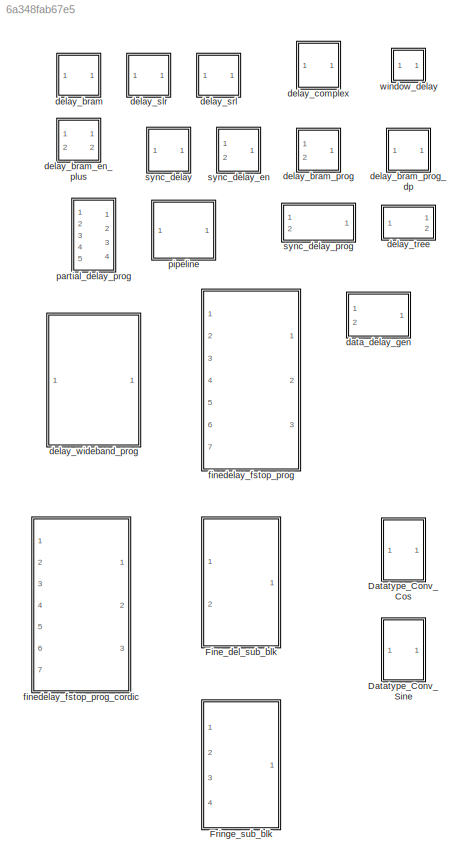
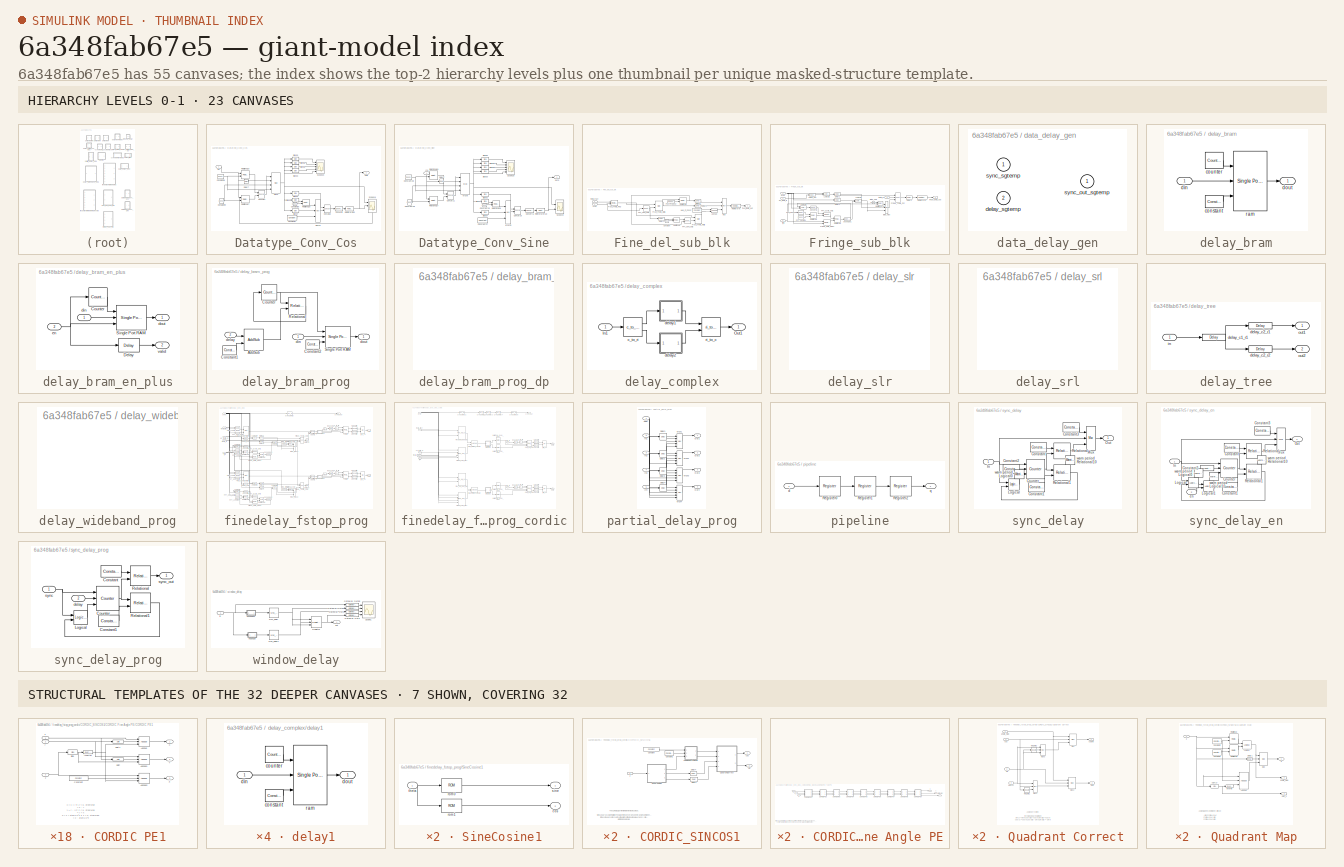
[diagram: thumbnail index - top-2 hierarchy levels (23 canvases) + 7 structural-template representatives of the remaining 32 canvases]
MODEL slx_6a348fab67e5
KIND library
CONFIG AbsTol = auto
CONFIG FixedStep = auto
CONFIG MaxStep = auto
CONFIG MinStep = auto
CONFIG RelTol = 1e-3
CONFIG SampleTimeConstraint = Unconstrained
CONFIG Solver = ode45
CONFIG SolverMode = SingleTasking
CONFIG SolverName = ode45
CONFIG StartTime = 0.0
CONFIG StopTime = 10.0
BLOCK [SubSystem] Datatype_Conv_Cos
  Ports = [1, 1]
  RequestExecContextInheritance = off
  Variant = off
BLOCK [Reference] Datatype_Conv_Cos/Concat10  REF=xbsIndex_r4/Concat
  Ports = [2, 1]
  SourceBlock = xbsIndex_r4/Concat
  SourceType = Xilinx Bus Concatenator Block
BLOCK [Reference] Datatype_Conv_Cos/Concat11  REF=xbsIndex_r4/Concat
  Ports = [2, 1]
  SourceBlock = xbsIndex_r4/Concat
  SourceType = Xilinx Bus Concatenator Block
BLOCK [Reference] Datatype_Conv_Cos/Constant26  REF=xbsIndex_r4/Constant
  Ports = [0, 1]
  SourceBlock = xbsIndex_r4/Constant
  SourceType = Xilinx Constant Block Block
BLOCK [Reference] Datatype_Conv_Cos/Constant27  REF=xbsIndex_r4/Constant
  Ports = [0, 1]
  SourceBlock = xbsIndex_r4/Constant
  SourceType = Xilinx Constant Block Block
BLOCK [Reference] Datatype_Conv_Cos/Constant28  REF=xbsIndex_r4/Constant
  Ports = [0, 1]
  SourceBlock = xbsIndex_r4/Constant
  SourceType = Xilinx Constant Block Block
BLOCK [Reference] Datatype_Conv_Cos/Constant29  REF=xbsIndex_r4/Constant
  Ports = [0, 1]
  SourceBlock = xbsIndex_r4/Constant
  SourceType = Xilinx Constant Block Block
BLOCK [Reference] Datatype_Conv_Cos/Convert6  REF=xbsIndex_r4/Convert
  Ports = [1, 1]
  SourceBlock = xbsIndex_r4/Convert
  SourceType = Xilinx Type Converter Block
BLOCK [Reference] Datatype_Conv_Cos/Delay7  REF=xbsIndex_r4/Delay
  Ports = [1, 1]
  SourceBlock = xbsIndex_r4/Delay
  SourceType = Xilinx Delay Block
BLOCK [Inport] Datatype_Conv_Cos/In1
  IconDisplay = Port number
BLOCK [Reference] Datatype_Conv_Cos/Mux10  REF=xbsIndex_r4/Mux
  Ports = [3, 1]
  SourceBlock = xbsIndex_r4/Mux
  SourceType = Xilinx Bus Multiplexer Block
BLOCK [Reference] Datatype_Conv_Cos/Mux9  REF=xbsIndex_r4/Mux
  Ports = [4, 1]
  SourceBlock = xbsIndex_r4/Mux
  SourceType = Xilinx Bus Multiplexer Block
BLOCK [Reference] Datatype_Conv_Cos/Reinterpret10  REF=xbsIndex_r4/Reinterpret
  Ports = [1, 1]
  SourceBlock = xbsIndex_r4/Reinterpret
  SourceType = Xilinx Type Reinterpreter Block
BLOCK [Reference] Datatype_Conv_Cos/Relational17  REF=xbsIndex_r4/Relational
  Ports = [2, 1]
  SourceBlock = xbsIndex_r4/Relational
  SourceType = Xilinx Arithmetic Relational Operator Block
BLOCK [Reference] Datatype_Conv_Cos/Relational18  REF=xbsIndex_r4/Relational
  Ports = [2, 1]
  SourceBlock = xbsIndex_r4/Relational
  SourceType = Xilinx Arithmetic Relational Operator Block
BLOCK [Reference] Datatype_Conv_Cos/Relational19  REF=xbsIndex_r4/Relational
  Ports = [2, 1]
  SourceBlock = xbsIndex_r4/Relational
  SourceType = Xilinx Arithmetic Relational Operator Block
BLOCK [Scope] Datatype_Conv_Cos/Scope19
  NumInputPorts = 3
  Ports = [3]
  ScopeSpecificationString = C++SS(StrPVP('Location','[6, 52, 806, 569]'),StrPVP('Open','off'),StrPVP('ZoomMode','xonly'),MxPVP('AxesTitles',24,'struct(''axes1'',''%<SignalLabel>'',''axes2'',''%<SignalLabel>'',''axes3'',''%<SignalLabel>'')'),StrPVP('YMin','-1.1~-0.2~-5'),StrPVP('YMax','1.1~1.1~5'),StrPVP('SaveName','ScopeData19'),StrPVP('DataFormat','StructureWithTime'),StrPVP('LimitDataPoints','off'),StrPVP('BlockParamSample...<+74ch>
BLOCK [Scope] Datatype_Conv_Cos/Scope20
  NumInputPorts = 5
  Ports = [5]
  ScopeSpecificationString = C++SS(StrPVP('Location','[5, 52, 805, 569]'),StrPVP('Open','off'),StrPVP('ZoomMode','yonly'),MxPVP('AxesTitles',24,'struct(''axes1'',''%<SignalLabel>'',''axes2'',''%<SignalLabel>'',''axes3'',''%<SignalLabel>'',''axes4'',''%<SignalLabel>'',''axes5'',''%<SignalLabel>'')'),StrPVP('YMin','-1.1~-0.2~-5~-5~-5'),StrPVP('YMax','1.1~1.1~5~5~5'),StrPVP('SaveName','ScopeData20'),StrPVP('DataFormat','Structur...<+142ch>
BLOCK [Reference] Datatype_Conv_Cos/Slice32  REF=xbsIndex_r4/Slice
  Ports = [1, 1]
  SourceBlock = xbsIndex_r4/Slice
  SourceType = Xilinx Bit Slice Extractor Block
BLOCK [Reference] Datatype_Conv_Cos/Slice33  REF=xbsIndex_r4/Slice
  Ports = [1, 1]
  SourceBlock = xbsIndex_r4/Slice
  SourceType = Xilinx Bit Slice Extractor Block
BLOCK [Reference] Datatype_Conv_Cos/Slice34  REF=xbsIndex_r4/Slice
  Ports = [1, 1]
  SourceBlock = xbsIndex_r4/Slice
  SourceType = Xilinx Bit Slice Extractor Block
BLOCK [Reference] Datatype_Conv_Cos/Slice35  REF=xbsIndex_r4/Slice
  Ports = [1, 1]
  SourceBlock = xbsIndex_r4/Slice
  SourceType = Xilinx Bit Slice Extractor Block
BLOCK [Reference] Datatype_Conv_Cos/Slice36  REF=xbsIndex_r4/Slice
  Ports = [1, 1]
  SourceBlock = xbsIndex_r4/Slice
  SourceType = Xilinx Bit Slice Extractor Block
BLOCK [Reference] Datatype_Conv_Cos/Slice37  REF=xbsIndex_r4/Slice
  Ports = [1, 1]
  SourceBlock = xbsIndex_r4/Slice
  SourceType = Xilinx Bit Slice Extractor Block
BLOCK [Reference] Datatype_Conv_Cos/Slice38  REF=xbsIndex_r4/Slice
  Ports = [1, 1]
  SourceBlock = xbsIndex_r4/Slice
  SourceType = Xilinx Bit Slice Extractor Block
BLOCK [Outport] Datatype_Conv_Cos/out0
  IconDisplay = Port number
BLOCK [SubSystem] Datatype_Conv_Sine
  Ports = [1, 1]
  RequestExecContextInheritance = off
  Variant = off
BLOCK [Reference] Datatype_Conv_Sine/Concat10  REF=xbsIndex_r4/Concat
  Ports = [2, 1]
  SourceBlock = xbsIndex_r4/Concat
  SourceType = Xilinx Bus Concatenator Block
BLOCK [Reference] Datatype_Conv_Sine/Concat11  REF=xbsIndex_r4/Concat
  Ports = [2, 1]
  SourceBlock = xbsIndex_r4/Concat
  SourceType = Xilinx Bus Concatenator Block
BLOCK [Reference] Datatype_Conv_Sine/Constant26  REF=xbsIndex_r4/Constant
  Ports = [0, 1]
  SourceBlock = xbsIndex_r4/Constant
  SourceType = Xilinx Constant Block Block
BLOCK [Reference] Datatype_Conv_Sine/Constant27  REF=xbsIndex_r4/Constant
  Ports = [0, 1]
  SourceBlock = xbsIndex_r4/Constant
  SourceType = Xilinx Constant Block Block
BLOCK [Reference] Datatype_Conv_Sine/Constant28  REF=xbsIndex_r4/Constant
  Ports = [0, 1]
  SourceBlock = xbsIndex_r4/Constant
  SourceType = Xilinx Constant Block Block
BLOCK [Reference] Datatype_Conv_Sine/Constant29  REF=xbsIndex_r4/Constant
  Ports = [0, 1]
  SourceBlock = xbsIndex_r4/Constant
  SourceType = Xilinx Constant Block Block
BLOCK [Reference] Datatype_Conv_Sine/Convert6  REF=xbsIndex_r4/Convert
  Ports = [1, 1]
  SourceBlock = xbsIndex_r4/Convert
  SourceType = Xilinx Type Converter Block
BLOCK [Reference] Datatype_Conv_Sine/Delay7  REF=xbsIndex_r4/Delay
  Ports = [1, 1]
  SourceBlock = xbsIndex_r4/Delay
  SourceType = Xilinx Delay Block
BLOCK [Inport] Datatype_Conv_Sine/In1
  IconDisplay = Port number
BLOCK [Reference] Datatype_Conv_Sine/Mux10  REF=xbsIndex_r4/Mux
  Ports = [3, 1]
  SourceBlock = xbsIndex_r4/Mux
  SourceType = Xilinx Bus Multiplexer Block
BLOCK [Reference] Datatype_Conv_Sine/Mux9  REF=xbsIndex_r4/Mux
  Ports = [4, 1]
  SourceBlock = xbsIndex_r4/Mux
  SourceType = Xilinx Bus Multiplexer Block
BLOCK [Reference] Datatype_Conv_Sine/Reinterpret10  REF=xbsIndex_r4/Reinterpret
  Ports = [1, 1]
  SourceBlock = xbsIndex_r4/Reinterpret
  SourceType = Xilinx Type Reinterpreter Block
BLOCK [Reference] Datatype_Conv_Sine/Relational17  REF=xbsIndex_r4/Relational
  Ports = [2, 1]
  SourceBlock = xbsIndex_r4/Relational
  SourceType = Xilinx Arithmetic Relational Operator Block
BLOCK [Reference] Datatype_Conv_Sine/Relational18  REF=xbsIndex_r4/Relational
  Ports = [2, 1]
  SourceBlock = xbsIndex_r4/Relational
  SourceType = Xilinx Arithmetic Relational Operator Block
BLOCK [Reference] Datatype_Conv_Sine/Relational19  REF=xbsIndex_r4/Relational
  Ports = [2, 1]
  SourceBlock = xbsIndex_r4/Relational
  SourceType = Xilinx Arithmetic Relational Operator Block
BLOCK [Scope] Datatype_Conv_Sine/Scope19
  NumInputPorts = 2
  Ports = [2]
  ScopeSpecificationString = C++SS(StrPVP('Location','[5, 52, 805, 569]'),StrPVP('Open','off'),StrPVP('ZoomMode','yonly'),MxPVP('AxesTitles',24,'struct(''axes1'',''%<SignalLabel>'',''axes2'',''%<SignalLabel>'')'),StrPVP('YMin','-1.1~-0.2'),StrPVP('YMax','1.1~1.1'),StrPVP('SaveName','ScopeData19'),StrPVP('DataFormat','StructureWithTime'),StrPVP('LimitDataPoints','off'),StrPVP('BlockParamSampleTime','0'),StrPVP('Decimation','1'...<+40ch>
BLOCK [Scope] Datatype_Conv_Sine/Scope20
  NumInputPorts = 5
  Ports = [5]
  ScopeSpecificationString = C++SS(StrPVP('Location','[5, 52, 805, 569]'),StrPVP('Open','off'),StrPVP('ZoomMode','yonly'),MxPVP('AxesTitles',24,'struct(''axes1'',''%<SignalLabel>'',''axes2'',''%<SignalLabel>'',''axes3'',''%<SignalLabel>'',''axes4'',''%<SignalLabel>'',''axes5'',''%<SignalLabel>'')'),StrPVP('YMin','-1.1~-0.2~-5~-5~-5'),StrPVP('YMax','1.1~1.1~5~5~5'),StrPVP('SaveName','ScopeData20'),StrPVP('DataFormat','Structur...<+142ch>
BLOCK [Reference] Datatype_Conv_Sine/Slice32  REF=xbsIndex_r4/Slice
  Ports = [1, 1]
  SourceBlock = xbsIndex_r4/Slice
  SourceType = Xilinx Bit Slice Extractor Block
BLOCK [Reference] Datatype_Conv_Sine/Slice33  REF=xbsIndex_r4/Slice
  Ports = [1, 1]
  SourceBlock = xbsIndex_r4/Slice
  SourceType = Xilinx Bit Slice Extractor Block
BLOCK [Reference] Datatype_Conv_Sine/Slice34  REF=xbsIndex_r4/Slice
  Ports = [1, 1]
  SourceBlock = xbsIndex_r4/Slice
  SourceType = Xilinx Bit Slice Extractor Block
BLOCK [Reference] Datatype_Conv_Sine/Slice35  REF=xbsIndex_r4/Slice
  Ports = [1, 1]
  SourceBlock = xbsIndex_r4/Slice
  SourceType = Xilinx Bit Slice Extractor Block
BLOCK [Reference] Datatype_Conv_Sine/Slice36  REF=xbsIndex_r4/Slice
  Ports = [1, 1]
  SourceBlock = xbsIndex_r4/Slice
  SourceType = Xilinx Bit Slice Extractor Block
BLOCK [Reference] Datatype_Conv_Sine/Slice37  REF=xbsIndex_r4/Slice
  Ports = [1, 1]
  SourceBlock = xbsIndex_r4/Slice
  SourceType = Xilinx Bit Slice Extractor Block
BLOCK [Reference] Datatype_Conv_Sine/Slice38  REF=xbsIndex_r4/Slice
  Ports = [1, 1]
  SourceBlock = xbsIndex_r4/Slice
  SourceType = Xilinx Bit Slice Extractor Block
BLOCK [Outport] Datatype_Conv_Sine/out0
  IconDisplay = Port number
BLOCK [SubSystem] Fine_del_sub_blk
  Ports = [2, 1]
  RequestExecContextInheritance = off
  Variant = off
BLOCK [Reference] Fine_del_sub_blk/AddSub  REF=xbsIndex_r4/AddSub
  Ports = [2, 1]
  SourceBlock = xbsIndex_r4/AddSub
  SourceType = Xilinx Adder/Subtracter Block
BLOCK [Reference] Fine_del_sub_blk/Constant  REF=xbsIndex_r4/Constant
  Ports = [0, 1]
  SourceBlock = xbsIndex_r4/Constant
  SourceType = Xilinx Constant Block Block
BLOCK [Reference] Fine_del_sub_blk/Delay1  REF=xbsIndex_r4/Delay
  Ports = [1, 1]
  SourceBlock = xbsIndex_r4/Delay
  SourceType = Xilinx Delay Block
BLOCK [Reference] Fine_del_sub_blk/Delay2  REF=xbsIndex_r4/Delay
  Ports = [1, 1]
  SourceBlock = xbsIndex_r4/Delay
  SourceType = Xilinx Delay Block
BLOCK [Reference] Fine_del_sub_blk/Delay3  REF=xbsIndex_r4/Delay
  Ports = [1, 1]
  SourceBlock = xbsIndex_r4/Delay
  SourceType = Xilinx Delay Block
BLOCK [Reference] Fine_del_sub_blk/FFT_Chnl_Cnt1  REF=xbsIndex_r4/Counter
  Ports = [1, 1]
  SourceBlock = xbsIndex_r4/Counter
  SourceType = Xilinx Counter Block
BLOCK [Reference] Fine_del_sub_blk/FFT_Chnl_Cnt2  REF=xbsIndex_r4/Counter
  Ports = [2, 1]
  SourceBlock = xbsIndex_r4/Counter
  SourceType = Xilinx Counter Block
BLOCK [Reference] Fine_del_sub_blk/Fract_Theta_Mult1  REF=xbsIndex_r4/Mult
  Ports = [2, 1]
  SourceBlock = xbsIndex_r4/Mult
  SourceType = Xilinx Multiplier Block
BLOCK [Reference] Fine_del_sub_blk/Fract_Theta_Mult2  REF=xbsIndex_r4/Mult
  Ports = [2, 1]
  SourceBlock = xbsIndex_r4/Mult
  SourceType = Xilinx Multiplier Block
BLOCK [Reference] Fine_del_sub_blk/Fract_Theta_Reg  REF=xbsIndex_r4/Register
  Ports = [2, 1]
  SourceBlock = xbsIndex_r4/Register
  SourceType = Xilinx Register Block
BLOCK [Reference] Fine_del_sub_blk/Mux  REF=xbsIndex_r4/Mux
  Ports = [3, 1]
  SourceBlock = xbsIndex_r4/Mux
  SourceType = Xilinx Bus Multiplexer Block
BLOCK [Reference] Fine_del_sub_blk/Neg_Pi_Const  REF=xbsIndex_r4/Constant
  Ports = [0, 1]
  SourceBlock = xbsIndex_r4/Constant
  SourceType = Xilinx Constant Block Block
BLOCK [Reference] Fine_del_sub_blk/Pos_Pi_Const  REF=xbsIndex_r4/Constant
  Ports = [0, 1]
  SourceBlock = xbsIndex_r4/Constant
  SourceType = Xilinx Constant Block Block
BLOCK [Reference] Fine_del_sub_blk/Reinterpret  REF=xbsIndex_r4/Reinterpret
  Ports = [1, 1]
  SourceBlock = xbsIndex_r4/Reinterpret
  SourceType = Xilinx Type Reinterpreter Block
BLOCK [Reference] Fine_del_sub_blk/Relational1  REF=xbsIndex_r4/Relational
  Ports = [2, 1]
  SourceBlock = xbsIndex_r4/Relational
  SourceType = Xilinx Arithmetic Relational Operator Block
BLOCK [Reference] Fine_del_sub_blk/Relational2  REF=xbsIndex_r4/Relational
  Ports = [2, 1]
  SourceBlock = xbsIndex_r4/Relational
  SourceType = Xilinx Arithmetic Relational Operator Block
BLOCK [Outport] Fine_del_sub_blk/fract_theta_out
  IconDisplay = Port number
BLOCK [Inport] Fine_del_sub_blk/sync
  IconDisplay = Port number
  Port = 2
BLOCK [Inport] Fine_del_sub_blk/theta_fract
  IconDisplay = Port number
BLOCK [SubSystem] Fringe_sub_blk
  Ports = [4, 1]
  RequestExecContextInheritance = off
  Variant = off
BLOCK [Reference] Fringe_sub_blk/Convert1  REF=xbsIndex_r4/Convert
  Ports = [1, 1]
  SourceBlock = xbsIndex_r4/Convert
  SourceType = Xilinx Type Converter Block
BLOCK [Reference] Fringe_sub_blk/Delay1  REF=xbsIndex_r4/Delay
  Ports = [1, 1]
  SourceBlock = xbsIndex_r4/Delay
  SourceType = Xilinx Delay Block
BLOCK [Reference] Fringe_sub_blk/Delay2  REF=xbsIndex_r4/Delay
  Ports = [1, 1]
  SourceBlock = xbsIndex_r4/Delay
  SourceType = Xilinx Delay Block
BLOCK [Reference] Fringe_sub_blk/Delay3  REF=xbsIndex_r4/Delay
  Ports = [1, 1]
  SourceBlock = xbsIndex_r4/Delay
  SourceType = Xilinx Delay Block
BLOCK [Reference] Fringe_sub_blk/FFT_Chnl_Cnt1  REF=xbsIndex_r4/Counter
  Ports = [1, 1]
  SourceBlock = xbsIndex_r4/Counter
  SourceType = Xilinx Counter Block
BLOCK [Reference] Fringe_sub_blk/FFT_Cycle_Cnt1  REF=xbsIndex_r4/Counter
  Ports = [2, 1]
  SourceBlock = xbsIndex_r4/Counter
  SourceType = Xilinx Counter Block
BLOCK [Reference] Fringe_sub_blk/FFT_Length1  REF=xbsIndex_r4/Constant
  Ports = [0, 1]
  SourceBlock = xbsIndex_r4/Constant
  SourceType = Xilinx Constant Block Block
BLOCK [Reference] Fringe_sub_blk/Fringe_Rate_Reg1  REF=xbsIndex_r4/Register
  Ports = [2, 1]
  SourceBlock = xbsIndex_r4/Register
  SourceType = Xilinx Register Block
BLOCK [Reference] Fringe_sub_blk/Fringe_Theta_Cnt  REF=xbsIndex_r4/Counter
  Ports = [3, 1]
  SourceBlock = xbsIndex_r4/Counter
  SourceType = Xilinx Counter Block
BLOCK [Reference] Fringe_sub_blk/Logical1  REF=xbsIndex_r4/Logical
  Ports = [2, 1]
  SourceBlock = xbsIndex_r4/Logical
  SourceType = Xilinx Logical Block Block
BLOCK [Reference] Fringe_sub_blk/Logical2  REF=xbsIndex_r4/Logical
  Ports = [2, 1]
  SourceBlock = xbsIndex_r4/Logical
  SourceType = Xilinx Logical Block Block
BLOCK [Reference] Fringe_sub_blk/Logical3  REF=xbsIndex_r4/Logical
  Ports = [2, 1]
  SourceBlock = xbsIndex_r4/Logical
  SourceType = Xilinx Logical Block Block
BLOCK [Reference] Fringe_sub_blk/Reinterpret  REF=xbsIndex_r4/Reinterpret
  Ports = [1, 1]
  SourceBlock = xbsIndex_r4/Reinterpret
  SourceType = Xilinx Type Reinterpreter Block
BLOCK [Reference] Fringe_sub_blk/Relational1  REF=xbsIndex_r4/Relational
  Ports = [2, 1]
  SourceBlock = xbsIndex_r4/Relational
  SourceType = Xilinx Arithmetic Relational Operator Block
BLOCK [Reference] Fringe_sub_blk/Relational2  REF=xbsIndex_r4/Relational
  Ports = [2, 1]
  SourceBlock = xbsIndex_r4/Relational
  SourceType = Xilinx Arithmetic Relational Operator Block
BLOCK [Reference] Fringe_sub_blk/Relational_sel  REF=xbsIndex_r4/Relational
  Ports = [2, 1]
  SourceBlock = xbsIndex_r4/Relational
  SourceType = Xilinx Arithmetic Relational Operator Block
BLOCK [Inport] Fringe_sub_blk/en_theta_fs
  IconDisplay = Port number
  Port = 3
BLOCK [Inport] Fringe_sub_blk/fft_fs
  IconDisplay = Port number
  Port = 4
BLOCK [Outport] Fringe_sub_blk/fringe_theta_out
  IconDisplay = Port number
BLOCK [Reference] Fringe_sub_blk/fstop_mux  REF=xbsIndex_r4/Mux
  Ports = [3, 1]
  SourceBlock = xbsIndex_r4/Mux
  SourceType = Xilinx Bus Multiplexer Block
BLOCK [Reference] Fringe_sub_blk/fstop_sel1  REF=xbsIndex_r4/Constant
  Ports = [0, 1]
  SourceBlock = xbsIndex_r4/Constant
  SourceType = Xilinx Constant Block Block
BLOCK [Reference] Fringe_sub_blk/posedge1  REF=casper_library_misc/edge_detect  (lib defined in mdl_357510c33b49, mdl_57b5f564ae26, +4 more)
  AttributesFormatString = rising edges\nactive high
  Ports = [1, 1]
  SourceBlock = casper_library_misc/edge_detect
  SourceType = edge_detect
  UserDataPersistent = on
BLOCK [Reference] Fringe_sub_blk/pulse_ext  REF=casper_library_misc/pulse_ext  (lib defined in mdl_357510c33b49, mdl_57b5f564ae26, +4 more)
  Ports = [1, 1]
  SourceBlock = casper_library_misc/pulse_ext
  SourceType = pulse_ext
BLOCK [Inport] Fringe_sub_blk/sync
  IconDisplay = Port number
BLOCK [Inport] Fringe_sub_blk/theta_fs
  IconDisplay = Port number
  Port = 2
BLOCK [SubSystem] data_delay_gen
  AttributesFormatString = Delay_7, %<delaytype>
  Ports = [2, 1]
  RequestExecContextInheritance = off
  Variant = off
BLOCK [Inport] data_delay_gen/delay_sgtemp
  IconDisplay = Port number
  Port = 2
BLOCK [Outport] data_delay_gen/sync_out_sgtemp
  IconDisplay = Port number
BLOCK [Inport] data_delay_gen/sync_sgtemp
  IconDisplay = Port number
BLOCK [SubSystem] delay_bram
  Ports = [1, 1]
  RequestExecContextInheritance = off
  UserDataPersistent = on
  Variant = off
BLOCK [Reference] delay_bram/constant  REF=xbsIndex_r4/Constant
  Ports = [0, 1]
  SourceBlock = xbsIndex_r4/Constant
  SourceType = Xilinx Constant Block Block
BLOCK [Reference] delay_bram/counter  REF=xbsIndex_r4/Counter
  Ports = [0, 1]
  SourceBlock = xbsIndex_r4/Counter
  SourceType = Xilinx Counter Block
BLOCK [Inport] delay_bram/din
  IconDisplay = Port number
BLOCK [Outport] delay_bram/dout
  IconDisplay = Port number
BLOCK [Reference] delay_bram/ram  REF=xbsIndex_r4/Single Port RAM
  Ports = [3, 1]
  SourceBlock = xbsIndex_r4/Single Port RAM
  SourceType = Xilinx Single Port Random Access Memory Block
BLOCK [SubSystem] delay_bram_en_plus
  Ports = [2, 2]
  RequestExecContextInheritance = off
  Variant = off
BLOCK [Reference] delay_bram_en_plus/Counter  REF=xbsIndex_r4/Counter
  Ports = [1, 1]
  SourceBlock = xbsIndex_r4/Counter
  SourceType = Xilinx Counter Block
BLOCK [Reference] delay_bram_en_plus/Delay  REF=xbsIndex_r4/Delay
  Ports = [1, 1]
  SourceBlock = xbsIndex_r4/Delay
  SourceType = Xilinx Delay Block
BLOCK [Reference] delay_bram_en_plus/Single Port RAM  REF=xbsIndex_r4/Single Port RAM
  Ports = [3, 1]
  SourceBlock = xbsIndex_r4/Single Port RAM
  SourceType = Xilinx Single Port Random Access Memory Block
BLOCK [Inport] delay_bram_en_plus/din
  IconDisplay = Port number
BLOCK [Outport] delay_bram_en_plus/dout
  IconDisplay = Port number
BLOCK [Inport] delay_bram_en_plus/en
  IconDisplay = Port number
  Port = 2
BLOCK [Outport] delay_bram_en_plus/valid
  IconDisplay = Port number
  Port = 2
BLOCK [SubSystem] delay_bram_prog
  Ports = [2, 1]
  RequestExecContextInheritance = off
  Variant = off
BLOCK [Reference] delay_bram_prog/AddSub  REF=xbsIndex_r4/AddSub
  Ports = [2, 1]
  SourceBlock = xbsIndex_r4/AddSub
  SourceType = Xilinx Adder/Subtracter Block
BLOCK [Reference] delay_bram_prog/Constant1  REF=xbsIndex_r4/Constant
  Ports = [0, 1]
  SourceBlock = xbsIndex_r4/Constant
  SourceType = Xilinx Constant Block Block
BLOCK [Reference] delay_bram_prog/Constant2  REF=xbsIndex_r4/Constant
  Ports = [0, 1]
  SourceBlock = xbsIndex_r4/Constant
  SourceType = Xilinx Constant Block Block
BLOCK [Reference] delay_bram_prog/Counter  REF=xbsIndex_r4/Counter
  Ports = [1, 1]
  SourceBlock = xbsIndex_r4/Counter
  SourceType = Xilinx Counter Block
BLOCK [Reference] delay_bram_prog/Relational  REF=xbsIndex_r4/Relational
  Ports = [2, 1]
  SourceBlock = xbsIndex_r4/Relational
  SourceType = Xilinx Arithmetic Relational Operator Block
BLOCK [Reference] delay_bram_prog/Single Port RAM  REF=xbsIndex_r4/Single Port RAM
  Ports = [3, 1]
  SourceBlock = xbsIndex_r4/Single Port RAM
  SourceType = Xilinx Single Port Random Access Memory Block
BLOCK [Inport] delay_bram_prog/delay
  IconDisplay = Port number
  Port = 2
BLOCK [Inport] delay_bram_prog/din
  IconDisplay = Port number
BLOCK [Outport] delay_bram_prog/dout
  IconDisplay = Port number
BLOCK [SubSystem] delay_bram_prog_dp
  Ports = []
  RequestExecContextInheritance = off
  UserDataPersistent = on
  Variant = off
BLOCK [SubSystem] delay_complex
  AttributesFormatString = depth = 6\ndelay_bram
  Ports = [1, 1]
  RequestExecContextInheritance = off
  UserDataPersistent = on
  Variant = off
BLOCK [Inport] delay_complex/In1
  IconDisplay = Port number
BLOCK [Outport] delay_complex/Out1
  IconDisplay = Port number
BLOCK [Reference] delay_complex/c_to_ri  REF=casper_library_misc/c_to_ri  (lib defined in mdl_357510c33b49, mdl_57b5f564ae26, +4 more)
  AttributesFormatString = 18_17 r/i
  Ports = [1, 2]
  SourceBlock = casper_library_misc/c_to_ri
  SourceType = c_to_ri
  UserDataPersistent = on
BLOCK [SubSystem] delay_complex/delay1
  AncestorBlock = casper_library_delays/delay_bram
  Ports = [1, 1]
  RequestExecContextInheritance = off
  UserDataPersistent = on
  Variant = off
BLOCK [Reference] delay_complex/delay1/constant  REF=xbsIndex_r4/Constant
  Ports = [0, 1]
  SourceBlock = xbsIndex_r4/Constant
  SourceType = Xilinx Constant Block Block
BLOCK [Reference] delay_complex/delay1/counter  REF=xbsIndex_r4/Counter
  Ports = [0, 1]
  SourceBlock = xbsIndex_r4/Counter
  SourceType = Xilinx Counter Block
BLOCK [Inport] delay_complex/delay1/din
  IconDisplay = Port number
BLOCK [Outport] delay_complex/delay1/dout
  IconDisplay = Port number
BLOCK [Reference] delay_complex/delay1/ram  REF=xbsIndex_r4/Single Port RAM
  Ports = [3, 1]
  SourceBlock = xbsIndex_r4/Single Port RAM
  SourceType = Xilinx Single Port Random Access Memory Block
BLOCK [SubSystem] delay_complex/delay2
  AncestorBlock = casper_library_delays/delay_bram
  Ports = [1, 1]
  RequestExecContextInheritance = off
  UserDataPersistent = on
  Variant = off
BLOCK [Reference] delay_complex/delay2/constant  REF=xbsIndex_r4/Constant
  Ports = [0, 1]
  SourceBlock = xbsIndex_r4/Constant
  SourceType = Xilinx Constant Block Block
BLOCK [Reference] delay_complex/delay2/counter  REF=xbsIndex_r4/Counter
  Ports = [0, 1]
  SourceBlock = xbsIndex_r4/Counter
  SourceType = Xilinx Counter Block
BLOCK [Inport] delay_complex/delay2/din
  IconDisplay = Port number
BLOCK [Outport] delay_complex/delay2/dout
  IconDisplay = Port number
BLOCK [Reference] delay_complex/delay2/ram  REF=xbsIndex_r4/Single Port RAM
  Ports = [3, 1]
  SourceBlock = xbsIndex_r4/Single Port RAM
  SourceType = Xilinx Single Port Random Access Memory Block
BLOCK [Reference] delay_complex/ri_to_c  REF=casper_library_misc/ri_to_c  (lib defined in mdl_357510c33b49, mdl_57b5f564ae26, +4 more)
  Ports = [2, 1]
  SourceBlock = casper_library_misc/ri_to_c
  SourceType = ri_to_c
  UserDataPersistent = on
BLOCK [SubSystem] delay_slr
  Ports = []
  RequestExecContextInheritance = off
  UserDataPersistent = on
  Variant = off
BLOCK [SubSystem] delay_srl
  Ports = []
  RequestExecContextInheritance = off
  UserDataPersistent = on
  Variant = off
BLOCK [SubSystem] delay_tree
  AttributesFormatString = delay=2
  Ports = [1, 2]
  RequestExecContextInheritance = off
  UserDataPersistent = on
  Variant = off
BLOCK [Reference] delay_tree/delay_c1_r1  REF=xbsIndex_r4/Delay
  Ports = [1, 1]
  SourceBlock = xbsIndex_r4/Delay
  SourceType = Xilinx Delay Block
BLOCK [Reference] delay_tree/delay_c2_r1  REF=xbsIndex_r4/Delay
  Ports = [1, 1]
  SourceBlock = xbsIndex_r4/Delay
  SourceType = Xilinx Delay Block
BLOCK [Reference] delay_tree/delay_c2_r2  REF=xbsIndex_r4/Delay
  Ports = [1, 1]
  SourceBlock = xbsIndex_r4/Delay
  SourceType = Xilinx Delay Block
BLOCK [Inport] delay_tree/in
  IconDisplay = Port number
BLOCK [Outport] delay_tree/out1
  IconDisplay = Port number
BLOCK [Outport] delay_tree/out2
  IconDisplay = Port number
  Port = 2
BLOCK [SubSystem] delay_wideband_prog
  Ports = []
  RequestExecContextInheritance = off
  UserDataPersistent = on
  Variant = off
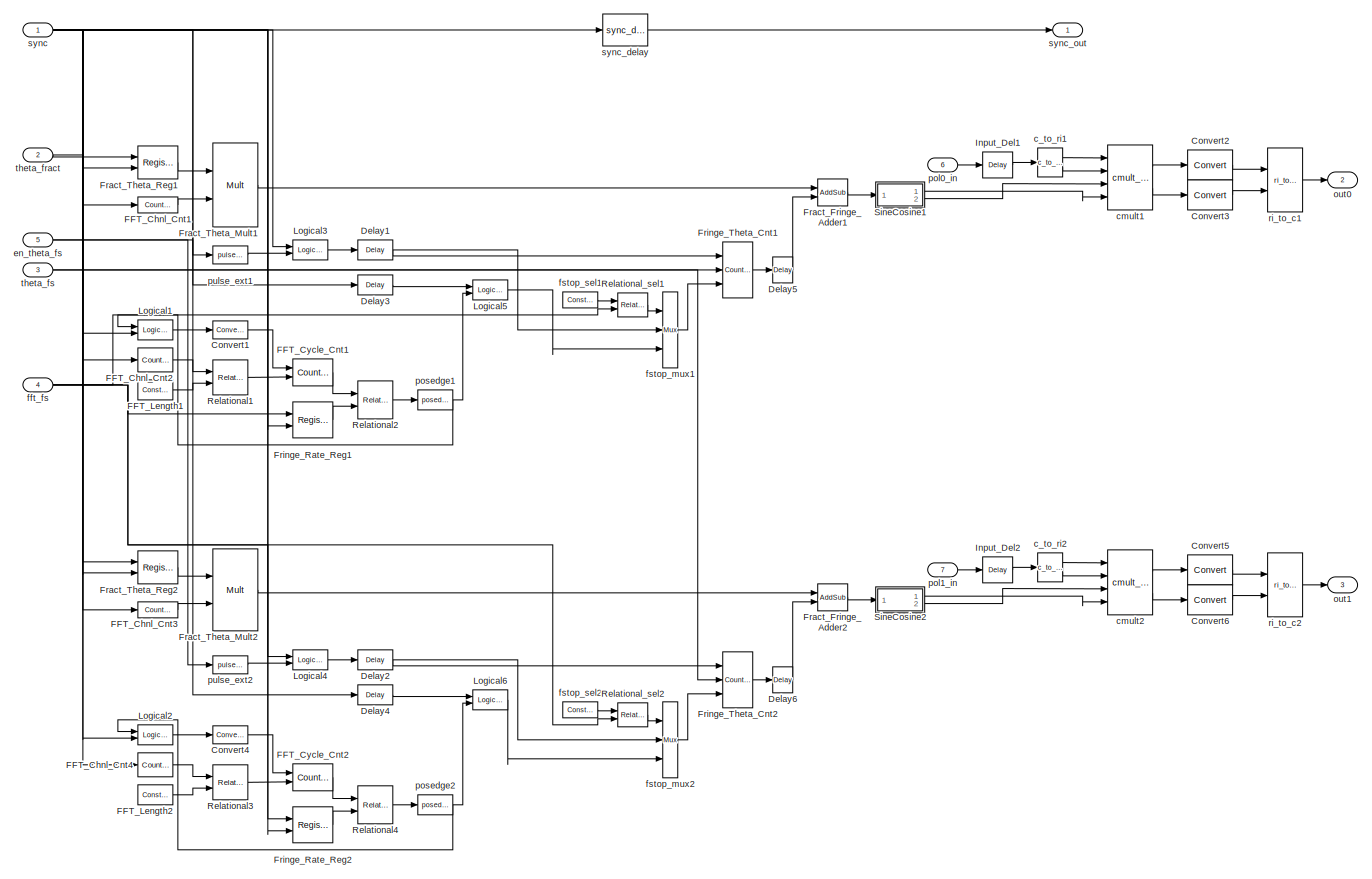
[diagram: finedelay_fstop_prog - part 1/1, most of the canvas]
BLOCK [SubSystem] finedelay_fstop_prog
  Ports = [7, 3]
  RequestExecContextInheritance = off
  UserDataPersistent = on
  Variant = off
BLOCK [Reference] finedelay_fstop_prog/Convert1  REF=xbsIndex_r4/Convert
  Ports = [1, 1]
  SourceBlock = xbsIndex_r4/Convert
  SourceType = Xilinx Type Converter Block
BLOCK [Reference] finedelay_fstop_prog/Convert2  REF=xbsIndex_r4/Convert
  Ports = [1, 1]
  SourceBlock = xbsIndex_r4/Convert
  SourceType = Xilinx Type Converter Block
BLOCK [Reference] finedelay_fstop_prog/Convert3  REF=xbsIndex_r4/Convert
  Ports = [1, 1]
  SourceBlock = xbsIndex_r4/Convert
  SourceType = Xilinx Type Converter Block
BLOCK [Reference] finedelay_fstop_prog/Convert4  REF=xbsIndex_r4/Convert
  Ports = [1, 1]
  SourceBlock = xbsIndex_r4/Convert
  SourceType = Xilinx Type Converter Block
BLOCK [Reference] finedelay_fstop_prog/Convert5  REF=xbsIndex_r4/Convert
  Ports = [1, 1]
  SourceBlock = xbsIndex_r4/Convert
  SourceType = Xilinx Type Converter Block
BLOCK [Reference] finedelay_fstop_prog/Convert6  REF=xbsIndex_r4/Convert
  Ports = [1, 1]
  SourceBlock = xbsIndex_r4/Convert
  SourceType = Xilinx Type Converter Block
BLOCK [Reference] finedelay_fstop_prog/Delay1  REF=xbsIndex_r4/Delay
  Ports = [1, 1]
  SourceBlock = xbsIndex_r4/Delay
  SourceType = Xilinx Delay Block
BLOCK [Reference] finedelay_fstop_prog/Delay2  REF=xbsIndex_r4/Delay
  Ports = [1, 1]
  SourceBlock = xbsIndex_r4/Delay
  SourceType = Xilinx Delay Block
BLOCK [Reference] finedelay_fstop_prog/Delay3  REF=xbsIndex_r4/Delay
  Ports = [1, 1]
  SourceBlock = xbsIndex_r4/Delay
  SourceType = Xilinx Delay Block
BLOCK [Reference] finedelay_fstop_prog/Delay4  REF=xbsIndex_r4/Delay
  Ports = [1, 1]
  SourceBlock = xbsIndex_r4/Delay
  SourceType = Xilinx Delay Block
BLOCK [Reference] finedelay_fstop_prog/Delay5  REF=xbsIndex_r4/Delay
  Ports = [1, 1]
  SourceBlock = xbsIndex_r4/Delay
  SourceType = Xilinx Delay Block
BLOCK [Reference] finedelay_fstop_prog/Delay6  REF=xbsIndex_r4/Delay
  Ports = [1, 1]
  SourceBlock = xbsIndex_r4/Delay
  SourceType = Xilinx Delay Block
BLOCK [Reference] finedelay_fstop_prog/FFT_Chnl_Cnt1  REF=xbsIndex_r4/Counter
  Ports = [1, 1]
  SourceBlock = xbsIndex_r4/Counter
  SourceType = Xilinx Counter Block
BLOCK [Reference] finedelay_fstop_prog/FFT_Chnl_Cnt2  REF=xbsIndex_r4/Counter
  Ports = [1, 1]
  SourceBlock = xbsIndex_r4/Counter
  SourceType = Xilinx Counter Block
BLOCK [Reference] finedelay_fstop_prog/FFT_Chnl_Cnt3  REF=xbsIndex_r4/Counter
  Ports = [1, 1]
  SourceBlock = xbsIndex_r4/Counter
  SourceType = Xilinx Counter Block
BLOCK [Reference] finedelay_fstop_prog/FFT_Chnl_Cnt4  REF=xbsIndex_r4/Counter
  Ports = [1, 1]
  SourceBlock = xbsIndex_r4/Counter
  SourceType = Xilinx Counter Block
BLOCK [Reference] finedelay_fstop_prog/FFT_Cycle_Cnt1  REF=xbsIndex_r4/Counter
  Ports = [2, 1]
  SourceBlock = xbsIndex_r4/Counter
  SourceType = Xilinx Counter Block
BLOCK [Reference] finedelay_fstop_prog/FFT_Cycle_Cnt2  REF=xbsIndex_r4/Counter
  Ports = [2, 1]
  SourceBlock = xbsIndex_r4/Counter
  SourceType = Xilinx Counter Block
BLOCK [Reference] finedelay_fstop_prog/FFT_Length1  REF=xbsIndex_r4/Constant
  Ports = [0, 1]
  SourceBlock = xbsIndex_r4/Constant
  SourceType = Xilinx Constant Block Block
BLOCK [Reference] finedelay_fstop_prog/FFT_Length2  REF=xbsIndex_r4/Constant
  Ports = [0, 1]
  SourceBlock = xbsIndex_r4/Constant
  SourceType = Xilinx Constant Block Block
BLOCK [Reference] finedelay_fstop_prog/Fract_Fringe_Adder1  REF=xbsIndex_r4/AddSub
  Ports = [2, 1]
  SourceBlock = xbsIndex_r4/AddSub
  SourceType = Xilinx Adder/Subtracter Block
BLOCK [Reference] finedelay_fstop_prog/Fract_Fringe_Adder2  REF=xbsIndex_r4/AddSub
  Ports = [2, 1]
  SourceBlock = xbsIndex_r4/AddSub
  SourceType = Xilinx Adder/Subtracter Block
BLOCK [Reference] finedelay_fstop_prog/Fract_Theta_Mult1  REF=xbsIndex_r4/Mult
  Ports = [2, 1]
  SourceBlock = xbsIndex_r4/Mult
  SourceType = Xilinx Multiplier Block
BLOCK [Reference] finedelay_fstop_prog/Fract_Theta_Mult2  REF=xbsIndex_r4/Mult
  Ports = [2, 1]
  SourceBlock = xbsIndex_r4/Mult
  SourceType = Xilinx Multiplier Block
BLOCK [Reference] finedelay_fstop_prog/Fract_Theta_Reg1  REF=xbsIndex_r4/Register
  Ports = [2, 1]
  SourceBlock = xbsIndex_r4/Register
  SourceType = Xilinx Register Block
BLOCK [Reference] finedelay_fstop_prog/Fract_Theta_Reg2  REF=xbsIndex_r4/Register
  Ports = [2, 1]
  SourceBlock = xbsIndex_r4/Register
  SourceType = Xilinx Register Block
BLOCK [Reference] finedelay_fstop_prog/Fringe_Rate_Reg1  REF=xbsIndex_r4/Register
  Ports = [2, 1]
  SourceBlock = xbsIndex_r4/Register
  SourceType = Xilinx Register Block
BLOCK [Reference] finedelay_fstop_prog/Fringe_Rate_Reg2  REF=xbsIndex_r4/Register
  Ports = [2, 1]
  SourceBlock = xbsIndex_r4/Register
  SourceType = Xilinx Register Block
BLOCK [Reference] finedelay_fstop_prog/Fringe_Theta_Cnt1  REF=xbsIndex_r4/Counter
  Ports = [3, 1]
  SourceBlock = xbsIndex_r4/Counter
  SourceType = Xilinx Counter Block
BLOCK [Reference] finedelay_fstop_prog/Fringe_Theta_Cnt2  REF=xbsIndex_r4/Counter
  Ports = [3, 1]
  SourceBlock = xbsIndex_r4/Counter
  SourceType = Xilinx Counter Block
BLOCK [Reference] finedelay_fstop_prog/Input_Del1  REF=xbsIndex_r4/Delay
  Ports = [1, 1]
  SourceBlock = xbsIndex_r4/Delay
  SourceType = Xilinx Delay Block
BLOCK [Reference] finedelay_fstop_prog/Input_Del2  REF=xbsIndex_r4/Delay
  Ports = [1, 1]
  SourceBlock = xbsIndex_r4/Delay
  SourceType = Xilinx Delay Block
BLOCK [Reference] finedelay_fstop_prog/Logical1  REF=xbsIndex_r4/Logical
  Ports = [2, 1]
  SourceBlock = xbsIndex_r4/Logical
  SourceType = Xilinx Logical Block Block
BLOCK [Reference] finedelay_fstop_prog/Logical2  REF=xbsIndex_r4/Logical
  Ports = [2, 1]
  SourceBlock = xbsIndex_r4/Logical
  SourceType = Xilinx Logical Block Block
BLOCK [Reference] finedelay_fstop_prog/Logical3  REF=xbsIndex_r4/Logical
  Ports = [2, 1]
  SourceBlock = xbsIndex_r4/Logical
  SourceType = Xilinx Logical Block Block
BLOCK [Reference] finedelay_fstop_prog/Logical4  REF=xbsIndex_r4/Logical
  Ports = [2, 1]
  SourceBlock = xbsIndex_r4/Logical
  SourceType = Xilinx Logical Block Block
BLOCK [Reference] finedelay_fstop_prog/Logical5  REF=xbsIndex_r4/Logical
  Ports = [2, 1]
  SourceBlock = xbsIndex_r4/Logical
  SourceType = Xilinx Logical Block Block
BLOCK [Reference] finedelay_fstop_prog/Logical6  REF=xbsIndex_r4/Logical
  Ports = [2, 1]
  SourceBlock = xbsIndex_r4/Logical
  SourceType = Xilinx Logical Block Block
BLOCK [Reference] finedelay_fstop_prog/Relational1  REF=xbsIndex_r4/Relational
  Ports = [2, 1]
  SourceBlock = xbsIndex_r4/Relational
  SourceType = Xilinx Arithmetic Relational Operator Block
BLOCK [Reference] finedelay_fstop_prog/Relational2  REF=xbsIndex_r4/Relational
  Ports = [2, 1]
  SourceBlock = xbsIndex_r4/Relational
  SourceType = Xilinx Arithmetic Relational Operator Block
BLOCK [Reference] finedelay_fstop_prog/Relational3  REF=xbsIndex_r4/Relational
  Ports = [2, 1]
  SourceBlock = xbsIndex_r4/Relational
  SourceType = Xilinx Arithmetic Relational Operator Block
BLOCK [Reference] finedelay_fstop_prog/Relational4  REF=xbsIndex_r4/Relational
  Ports = [2, 1]
  SourceBlock = xbsIndex_r4/Relational
  SourceType = Xilinx Arithmetic Relational Operator Block
BLOCK [Reference] finedelay_fstop_prog/Relational_sel1  REF=xbsIndex_r4/Relational
  Ports = [2, 1]
  SourceBlock = xbsIndex_r4/Relational
  SourceType = Xilinx Arithmetic Relational Operator Block
BLOCK [Reference] finedelay_fstop_prog/Relational_sel2  REF=xbsIndex_r4/Relational
  Ports = [2, 1]
  SourceBlock = xbsIndex_r4/Relational
  SourceType = Xilinx Arithmetic Relational Operator Block
BLOCK [SubSystem] finedelay_fstop_prog/SineCosine1
  AncestorBlock = casper_library_downconverter/sincos
  Ports = [1, 2]
  RequestExecContextInheritance = off
  UserDataPersistent = on
  Variant = off
BLOCK [Outport] finedelay_fstop_prog/SineCosine1/cos
  IconDisplay = Port number
  Port = 2
BLOCK [Reference] finedelay_fstop_prog/SineCosine1/rom0  REF=xbsIndex_r4/ROM
  Ports = [1, 1]
  SourceBlock = xbsIndex_r4/ROM
  SourceType = Xilinx Single Port Read-Only Memory Block
BLOCK [Reference] finedelay_fstop_prog/SineCosine1/rom1  REF=xbsIndex_r4/ROM
  Ports = [1, 1]
  SourceBlock = xbsIndex_r4/ROM
  SourceType = Xilinx Single Port Read-Only Memory Block
BLOCK [Outport] finedelay_fstop_prog/SineCosine1/sine
  IconDisplay = Port number
BLOCK [Inport] finedelay_fstop_prog/SineCosine1/theta
  IconDisplay = Port number
BLOCK [SubSystem] finedelay_fstop_prog/SineCosine2
  AncestorBlock = casper_library_downconverter/sincos
  Ports = [1, 2]
  RequestExecContextInheritance = off
  UserDataPersistent = on
  Variant = off
BLOCK [Outport] finedelay_fstop_prog/SineCosine2/cos
  IconDisplay = Port number
  Port = 2
BLOCK [Reference] finedelay_fstop_prog/SineCosine2/rom0  REF=xbsIndex_r4/ROM
  Ports = [1, 1]
  SourceBlock = xbsIndex_r4/ROM
  SourceType = Xilinx Single Port Read-Only Memory Block
BLOCK [Reference] finedelay_fstop_prog/SineCosine2/rom1  REF=xbsIndex_r4/ROM
  Ports = [1, 1]
  SourceBlock = xbsIndex_r4/ROM
  SourceType = Xilinx Single Port Read-Only Memory Block
BLOCK [Outport] finedelay_fstop_prog/SineCosine2/sine
  IconDisplay = Port number
BLOCK [Inport] finedelay_fstop_prog/SineCosine2/theta
  IconDisplay = Port number
BLOCK [Reference] finedelay_fstop_prog/c_to_ri1  REF=casper_library_misc/c_to_ri  (lib defined in mdl_357510c33b49, mdl_57b5f564ae26, +4 more)
  AttributesFormatString = 18_17 r/i
  Ports = [1, 2]
  SourceBlock = casper_library_misc/c_to_ri
  SourceType = c_to_ri
  UserDataPersistent = on
BLOCK [Reference] finedelay_fstop_prog/c_to_ri2  REF=casper_library_misc/c_to_ri  (lib defined in mdl_357510c33b49, mdl_57b5f564ae26, +4 more)
  AttributesFormatString = 18_17 r/i
  Ports = [1, 2]
  SourceBlock = casper_library_misc/c_to_ri
  SourceType = c_to_ri
  UserDataPersistent = on
BLOCK [Reference] finedelay_fstop_prog/cmult1  REF=casper_library_multipliers/cmult_4bit_hdl  (lib defined in mdl_176093ab7132, mdl_422fa485fc5d, +3 more)
  Ports = [4, 2]
  SourceBlock = casper_library_multipliers/cmult_4bit_hdl
  SourceType = cmult_4bit_sl
BLOCK [Reference] finedelay_fstop_prog/cmult2  REF=casper_library_multipliers/cmult_4bit_hdl  (lib defined in mdl_176093ab7132, mdl_422fa485fc5d, +3 more)
  Ports = [4, 2]
  SourceBlock = casper_library_multipliers/cmult_4bit_hdl
  SourceType = cmult_4bit_sl
BLOCK [Inport] finedelay_fstop_prog/en_theta_fs
  IconDisplay = Port number
  Port = 5
BLOCK [Inport] finedelay_fstop_prog/fft_fs
  IconDisplay = Port number
  Port = 4
BLOCK [Reference] finedelay_fstop_prog/fstop_mux1  REF=xbsIndex_r4/Mux
  Ports = [3, 1]
  SourceBlock = xbsIndex_r4/Mux
  SourceType = Xilinx Bus Multiplexer Block
BLOCK [Reference] finedelay_fstop_prog/fstop_mux2  REF=xbsIndex_r4/Mux
  Ports = [3, 1]
  SourceBlock = xbsIndex_r4/Mux
  SourceType = Xilinx Bus Multiplexer Block
BLOCK [Reference] finedelay_fstop_prog/fstop_sel1  REF=xbsIndex_r4/Constant
  Ports = [0, 1]
  SourceBlock = xbsIndex_r4/Constant
  SourceType = Xilinx Constant Block Block
BLOCK [Reference] finedelay_fstop_prog/fstop_sel2  REF=xbsIndex_r4/Constant
  Ports = [0, 1]
  SourceBlock = xbsIndex_r4/Constant
  SourceType = Xilinx Constant Block Block
BLOCK [Outport] finedelay_fstop_prog/out0
  IconDisplay = Port number
  Port = 2
BLOCK [Outport] finedelay_fstop_prog/out1
  IconDisplay = Port number
  Port = 3
BLOCK [Inport] finedelay_fstop_prog/pol0_in
  IconDisplay = Port number
  Port = 6
BLOCK [Inport] finedelay_fstop_prog/pol1_in
  IconDisplay = Port number
  Port = 7
BLOCK [Reference] finedelay_fstop_prog/posedge1  REF=casper_library_misc/posedge  (lib defined in mdl_357510c33b49, mdl_57b5f564ae26, +4 more)
  Ports = [1, 1]
  SourceBlock = casper_library_misc/posedge
  SourceType = posedge
  Tag = Rising Edge Detector
BLOCK [Reference] finedelay_fstop_prog/posedge2  REF=casper_library_misc/posedge  (lib defined in mdl_357510c33b49, mdl_57b5f564ae26, +4 more)
  Ports = [1, 1]
  SourceBlock = casper_library_misc/posedge
  SourceType = posedge
  Tag = Rising Edge Detector
BLOCK [Reference] finedelay_fstop_prog/pulse_ext1  REF=casper_library_misc/pulse_ext  (lib defined in mdl_357510c33b49, mdl_57b5f564ae26, +4 more)
  Ports = [1, 1]
  SourceBlock = casper_library_misc/pulse_ext
  SourceType = pulse_ext
BLOCK [Reference] finedelay_fstop_prog/pulse_ext2  REF=casper_library_misc/pulse_ext  (lib defined in mdl_357510c33b49, mdl_57b5f564ae26, +4 more)
  Ports = [1, 1]
  SourceBlock = casper_library_misc/pulse_ext
  SourceType = pulse_ext
BLOCK [Reference] finedelay_fstop_prog/ri_to_c1  REF=casper_library_misc/ri_to_c  (lib defined in mdl_357510c33b49, mdl_57b5f564ae26, +4 more)
  Ports = [2, 1]
  SourceBlock = casper_library_misc/ri_to_c
  SourceType = ri_to_c
  UserDataPersistent = on
BLOCK [Reference] finedelay_fstop_prog/ri_to_c2  REF=casper_library_misc/ri_to_c  (lib defined in mdl_357510c33b49, mdl_57b5f564ae26, +4 more)
  Ports = [2, 1]
  SourceBlock = casper_library_misc/ri_to_c
  SourceType = ri_to_c
  UserDataPersistent = on
BLOCK [Inport] finedelay_fstop_prog/sync
  IconDisplay = Port number
BLOCK [Reference] finedelay_fstop_prog/sync_delay  REF=casper_library_delays/sync_delay  (lib defined in mdl_259a08a3fac5, mdl_65009615caaa, +5 more)
  Ports = [1, 1]
  SourceBlock = casper_library_delays/sync_delay
  SourceType = sync_delay
BLOCK [Outport] finedelay_fstop_prog/sync_out
  IconDisplay = Port number
BLOCK [Inport] finedelay_fstop_prog/theta_fract
  IconDisplay = Port number
  Port = 2
BLOCK [Inport] finedelay_fstop_prog/theta_fs
  IconDisplay = Port number
  Port = 3
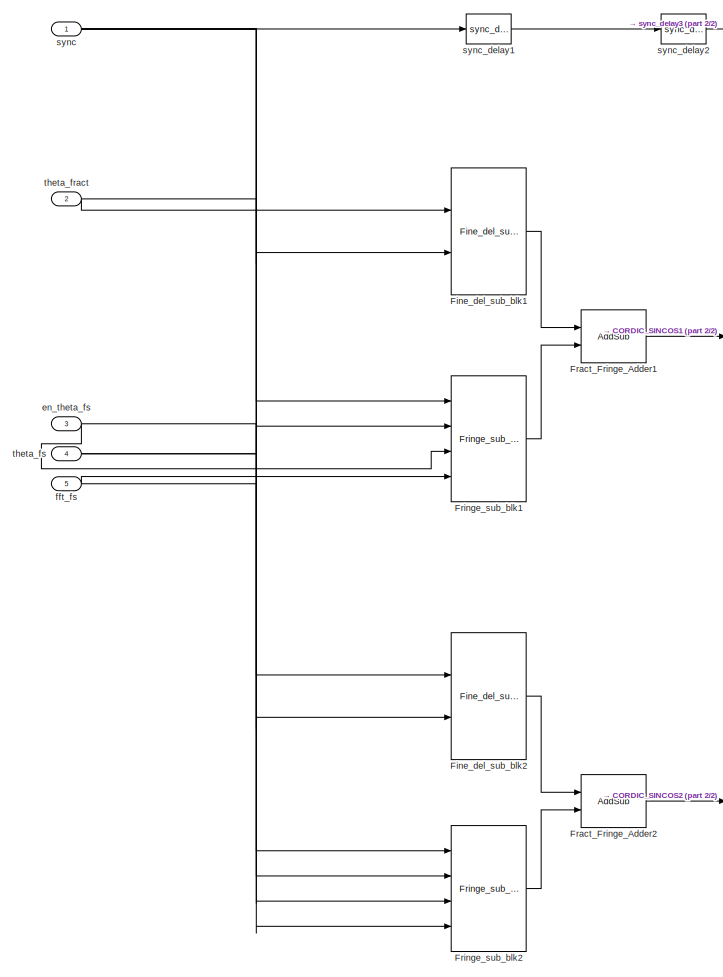
[diagram: finedelay_fstop_prog_cordic - part 1/2, left side, full height]
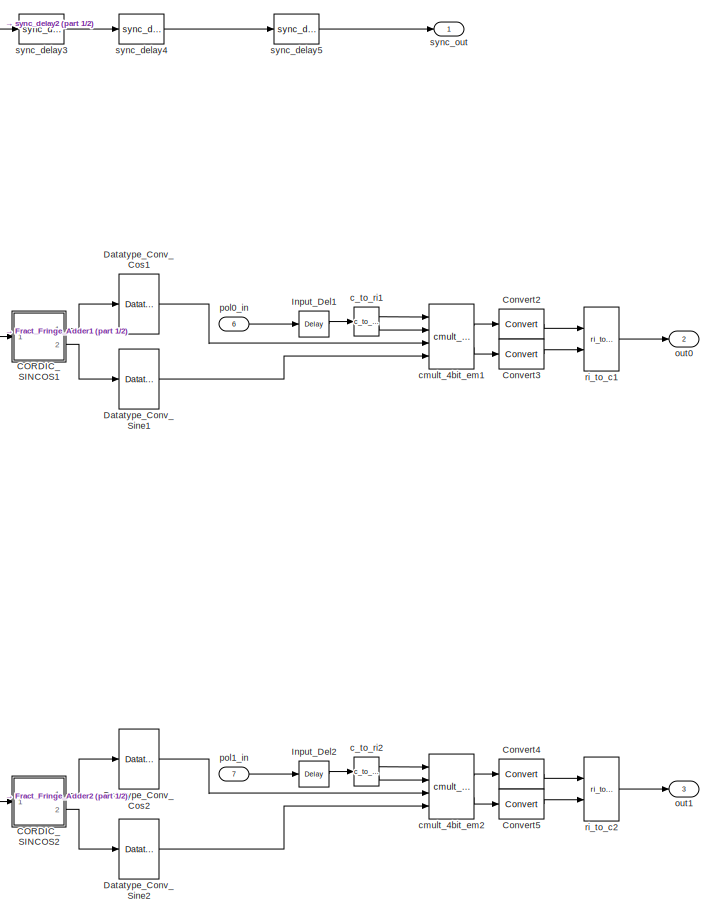
[diagram: finedelay_fstop_prog_cordic - part 2/2, right side, full height]
BLOCK [SubSystem] finedelay_fstop_prog_cordic
  Ports = [7, 3]
  RequestExecContextInheritance = off
  UserDataPersistent = on
  Variant = off
BLOCK [SubSystem] finedelay_fstop_prog_cordic/CORDIC_SINCOS1
  CopyFcn = set_param(gcb, 'MaskSelfModifiable', 'on', 'LinkStatus', 'none');
  Ports = [1, 2]
  RequestExecContextInheritance = off
  Variant = off
BLOCK [SubSystem] finedelay_fstop_prog_cordic/CORDIC_SINCOS1/CORDIC Fine Angle PE
  Ports = [3, 2]
  RequestExecContextInheritance = off
  Variant = off
BLOCK [SubSystem] finedelay_fstop_prog_cordic/CORDIC_SINCOS1/CORDIC Fine Angle PE/CORDIC PE1
  Ports = [3, 3]
  RequestExecContextInheritance = off
  Variant = off
BLOCK [Reference] finedelay_fstop_prog_cordic/CORDIC_SINCOS1/CORDIC Fine Angle PE/CORDIC PE1/AddSub  REF=xbsIndex_r4/AddSub
  Ports = [3, 1]
  SourceBlock = xbsIndex_r4/AddSub
  SourceType = Xilinx Adder/Subtracter Block
BLOCK [Reference] finedelay_fstop_prog_cordic/CORDIC_SINCOS1/CORDIC Fine Angle PE/CORDIC PE1/AddSub1  REF=xbsIndex_r4/AddSub
  Ports = [3, 1]
  SourceBlock = xbsIndex_r4/AddSub
  SourceType = Xilinx Adder/Subtracter Block
BLOCK [Reference] finedelay_fstop_prog_cordic/CORDIC_SINCOS1/CORDIC Fine Angle PE/CORDIC PE1/AddSub2  REF=xbsIndex_r4/AddSub
  Ports = [3, 1]
  SourceBlock = xbsIndex_r4/AddSub
  SourceType = Xilinx Adder/Subtracter Block
BLOCK [Reference] finedelay_fstop_prog_cordic/CORDIC_SINCOS1/CORDIC Fine Angle PE/CORDIC PE1/Constant  REF=xbsIndex_r4/Constant
  Ports = [0, 1]
  SourceBlock = xbsIndex_r4/Constant
  SourceType = Xilinx Constant Block Block
BLOCK [Reference] finedelay_fstop_prog_cordic/CORDIC_SINCOS1/CORDIC Fine Angle PE/CORDIC PE1/Inverter  REF=xbsIndex_r4/Inverter
  Ports = [1, 1]
  SourceBlock = xbsIndex_r4/Inverter
  SourceType = Xilinx Inverter Block
BLOCK [Reference] finedelay_fstop_prog_cordic/CORDIC_SINCOS1/CORDIC Fine Angle PE/CORDIC PE1/Shift  REF=xbsIndex_r4/Shift
  Ports = [1, 1]
  SourceBlock = xbsIndex_r4/Shift
  SourceType = Xilinx Binary Shift Operator Block
BLOCK [Reference] finedelay_fstop_prog_cordic/CORDIC_SINCOS1/CORDIC Fine Angle PE/CORDIC PE1/Shift1  REF=xbsIndex_r4/Shift
  Ports = [1, 1]
  SourceBlock = xbsIndex_r4/Shift
  SourceType = Xilinx Binary Shift Operator Block
BLOCK [Reference] finedelay_fstop_prog_cordic/CORDIC_SINCOS1/CORDIC Fine Angle PE/CORDIC PE1/Slice  REF=xbsIndex_r4/Slice
  Ports = [1, 1]
  SourceBlock = xbsIndex_r4/Slice
  SourceType = Xilinx Bit Slice Extractor Block
BLOCK [Outport] finedelay_fstop_prog_cordic/CORDIC_SINCOS1/CORDIC Fine Angle PE/CORDIC PE1/X
  IconDisplay = Port number
BLOCK [Outport] finedelay_fstop_prog_cordic/CORDIC_SINCOS1/CORDIC Fine Angle PE/CORDIC PE1/Y
  IconDisplay = Port number
  Port = 2
BLOCK [Outport] finedelay_fstop_prog_cordic/CORDIC_SINCOS1/CORDIC Fine Angle PE/CORDIC PE1/Z
  IconDisplay = Port number
  Port = 3
BLOCK [Inport] finedelay_fstop_prog_cordic/CORDIC_SINCOS1/CORDIC Fine Angle PE/CORDIC PE1/x
  IconDisplay = Port number
BLOCK [Inport] finedelay_fstop_prog_cordic/CORDIC_SINCOS1/CORDIC Fine Angle PE/CORDIC PE1/y
  IconDisplay = Port number
  Port = 2
BLOCK [Inport] finedelay_fstop_prog_cordic/CORDIC_SINCOS1/CORDIC Fine Angle PE/CORDIC PE1/z
  IconDisplay = Port number
  Port = 3
BLOCK [SubSystem] finedelay_fstop_prog_cordic/CORDIC_SINCOS1/CORDIC Fine Angle PE/CORDIC PE2
  Ports = [3, 3]
  RequestExecContextInheritance = off
  Variant = off
BLOCK [Reference] finedelay_fstop_prog_cordic/CORDIC_SINCOS1/CORDIC Fine Angle PE/CORDIC PE2/AddSub  REF=xbsIndex_r4/AddSub
  Ports = [3, 1]
  SourceBlock = xbsIndex_r4/AddSub
  SourceType = Xilinx Adder/Subtracter Block
BLOCK [Reference] finedelay_fstop_prog_cordic/CORDIC_SINCOS1/CORDIC Fine Angle PE/CORDIC PE2/AddSub1  REF=xbsIndex_r4/AddSub
  Ports = [3, 1]
  SourceBlock = xbsIndex_r4/AddSub
  SourceType = Xilinx Adder/Subtracter Block
BLOCK [Reference] finedelay_fstop_prog_cordic/CORDIC_SINCOS1/CORDIC Fine Angle PE/CORDIC PE2/AddSub2  REF=xbsIndex_r4/AddSub
  Ports = [3, 1]
  SourceBlock = xbsIndex_r4/AddSub
  SourceType = Xilinx Adder/Subtracter Block
BLOCK [Reference] finedelay_fstop_prog_cordic/CORDIC_SINCOS1/CORDIC Fine Angle PE/CORDIC PE2/Constant  REF=xbsIndex_r4/Constant
  Ports = [0, 1]
  SourceBlock = xbsIndex_r4/Constant
  SourceType = Xilinx Constant Block Block
BLOCK [Reference] finedelay_fstop_prog_cordic/CORDIC_SINCOS1/CORDIC Fine Angle PE/CORDIC PE2/Inverter  REF=xbsIndex_r4/Inverter
  Ports = [1, 1]
  SourceBlock = xbsIndex_r4/Inverter
  SourceType = Xilinx Inverter Block
BLOCK [Reference] finedelay_fstop_prog_cordic/CORDIC_SINCOS1/CORDIC Fine Angle PE/CORDIC PE2/Shift  REF=xbsIndex_r4/Shift
  Ports = [1, 1]
  SourceBlock = xbsIndex_r4/Shift
  SourceType = Xilinx Binary Shift Operator Block
BLOCK [Reference] finedelay_fstop_prog_cordic/CORDIC_SINCOS1/CORDIC Fine Angle PE/CORDIC PE2/Shift1  REF=xbsIndex_r4/Shift
  Ports = [1, 1]
  SourceBlock = xbsIndex_r4/Shift
  SourceType = Xilinx Binary Shift Operator Block
BLOCK [Reference] finedelay_fstop_prog_cordic/CORDIC_SINCOS1/CORDIC Fine Angle PE/CORDIC PE2/Slice  REF=xbsIndex_r4/Slice
  Ports = [1, 1]
  SourceBlock = xbsIndex_r4/Slice
  SourceType = Xilinx Bit Slice Extractor Block
BLOCK [Outport] finedelay_fstop_prog_cordic/CORDIC_SINCOS1/CORDIC Fine Angle PE/CORDIC PE2/X
  IconDisplay = Port number
BLOCK [Outport] finedelay_fstop_prog_cordic/CORDIC_SINCOS1/CORDIC Fine Angle PE/CORDIC PE2/Y
  IconDisplay = Port number
  Port = 2
BLOCK [Outport] finedelay_fstop_prog_cordic/CORDIC_SINCOS1/CORDIC Fine Angle PE/CORDIC PE2/Z
  IconDisplay = Port number
  Port = 3
BLOCK [Inport] finedelay_fstop_prog_cordic/CORDIC_SINCOS1/CORDIC Fine Angle PE/CORDIC PE2/x
  IconDisplay = Port number
BLOCK [Inport] finedelay_fstop_prog_cordic/CORDIC_SINCOS1/CORDIC Fine Angle PE/CORDIC PE2/y
  IconDisplay = Port number
  Port = 2
BLOCK [Inport] finedelay_fstop_prog_cordic/CORDIC_SINCOS1/CORDIC Fine Angle PE/CORDIC PE2/z
  IconDisplay = Port number
  Port = 3
BLOCK [SubSystem] finedelay_fstop_prog_cordic/CORDIC_SINCOS1/CORDIC Fine Angle PE/CORDIC PE3
  Ports = [3, 3]
  RequestExecContextInheritance = off
  Variant = off
BLOCK [Reference] finedelay_fstop_prog_cordic/CORDIC_SINCOS1/CORDIC Fine Angle PE/CORDIC PE3/AddSub  REF=xbsIndex_r4/AddSub
  Ports = [3, 1]
  SourceBlock = xbsIndex_r4/AddSub
  SourceType = Xilinx Adder/Subtracter Block
BLOCK [Reference] finedelay_fstop_prog_cordic/CORDIC_SINCOS1/CORDIC Fine Angle PE/CORDIC PE3/AddSub1  REF=xbsIndex_r4/AddSub
  Ports = [3, 1]
  SourceBlock = xbsIndex_r4/AddSub
  SourceType = Xilinx Adder/Subtracter Block
BLOCK [Reference] finedelay_fstop_prog_cordic/CORDIC_SINCOS1/CORDIC Fine Angle PE/CORDIC PE3/AddSub2  REF=xbsIndex_r4/AddSub
  Ports = [3, 1]
  SourceBlock = xbsIndex_r4/AddSub
  SourceType = Xilinx Adder/Subtracter Block
BLOCK [Reference] finedelay_fstop_prog_cordic/CORDIC_SINCOS1/CORDIC Fine Angle PE/CORDIC PE3/Constant  REF=xbsIndex_r4/Constant
  Ports = [0, 1]
  SourceBlock = xbsIndex_r4/Constant
  SourceType = Xilinx Constant Block Block
BLOCK [Reference] finedelay_fstop_prog_cordic/CORDIC_SINCOS1/CORDIC Fine Angle PE/CORDIC PE3/Inverter  REF=xbsIndex_r4/Inverter
  Ports = [1, 1]
  SourceBlock = xbsIndex_r4/Inverter
  SourceType = Xilinx Inverter Block
BLOCK [Reference] finedelay_fstop_prog_cordic/CORDIC_SINCOS1/CORDIC Fine Angle PE/CORDIC PE3/Shift  REF=xbsIndex_r4/Shift
  Ports = [1, 1]
  SourceBlock = xbsIndex_r4/Shift
  SourceType = Xilinx Binary Shift Operator Block
BLOCK [Reference] finedelay_fstop_prog_cordic/CORDIC_SINCOS1/CORDIC Fine Angle PE/CORDIC PE3/Shift1  REF=xbsIndex_r4/Shift
  Ports = [1, 1]
  SourceBlock = xbsIndex_r4/Shift
  SourceType = Xilinx Binary Shift Operator Block
BLOCK [Reference] finedelay_fstop_prog_cordic/CORDIC_SINCOS1/CORDIC Fine Angle PE/CORDIC PE3/Slice  REF=xbsIndex_r4/Slice
  Ports = [1, 1]
  SourceBlock = xbsIndex_r4/Slice
  SourceType = Xilinx Bit Slice Extractor Block
BLOCK [Outport] finedelay_fstop_prog_cordic/CORDIC_SINCOS1/CORDIC Fine Angle PE/CORDIC PE3/X
  IconDisplay = Port number
BLOCK [Outport] finedelay_fstop_prog_cordic/CORDIC_SINCOS1/CORDIC Fine Angle PE/CORDIC PE3/Y
  IconDisplay = Port number
  Port = 2
BLOCK [Outport] finedelay_fstop_prog_cordic/CORDIC_SINCOS1/CORDIC Fine Angle PE/CORDIC PE3/Z
  IconDisplay = Port number
  Port = 3
BLOCK [Inport] finedelay_fstop_prog_cordic/CORDIC_SINCOS1/CORDIC Fine Angle PE/CORDIC PE3/x
  IconDisplay = Port number
BLOCK [Inport] finedelay_fstop_prog_cordic/CORDIC_SINCOS1/CORDIC Fine Angle PE/CORDIC PE3/y
  IconDisplay = Port number
  Port = 2
BLOCK [Inport] finedelay_fstop_prog_cordic/CORDIC_SINCOS1/CORDIC Fine Angle PE/CORDIC PE3/z
  IconDisplay = Port number
  Port = 3
BLOCK [SubSystem] finedelay_fstop_prog_cordic/CORDIC_SINCOS1/CORDIC Fine Angle PE/CORDIC PE4
  Ports = [3, 3]
  RequestExecContextInheritance = off
  Variant = off
BLOCK [Reference] finedelay_fstop_prog_cordic/CORDIC_SINCOS1/CORDIC Fine Angle PE/CORDIC PE4/AddSub  REF=xbsIndex_r4/AddSub
  Ports = [3, 1]
  SourceBlock = xbsIndex_r4/AddSub
  SourceType = Xilinx Adder/Subtracter Block
BLOCK [Reference] finedelay_fstop_prog_cordic/CORDIC_SINCOS1/CORDIC Fine Angle PE/CORDIC PE4/AddSub1  REF=xbsIndex_r4/AddSub
  Ports = [3, 1]
  SourceBlock = xbsIndex_r4/AddSub
  SourceType = Xilinx Adder/Subtracter Block
BLOCK [Reference] finedelay_fstop_prog_cordic/CORDIC_SINCOS1/CORDIC Fine Angle PE/CORDIC PE4/AddSub2  REF=xbsIndex_r4/AddSub
  Ports = [3, 1]
  SourceBlock = xbsIndex_r4/AddSub
  SourceType = Xilinx Adder/Subtracter Block
BLOCK [Reference] finedelay_fstop_prog_cordic/CORDIC_SINCOS1/CORDIC Fine Angle PE/CORDIC PE4/Constant  REF=xbsIndex_r4/Constant
  Ports = [0, 1]
  SourceBlock = xbsIndex_r4/Constant
  SourceType = Xilinx Constant Block Block
BLOCK [Reference] finedelay_fstop_prog_cordic/CORDIC_SINCOS1/CORDIC Fine Angle PE/CORDIC PE4/Inverter  REF=xbsIndex_r4/Inverter
  Ports = [1, 1]
  SourceBlock = xbsIndex_r4/Inverter
  SourceType = Xilinx Inverter Block
BLOCK [Reference] finedelay_fstop_prog_cordic/CORDIC_SINCOS1/CORDIC Fine Angle PE/CORDIC PE4/Shift  REF=xbsIndex_r4/Shift
  Ports = [1, 1]
  SourceBlock = xbsIndex_r4/Shift
  SourceType = Xilinx Binary Shift Operator Block
BLOCK [Reference] finedelay_fstop_prog_cordic/CORDIC_SINCOS1/CORDIC Fine Angle PE/CORDIC PE4/Shift1  REF=xbsIndex_r4/Shift
  Ports = [1, 1]
  SourceBlock = xbsIndex_r4/Shift
  SourceType = Xilinx Binary Shift Operator Block
BLOCK [Reference] finedelay_fstop_prog_cordic/CORDIC_SINCOS1/CORDIC Fine Angle PE/CORDIC PE4/Slice  REF=xbsIndex_r4/Slice
  Ports = [1, 1]
  SourceBlock = xbsIndex_r4/Slice
  SourceType = Xilinx Bit Slice Extractor Block
BLOCK [Outport] finedelay_fstop_prog_cordic/CORDIC_SINCOS1/CORDIC Fine Angle PE/CORDIC PE4/X
  IconDisplay = Port number
BLOCK [Outport] finedelay_fstop_prog_cordic/CORDIC_SINCOS1/CORDIC Fine Angle PE/CORDIC PE4/Y
  IconDisplay = Port number
  Port = 2
BLOCK [Outport] finedelay_fstop_prog_cordic/CORDIC_SINCOS1/CORDIC Fine Angle PE/CORDIC PE4/Z
  IconDisplay = Port number
  Port = 3
BLOCK [Inport] finedelay_fstop_prog_cordic/CORDIC_SINCOS1/CORDIC Fine Angle PE/CORDIC PE4/x
  IconDisplay = Port number
BLOCK [Inport] finedelay_fstop_prog_cordic/CORDIC_SINCOS1/CORDIC Fine Angle PE/CORDIC PE4/y
  IconDisplay = Port number
  Port = 2
BLOCK [Inport] finedelay_fstop_prog_cordic/CORDIC_SINCOS1/CORDIC Fine Angle PE/CORDIC PE4/z
  IconDisplay = Port number
  Port = 3
BLOCK [SubSystem] finedelay_fstop_prog_cordic/CORDIC_SINCOS1/CORDIC Fine Angle PE/CORDIC PE5
  Ports = [3, 3]
  RequestExecContextInheritance = off
  Variant = off
BLOCK [Reference] finedelay_fstop_prog_cordic/CORDIC_SINCOS1/CORDIC Fine Angle PE/CORDIC PE5/AddSub  REF=xbsIndex_r4/AddSub
  Ports = [3, 1]
  SourceBlock = xbsIndex_r4/AddSub
  SourceType = Xilinx Adder/Subtracter Block
BLOCK [Reference] finedelay_fstop_prog_cordic/CORDIC_SINCOS1/CORDIC Fine Angle PE/CORDIC PE5/AddSub1  REF=xbsIndex_r4/AddSub
  Ports = [3, 1]
  SourceBlock = xbsIndex_r4/AddSub
  SourceType = Xilinx Adder/Subtracter Block
BLOCK [Reference] finedelay_fstop_prog_cordic/CORDIC_SINCOS1/CORDIC Fine Angle PE/CORDIC PE5/AddSub2  REF=xbsIndex_r4/AddSub
  Ports = [3, 1]
  SourceBlock = xbsIndex_r4/AddSub
  SourceType = Xilinx Adder/Subtracter Block
BLOCK [Reference] finedelay_fstop_prog_cordic/CORDIC_SINCOS1/CORDIC Fine Angle PE/CORDIC PE5/Constant  REF=xbsIndex_r4/Constant
  Ports = [0, 1]
  SourceBlock = xbsIndex_r4/Constant
  SourceType = Xilinx Constant Block Block
BLOCK [Reference] finedelay_fstop_prog_cordic/CORDIC_SINCOS1/CORDIC Fine Angle PE/CORDIC PE5/Inverter  REF=xbsIndex_r4/Inverter
  Ports = [1, 1]
  SourceBlock = xbsIndex_r4/Inverter
  SourceType = Xilinx Inverter Block
BLOCK [Reference] finedelay_fstop_prog_cordic/CORDIC_SINCOS1/CORDIC Fine Angle PE/CORDIC PE5/Shift  REF=xbsIndex_r4/Shift
  Ports = [1, 1]
  SourceBlock = xbsIndex_r4/Shift
  SourceType = Xilinx Binary Shift Operator Block
BLOCK [Reference] finedelay_fstop_prog_cordic/CORDIC_SINCOS1/CORDIC Fine Angle PE/CORDIC PE5/Shift1  REF=xbsIndex_r4/Shift
  Ports = [1, 1]
  SourceBlock = xbsIndex_r4/Shift
  SourceType = Xilinx Binary Shift Operator Block
BLOCK [Reference] finedelay_fstop_prog_cordic/CORDIC_SINCOS1/CORDIC Fine Angle PE/CORDIC PE5/Slice  REF=xbsIndex_r4/Slice
  Ports = [1, 1]
  SourceBlock = xbsIndex_r4/Slice
  SourceType = Xilinx Bit Slice Extractor Block
BLOCK [Outport] finedelay_fstop_prog_cordic/CORDIC_SINCOS1/CORDIC Fine Angle PE/CORDIC PE5/X
  IconDisplay = Port number
BLOCK [Outport] finedelay_fstop_prog_cordic/CORDIC_SINCOS1/CORDIC Fine Angle PE/CORDIC PE5/Y
  IconDisplay = Port number
  Port = 2
BLOCK [Outport] finedelay_fstop_prog_cordic/CORDIC_SINCOS1/CORDIC Fine Angle PE/CORDIC PE5/Z
  IconDisplay = Port number
  Port = 3
BLOCK [Inport] finedelay_fstop_prog_cordic/CORDIC_SINCOS1/CORDIC Fine Angle PE/CORDIC PE5/x
  IconDisplay = Port number
BLOCK [Inport] finedelay_fstop_prog_cordic/CORDIC_SINCOS1/CORDIC Fine Angle PE/CORDIC PE5/y
  IconDisplay = Port number
  Port = 2
BLOCK [Inport] finedelay_fstop_prog_cordic/CORDIC_SINCOS1/CORDIC Fine Angle PE/CORDIC PE5/z
  IconDisplay = Port number
  Port = 3
BLOCK [SubSystem] finedelay_fstop_prog_cordic/CORDIC_SINCOS1/CORDIC Fine Angle PE/CORDIC PE6
  Ports = [3, 3]
  RequestExecContextInheritance = off
  Variant = off
BLOCK [Reference] finedelay_fstop_prog_cordic/CORDIC_SINCOS1/CORDIC Fine Angle PE/CORDIC PE6/AddSub  REF=xbsIndex_r4/AddSub
  Ports = [3, 1]
  SourceBlock = xbsIndex_r4/AddSub
  SourceType = Xilinx Adder/Subtracter Block
BLOCK [Reference] finedelay_fstop_prog_cordic/CORDIC_SINCOS1/CORDIC Fine Angle PE/CORDIC PE6/AddSub1  REF=xbsIndex_r4/AddSub
  Ports = [3, 1]
  SourceBlock = xbsIndex_r4/AddSub
  SourceType = Xilinx Adder/Subtracter Block
BLOCK [Reference] finedelay_fstop_prog_cordic/CORDIC_SINCOS1/CORDIC Fine Angle PE/CORDIC PE6/AddSub2  REF=xbsIndex_r4/AddSub
  Ports = [3, 1]
  SourceBlock = xbsIndex_r4/AddSub
  SourceType = Xilinx Adder/Subtracter Block
BLOCK [Reference] finedelay_fstop_prog_cordic/CORDIC_SINCOS1/CORDIC Fine Angle PE/CORDIC PE6/Constant  REF=xbsIndex_r4/Constant
  Ports = [0, 1]
  SourceBlock = xbsIndex_r4/Constant
  SourceType = Xilinx Constant Block Block
BLOCK [Reference] finedelay_fstop_prog_cordic/CORDIC_SINCOS1/CORDIC Fine Angle PE/CORDIC PE6/Inverter  REF=xbsIndex_r4/Inverter
  Ports = [1, 1]
  SourceBlock = xbsIndex_r4/Inverter
  SourceType = Xilinx Inverter Block
BLOCK [Reference] finedelay_fstop_prog_cordic/CORDIC_SINCOS1/CORDIC Fine Angle PE/CORDIC PE6/Shift  REF=xbsIndex_r4/Shift
  Ports = [1, 1]
  SourceBlock = xbsIndex_r4/Shift
  SourceType = Xilinx Binary Shift Operator Block
BLOCK [Reference] finedelay_fstop_prog_cordic/CORDIC_SINCOS1/CORDIC Fine Angle PE/CORDIC PE6/Shift1  REF=xbsIndex_r4/Shift
  Ports = [1, 1]
  SourceBlock = xbsIndex_r4/Shift
  SourceType = Xilinx Binary Shift Operator Block
BLOCK [Reference] finedelay_fstop_prog_cordic/CORDIC_SINCOS1/CORDIC Fine Angle PE/CORDIC PE6/Slice  REF=xbsIndex_r4/Slice
  Ports = [1, 1]
  SourceBlock = xbsIndex_r4/Slice
  SourceType = Xilinx Bit Slice Extractor Block
BLOCK [Outport] finedelay_fstop_prog_cordic/CORDIC_SINCOS1/CORDIC Fine Angle PE/CORDIC PE6/X
  IconDisplay = Port number
BLOCK [Outport] finedelay_fstop_prog_cordic/CORDIC_SINCOS1/CORDIC Fine Angle PE/CORDIC PE6/Y
  IconDisplay = Port number
  Port = 2
BLOCK [Outport] finedelay_fstop_prog_cordic/CORDIC_SINCOS1/CORDIC Fine Angle PE/CORDIC PE6/Z
  IconDisplay = Port number
  Port = 3
BLOCK [Inport] finedelay_fstop_prog_cordic/CORDIC_SINCOS1/CORDIC Fine Angle PE/CORDIC PE6/x
  IconDisplay = Port number
BLOCK [Inport] finedelay_fstop_prog_cordic/CORDIC_SINCOS1/CORDIC Fine Angle PE/CORDIC PE6/y
  IconDisplay = Port number
  Port = 2
BLOCK [Inport] finedelay_fstop_prog_cordic/CORDIC_SINCOS1/CORDIC Fine Angle PE/CORDIC PE6/z
  IconDisplay = Port number
  Port = 3
BLOCK [SubSystem] finedelay_fstop_prog_cordic/CORDIC_SINCOS1/CORDIC Fine Angle PE/CORDIC PE7
  Ports = [3, 3]
  RequestExecContextInheritance = off
  Variant = off
BLOCK [Reference] finedelay_fstop_prog_cordic/CORDIC_SINCOS1/CORDIC Fine Angle PE/CORDIC PE7/AddSub  REF=xbsIndex_r4/AddSub
  Ports = [3, 1]
  SourceBlock = xbsIndex_r4/AddSub
  SourceType = Xilinx Adder/Subtracter Block
BLOCK [Reference] finedelay_fstop_prog_cordic/CORDIC_SINCOS1/CORDIC Fine Angle PE/CORDIC PE7/AddSub1  REF=xbsIndex_r4/AddSub
  Ports = [3, 1]
  SourceBlock = xbsIndex_r4/AddSub
  SourceType = Xilinx Adder/Subtracter Block
BLOCK [Reference] finedelay_fstop_prog_cordic/CORDIC_SINCOS1/CORDIC Fine Angle PE/CORDIC PE7/AddSub2  REF=xbsIndex_r4/AddSub
  Ports = [3, 1]
  SourceBlock = xbsIndex_r4/AddSub
  SourceType = Xilinx Adder/Subtracter Block
BLOCK [Reference] finedelay_fstop_prog_cordic/CORDIC_SINCOS1/CORDIC Fine Angle PE/CORDIC PE7/Constant  REF=xbsIndex_r4/Constant
  Ports = [0, 1]
  SourceBlock = xbsIndex_r4/Constant
  SourceType = Xilinx Constant Block Block
BLOCK [Reference] finedelay_fstop_prog_cordic/CORDIC_SINCOS1/CORDIC Fine Angle PE/CORDIC PE7/Inverter  REF=xbsIndex_r4/Inverter
  Ports = [1, 1]
  SourceBlock = xbsIndex_r4/Inverter
  SourceType = Xilinx Inverter Block
BLOCK [Reference] finedelay_fstop_prog_cordic/CORDIC_SINCOS1/CORDIC Fine Angle PE/CORDIC PE7/Shift  REF=xbsIndex_r4/Shift
  Ports = [1, 1]
  SourceBlock = xbsIndex_r4/Shift
  SourceType = Xilinx Binary Shift Operator Block
BLOCK [Reference] finedelay_fstop_prog_cordic/CORDIC_SINCOS1/CORDIC Fine Angle PE/CORDIC PE7/Shift1  REF=xbsIndex_r4/Shift
  Ports = [1, 1]
  SourceBlock = xbsIndex_r4/Shift
  SourceType = Xilinx Binary Shift Operator Block
BLOCK [Reference] finedelay_fstop_prog_cordic/CORDIC_SINCOS1/CORDIC Fine Angle PE/CORDIC PE7/Slice  REF=xbsIndex_r4/Slice
  Ports = [1, 1]
  SourceBlock = xbsIndex_r4/Slice
  SourceType = Xilinx Bit Slice Extractor Block
BLOCK [Outport] finedelay_fstop_prog_cordic/CORDIC_SINCOS1/CORDIC Fine Angle PE/CORDIC PE7/X
  IconDisplay = Port number
BLOCK [Outport] finedelay_fstop_prog_cordic/CORDIC_SINCOS1/CORDIC Fine Angle PE/CORDIC PE7/Y
  IconDisplay = Port number
  Port = 2
BLOCK [Outport] finedelay_fstop_prog_cordic/CORDIC_SINCOS1/CORDIC Fine Angle PE/CORDIC PE7/Z
  IconDisplay = Port number
  Port = 3
BLOCK [Inport] finedelay_fstop_prog_cordic/CORDIC_SINCOS1/CORDIC Fine Angle PE/CORDIC PE7/x
  IconDisplay = Port number
BLOCK [Inport] finedelay_fstop_prog_cordic/CORDIC_SINCOS1/CORDIC Fine Angle PE/CORDIC PE7/y
  IconDisplay = Port number
  Port = 2
BLOCK [Inport] finedelay_fstop_prog_cordic/CORDIC_SINCOS1/CORDIC Fine Angle PE/CORDIC PE7/z
  IconDisplay = Port number
  Port = 3
BLOCK [SubSystem] finedelay_fstop_prog_cordic/CORDIC_SINCOS1/CORDIC Fine Angle PE/CORDIC PE8
  Ports = [3, 3]
  RequestExecContextInheritance = off
  Variant = off
BLOCK [Reference] finedelay_fstop_prog_cordic/CORDIC_SINCOS1/CORDIC Fine Angle PE/CORDIC PE8/AddSub  REF=xbsIndex_r4/AddSub
  Ports = [3, 1]
  SourceBlock = xbsIndex_r4/AddSub
  SourceType = Xilinx Adder/Subtracter Block
BLOCK [Reference] finedelay_fstop_prog_cordic/CORDIC_SINCOS1/CORDIC Fine Angle PE/CORDIC PE8/AddSub1  REF=xbsIndex_r4/AddSub
  Ports = [3, 1]
  SourceBlock = xbsIndex_r4/AddSub
  SourceType = Xilinx Adder/Subtracter Block
BLOCK [Reference] finedelay_fstop_prog_cordic/CORDIC_SINCOS1/CORDIC Fine Angle PE/CORDIC PE8/AddSub2  REF=xbsIndex_r4/AddSub
  Ports = [3, 1]
  SourceBlock = xbsIndex_r4/AddSub
  SourceType = Xilinx Adder/Subtracter Block
BLOCK [Reference] finedelay_fstop_prog_cordic/CORDIC_SINCOS1/CORDIC Fine Angle PE/CORDIC PE8/Constant  REF=xbsIndex_r4/Constant
  Ports = [0, 1]
  SourceBlock = xbsIndex_r4/Constant
  SourceType = Xilinx Constant Block Block
BLOCK [Reference] finedelay_fstop_prog_cordic/CORDIC_SINCOS1/CORDIC Fine Angle PE/CORDIC PE8/Inverter  REF=xbsIndex_r4/Inverter
  Ports = [1, 1]
  SourceBlock = xbsIndex_r4/Inverter
  SourceType = Xilinx Inverter Block
BLOCK [Reference] finedelay_fstop_prog_cordic/CORDIC_SINCOS1/CORDIC Fine Angle PE/CORDIC PE8/Shift  REF=xbsIndex_r4/Shift
  Ports = [1, 1]
  SourceBlock = xbsIndex_r4/Shift
  SourceType = Xilinx Binary Shift Operator Block
BLOCK [Reference] finedelay_fstop_prog_cordic/CORDIC_SINCOS1/CORDIC Fine Angle PE/CORDIC PE8/Shift1  REF=xbsIndex_r4/Shift
  Ports = [1, 1]
  SourceBlock = xbsIndex_r4/Shift
  SourceType = Xilinx Binary Shift Operator Block
BLOCK [Reference] finedelay_fstop_prog_cordic/CORDIC_SINCOS1/CORDIC Fine Angle PE/CORDIC PE8/Slice  REF=xbsIndex_r4/Slice
  Ports = [1, 1]
  SourceBlock = xbsIndex_r4/Slice
  SourceType = Xilinx Bit Slice Extractor Block
BLOCK [Outport] finedelay_fstop_prog_cordic/CORDIC_SINCOS1/CORDIC Fine Angle PE/CORDIC PE8/X
  IconDisplay = Port number
BLOCK [Outport] finedelay_fstop_prog_cordic/CORDIC_SINCOS1/CORDIC Fine Angle PE/CORDIC PE8/Y
  IconDisplay = Port number
  Port = 2
BLOCK [Outport] finedelay_fstop_prog_cordic/CORDIC_SINCOS1/CORDIC Fine Angle PE/CORDIC PE8/Z
  IconDisplay = Port number
  Port = 3
BLOCK [Inport] finedelay_fstop_prog_cordic/CORDIC_SINCOS1/CORDIC Fine Angle PE/CORDIC PE8/x
  IconDisplay = Port number
BLOCK [Inport] finedelay_fstop_prog_cordic/CORDIC_SINCOS1/CORDIC Fine Angle PE/CORDIC PE8/y
  IconDisplay = Port number
  Port = 2
BLOCK [Inport] finedelay_fstop_prog_cordic/CORDIC_SINCOS1/CORDIC Fine Angle PE/CORDIC PE8/z
  IconDisplay = Port number
  Port = 3
BLOCK [SubSystem] finedelay_fstop_prog_cordic/CORDIC_SINCOS1/CORDIC Fine Angle PE/CORDIC PE9
  Ports = [3, 3]
  RequestExecContextInheritance = off
  Variant = off
BLOCK [Reference] finedelay_fstop_prog_cordic/CORDIC_SINCOS1/CORDIC Fine Angle PE/CORDIC PE9/AddSub  REF=xbsIndex_r4/AddSub
  Ports = [3, 1]
  SourceBlock = xbsIndex_r4/AddSub
  SourceType = Xilinx Adder/Subtracter Block
BLOCK [Reference] finedelay_fstop_prog_cordic/CORDIC_SINCOS1/CORDIC Fine Angle PE/CORDIC PE9/AddSub1  REF=xbsIndex_r4/AddSub
  Ports = [3, 1]
  SourceBlock = xbsIndex_r4/AddSub
  SourceType = Xilinx Adder/Subtracter Block
BLOCK [Reference] finedelay_fstop_prog_cordic/CORDIC_SINCOS1/CORDIC Fine Angle PE/CORDIC PE9/AddSub2  REF=xbsIndex_r4/AddSub
  Ports = [3, 1]
  SourceBlock = xbsIndex_r4/AddSub
  SourceType = Xilinx Adder/Subtracter Block
BLOCK [Reference] finedelay_fstop_prog_cordic/CORDIC_SINCOS1/CORDIC Fine Angle PE/CORDIC PE9/Constant  REF=xbsIndex_r4/Constant
  Ports = [0, 1]
  SourceBlock = xbsIndex_r4/Constant
  SourceType = Xilinx Constant Block Block
BLOCK [Reference] finedelay_fstop_prog_cordic/CORDIC_SINCOS1/CORDIC Fine Angle PE/CORDIC PE9/Inverter  REF=xbsIndex_r4/Inverter
  Ports = [1, 1]
  SourceBlock = xbsIndex_r4/Inverter
  SourceType = Xilinx Inverter Block
BLOCK [Reference] finedelay_fstop_prog_cordic/CORDIC_SINCOS1/CORDIC Fine Angle PE/CORDIC PE9/Shift  REF=xbsIndex_r4/Shift
  Ports = [1, 1]
  SourceBlock = xbsIndex_r4/Shift
  SourceType = Xilinx Binary Shift Operator Block
BLOCK [Reference] finedelay_fstop_prog_cordic/CORDIC_SINCOS1/CORDIC Fine Angle PE/CORDIC PE9/Shift1  REF=xbsIndex_r4/Shift
  Ports = [1, 1]
  SourceBlock = xbsIndex_r4/Shift
  SourceType = Xilinx Binary Shift Operator Block
BLOCK [Reference] finedelay_fstop_prog_cordic/CORDIC_SINCOS1/CORDIC Fine Angle PE/CORDIC PE9/Slice  REF=xbsIndex_r4/Slice
  Ports = [1, 1]
  SourceBlock = xbsIndex_r4/Slice
  SourceType = Xilinx Bit Slice Extractor Block
BLOCK [Outport] finedelay_fstop_prog_cordic/CORDIC_SINCOS1/CORDIC Fine Angle PE/CORDIC PE9/X
  IconDisplay = Port number
BLOCK [Outport] finedelay_fstop_prog_cordic/CORDIC_SINCOS1/CORDIC Fine Angle PE/CORDIC PE9/Y
  IconDisplay = Port number
  Port = 2
BLOCK [Outport] finedelay_fstop_prog_cordic/CORDIC_SINCOS1/CORDIC Fine Angle PE/CORDIC PE9/Z
  IconDisplay = Port number
  Port = 3
BLOCK [Inport] finedelay_fstop_prog_cordic/CORDIC_SINCOS1/CORDIC Fine Angle PE/CORDIC PE9/x
  IconDisplay = Port number
BLOCK [Inport] finedelay_fstop_prog_cordic/CORDIC_SINCOS1/CORDIC Fine Angle PE/CORDIC PE9/y
  IconDisplay = Port number
  Port = 2
BLOCK [Inport] finedelay_fstop_prog_cordic/CORDIC_SINCOS1/CORDIC Fine Angle PE/CORDIC PE9/z
  IconDisplay = Port number
  Port = 3
BLOCK [Terminator] finedelay_fstop_prog_cordic/CORDIC_SINCOS1/CORDIC Fine Angle PE/Terminator
BLOCK [Outport] finedelay_fstop_prog_cordic/CORDIC_SINCOS1/CORDIC Fine Angle PE/X
  IconDisplay = Port number
BLOCK [Outport] finedelay_fstop_prog_cordic/CORDIC_SINCOS1/CORDIC Fine Angle PE/Y
  IconDisplay = Port number
  Port = 2
BLOCK [Inport] finedelay_fstop_prog_cordic/CORDIC_SINCOS1/CORDIC Fine Angle PE/x
  IconDisplay = Port number
BLOCK [Inport] finedelay_fstop_prog_cordic/CORDIC_SINCOS1/CORDIC Fine Angle PE/y
  IconDisplay = Port number
  Port = 2
BLOCK [Inport] finedelay_fstop_prog_cordic/CORDIC_SINCOS1/CORDIC Fine Angle PE/z
  IconDisplay = Port number
  Port = 3
BLOCK [Reference] finedelay_fstop_prog_cordic/CORDIC_SINCOS1/Constant  REF=xbsIndex_r4/Constant
  Ports = [0, 1]
  SourceBlock = xbsIndex_r4/Constant
  SourceType = Xilinx Constant Block Block
BLOCK [Reference] finedelay_fstop_prog_cordic/CORDIC_SINCOS1/Constant1  REF=xbsIndex_r4/Constant
  Ports = [0, 1]
  SourceBlock = xbsIndex_r4/Constant
  SourceType = Xilinx Constant Block Block
BLOCK [Reference] finedelay_fstop_prog_cordic/CORDIC_SINCOS1/Delay1  REF=xbsIndex_r4/Delay
  Ports = [1, 1]
  SourceBlock = xbsIndex_r4/Delay
  SourceType = Xilinx Delay Block
BLOCK [Reference] finedelay_fstop_prog_cordic/CORDIC_SINCOS1/Delay4  REF=xbsIndex_r4/Delay
  Ports = [1, 1]
  SourceBlock = xbsIndex_r4/Delay
  SourceType = Xilinx Delay Block
BLOCK [SubSystem] finedelay_fstop_prog_cordic/CORDIC_SINCOS1/Quadrant Correct
  Ports = [4, 2]
  RequestExecContextInheritance = off
  Variant = off
BLOCK [Reference] finedelay_fstop_prog_cordic/CORDIC_SINCOS1/Quadrant Correct/Mux  REF=xbsIndex_r4/Mux
  Ports = [3, 1]
  SourceBlock = xbsIndex_r4/Mux
  SourceType = Xilinx Bus Multiplexer Block
BLOCK [Reference] finedelay_fstop_prog_cordic/CORDIC_SINCOS1/Quadrant Correct/Mux1  REF=xbsIndex_r4/Mux
  Ports = [3, 1]
  SourceBlock = xbsIndex_r4/Mux
  SourceType = Xilinx Bus Multiplexer Block
BLOCK [Reference] finedelay_fstop_prog_cordic/CORDIC_SINCOS1/Quadrant Correct/Mux2  REF=xbsIndex_r4/Mux
  Ports = [3, 1]
  SourceBlock = xbsIndex_r4/Mux
  SourceType = Xilinx Bus Multiplexer Block
BLOCK [Reference] finedelay_fstop_prog_cordic/CORDIC_SINCOS1/Quadrant Correct/Mux3  REF=xbsIndex_r4/Mux
  Ports = [3, 1]
  SourceBlock = xbsIndex_r4/Mux
  SourceType = Xilinx Bus Multiplexer Block
BLOCK [Reference] finedelay_fstop_prog_cordic/CORDIC_SINCOS1/Quadrant Correct/Negate1  REF=xbsIndex_r4/Negate
  Ports = [1, 1]
  SourceBlock = xbsIndex_r4/Negate
  SourceType = Xilinx Negate Block Block
BLOCK [Reference] finedelay_fstop_prog_cordic/CORDIC_SINCOS1/Quadrant Correct/Negate2  REF=xbsIndex_r4/Negate
  Ports = [1, 1]
  SourceBlock = xbsIndex_r4/Negate
  SourceType = Xilinx Negate Block Block
BLOCK [Inport] finedelay_fstop_prog_cordic/CORDIC_SINCOS1/Quadrant Correct/angle_map
  IconDisplay = Port number
  Port = 3
BLOCK [Inport] finedelay_fstop_prog_cordic/CORDIC_SINCOS1/Quadrant Correct/cos
  IconDisplay = Port number
BLOCK [Outport] finedelay_fstop_prog_cordic/CORDIC_SINCOS1/Quadrant Correct/cosine
  IconDisplay = Port number
BLOCK [Inport] finedelay_fstop_prog_cordic/CORDIC_SINCOS1/Quadrant Correct/sgn(z)
  IconDisplay = Port number
  Port = 4
BLOCK [Inport] finedelay_fstop_prog_cordic/CORDIC_SINCOS1/Quadrant Correct/sin
  IconDisplay = Port number
  Port = 2
BLOCK [Outport] finedelay_fstop_prog_cordic/CORDIC_SINCOS1/Quadrant Correct/sine
  IconDisplay = Port number
  Port = 2
BLOCK [SubSystem] finedelay_fstop_prog_cordic/CORDIC_SINCOS1/Quadrant Map
  Ports = [1, 3]
  RequestExecContextInheritance = off
  Variant = off
BLOCK [Reference] finedelay_fstop_prog_cordic/CORDIC_SINCOS1/Quadrant Map/AddSub  REF=xbsIndex_r4/AddSub
  Ports = [3, 1]
  SourceBlock = xbsIndex_r4/AddSub
  SourceType = Xilinx Adder/Subtracter Block
BLOCK [Reference] finedelay_fstop_prog_cordic/CORDIC_SINCOS1/Quadrant Map/Constant1  REF=xbsIndex_r4/Constant
  Ports = [0, 1]
  SourceBlock = xbsIndex_r4/Constant
  SourceType = Xilinx Constant Block Block
BLOCK [Reference] finedelay_fstop_prog_cordic/CORDIC_SINCOS1/Quadrant Map/Constant2  REF=xbsIndex_r4/Constant
  Ports = [0, 1]
  SourceBlock = xbsIndex_r4/Constant
  SourceType = Xilinx Constant Block Block
BLOCK [Reference] finedelay_fstop_prog_cordic/CORDIC_SINCOS1/Quadrant Map/Delay1  REF=xbsIndex_r4/Delay
  Ports = [1, 1]
  SourceBlock = xbsIndex_r4/Delay
  SourceType = Xilinx Delay Block
BLOCK [Reference] finedelay_fstop_prog_cordic/CORDIC_SINCOS1/Quadrant Map/Inverter  REF=xbsIndex_r4/Inverter
  Ports = [1, 1]
  SourceBlock = xbsIndex_r4/Inverter
  SourceType = Xilinx Inverter Block
BLOCK [Reference] finedelay_fstop_prog_cordic/CORDIC_SINCOS1/Quadrant Map/Logical  REF=xbsIndex_r4/Logical
  Ports = [2, 1]
  SourceBlock = xbsIndex_r4/Logical
  SourceType = Xilinx Logical Block Block
BLOCK [Reference] finedelay_fstop_prog_cordic/CORDIC_SINCOS1/Quadrant Map/Mux  REF=xbsIndex_r4/Mux
  Ports = [3, 1]
  SourceBlock = xbsIndex_r4/Mux
  SourceType = Xilinx Bus Multiplexer Block
BLOCK [Reference] finedelay_fstop_prog_cordic/CORDIC_SINCOS1/Quadrant Map/Relational  REF=xbsIndex_r4/Relational
  Ports = [2, 1]
  SourceBlock = xbsIndex_r4/Relational
  SourceType = Xilinx Arithmetic Relational Operator Block
BLOCK [Reference] finedelay_fstop_prog_cordic/CORDIC_SINCOS1/Quadrant Map/Relational1  REF=xbsIndex_r4/Relational
  Ports = [2, 1]
  SourceBlock = xbsIndex_r4/Relational
  SourceType = Xilinx Arithmetic Relational Operator Block
BLOCK [Outport] finedelay_fstop_prog_cordic/CORDIC_SINCOS1/Quadrant Map/Z
  IconDisplay = Port number
BLOCK [Outport] finedelay_fstop_prog_cordic/CORDIC_SINCOS1/Quadrant Map/angle_map
  IconDisplay = Port number
  Port = 2
BLOCK [Reference] finedelay_fstop_prog_cordic/CORDIC_SINCOS1/Quadrant Map/sgn(z)  REF=xbsIndex_r4/Slice
  Ports = [1, 1]
  SourceBlock = xbsIndex_r4/Slice
  SourceType = Xilinx Bit Slice Extractor Block
BLOCK [Outport] finedelay_fstop_prog_cordic/CORDIC_SINCOS1/Quadrant Map/sgn_z
  IconDisplay = Port number
  Port = 3
BLOCK [Inport] finedelay_fstop_prog_cordic/CORDIC_SINCOS1/Quadrant Map/z
  IconDisplay = Port number
BLOCK [Outport] finedelay_fstop_prog_cordic/CORDIC_SINCOS1/cos
  IconDisplay = Port number
BLOCK [Outport] finedelay_fstop_prog_cordic/CORDIC_SINCOS1/sin
  IconDisplay = Port number
  Port = 2
BLOCK [Inport] finedelay_fstop_prog_cordic/CORDIC_SINCOS1/z
  IconDisplay = Port number
BLOCK [SubSystem] finedelay_fstop_prog_cordic/CORDIC_SINCOS2
  CopyFcn = set_param(gcb, 'MaskSelfModifiable', 'on', 'LinkStatus', 'none');
  Ports = [1, 2]
  RequestExecContextInheritance = off
  Variant = off
BLOCK [SubSystem] finedelay_fstop_prog_cordic/CORDIC_SINCOS2/CORDIC Fine Angle PE
  Ports = [3, 2]
  RequestExecContextInheritance = off
  Variant = off
BLOCK [SubSystem] finedelay_fstop_prog_cordic/CORDIC_SINCOS2/CORDIC Fine Angle PE/CORDIC PE1
  Ports = [3, 3]
  RequestExecContextInheritance = off
  Variant = off
BLOCK [Reference] finedelay_fstop_prog_cordic/CORDIC_SINCOS2/CORDIC Fine Angle PE/CORDIC PE1/AddSub  REF=xbsIndex_r4/AddSub
  Ports = [3, 1]
  SourceBlock = xbsIndex_r4/AddSub
  SourceType = Xilinx Adder/Subtracter Block
BLOCK [Reference] finedelay_fstop_prog_cordic/CORDIC_SINCOS2/CORDIC Fine Angle PE/CORDIC PE1/AddSub1  REF=xbsIndex_r4/AddSub
  Ports = [3, 1]
  SourceBlock = xbsIndex_r4/AddSub
  SourceType = Xilinx Adder/Subtracter Block
BLOCK [Reference] finedelay_fstop_prog_cordic/CORDIC_SINCOS2/CORDIC Fine Angle PE/CORDIC PE1/AddSub2  REF=xbsIndex_r4/AddSub
  Ports = [3, 1]
  SourceBlock = xbsIndex_r4/AddSub
  SourceType = Xilinx Adder/Subtracter Block
BLOCK [Reference] finedelay_fstop_prog_cordic/CORDIC_SINCOS2/CORDIC Fine Angle PE/CORDIC PE1/Constant  REF=xbsIndex_r4/Constant
  Ports = [0, 1]
  SourceBlock = xbsIndex_r4/Constant
  SourceType = Xilinx Constant Block Block
BLOCK [Reference] finedelay_fstop_prog_cordic/CORDIC_SINCOS2/CORDIC Fine Angle PE/CORDIC PE1/Inverter  REF=xbsIndex_r4/Inverter
  Ports = [1, 1]
  SourceBlock = xbsIndex_r4/Inverter
  SourceType = Xilinx Inverter Block
BLOCK [Reference] finedelay_fstop_prog_cordic/CORDIC_SINCOS2/CORDIC Fine Angle PE/CORDIC PE1/Shift  REF=xbsIndex_r4/Shift
  Ports = [1, 1]
  SourceBlock = xbsIndex_r4/Shift
  SourceType = Xilinx Binary Shift Operator Block
BLOCK [Reference] finedelay_fstop_prog_cordic/CORDIC_SINCOS2/CORDIC Fine Angle PE/CORDIC PE1/Shift1  REF=xbsIndex_r4/Shift
  Ports = [1, 1]
  SourceBlock = xbsIndex_r4/Shift
  SourceType = Xilinx Binary Shift Operator Block
BLOCK [Reference] finedelay_fstop_prog_cordic/CORDIC_SINCOS2/CORDIC Fine Angle PE/CORDIC PE1/Slice  REF=xbsIndex_r4/Slice
  Ports = [1, 1]
  SourceBlock = xbsIndex_r4/Slice
  SourceType = Xilinx Bit Slice Extractor Block
BLOCK [Outport] finedelay_fstop_prog_cordic/CORDIC_SINCOS2/CORDIC Fine Angle PE/CORDIC PE1/X
  IconDisplay = Port number
BLOCK [Outport] finedelay_fstop_prog_cordic/CORDIC_SINCOS2/CORDIC Fine Angle PE/CORDIC PE1/Y
  IconDisplay = Port number
  Port = 2
BLOCK [Outport] finedelay_fstop_prog_cordic/CORDIC_SINCOS2/CORDIC Fine Angle PE/CORDIC PE1/Z
  IconDisplay = Port number
  Port = 3
BLOCK [Inport] finedelay_fstop_prog_cordic/CORDIC_SINCOS2/CORDIC Fine Angle PE/CORDIC PE1/x
  IconDisplay = Port number
BLOCK [Inport] finedelay_fstop_prog_cordic/CORDIC_SINCOS2/CORDIC Fine Angle PE/CORDIC PE1/y
  IconDisplay = Port number
  Port = 2
BLOCK [Inport] finedelay_fstop_prog_cordic/CORDIC_SINCOS2/CORDIC Fine Angle PE/CORDIC PE1/z
  IconDisplay = Port number
  Port = 3
BLOCK [SubSystem] finedelay_fstop_prog_cordic/CORDIC_SINCOS2/CORDIC Fine Angle PE/CORDIC PE2
  Ports = [3, 3]
  RequestExecContextInheritance = off
  Variant = off
BLOCK [Reference] finedelay_fstop_prog_cordic/CORDIC_SINCOS2/CORDIC Fine Angle PE/CORDIC PE2/AddSub  REF=xbsIndex_r4/AddSub
  Ports = [3, 1]
  SourceBlock = xbsIndex_r4/AddSub
  SourceType = Xilinx Adder/Subtracter Block
BLOCK [Reference] finedelay_fstop_prog_cordic/CORDIC_SINCOS2/CORDIC Fine Angle PE/CORDIC PE2/AddSub1  REF=xbsIndex_r4/AddSub
  Ports = [3, 1]
  SourceBlock = xbsIndex_r4/AddSub
  SourceType = Xilinx Adder/Subtracter Block
BLOCK [Reference] finedelay_fstop_prog_cordic/CORDIC_SINCOS2/CORDIC Fine Angle PE/CORDIC PE2/AddSub2  REF=xbsIndex_r4/AddSub
  Ports = [3, 1]
  SourceBlock = xbsIndex_r4/AddSub
  SourceType = Xilinx Adder/Subtracter Block
BLOCK [Reference] finedelay_fstop_prog_cordic/CORDIC_SINCOS2/CORDIC Fine Angle PE/CORDIC PE2/Constant  REF=xbsIndex_r4/Constant
  Ports = [0, 1]
  SourceBlock = xbsIndex_r4/Constant
  SourceType = Xilinx Constant Block Block
BLOCK [Reference] finedelay_fstop_prog_cordic/CORDIC_SINCOS2/CORDIC Fine Angle PE/CORDIC PE2/Inverter  REF=xbsIndex_r4/Inverter
  Ports = [1, 1]
  SourceBlock = xbsIndex_r4/Inverter
  SourceType = Xilinx Inverter Block
BLOCK [Reference] finedelay_fstop_prog_cordic/CORDIC_SINCOS2/CORDIC Fine Angle PE/CORDIC PE2/Shift  REF=xbsIndex_r4/Shift
  Ports = [1, 1]
  SourceBlock = xbsIndex_r4/Shift
  SourceType = Xilinx Binary Shift Operator Block
BLOCK [Reference] finedelay_fstop_prog_cordic/CORDIC_SINCOS2/CORDIC Fine Angle PE/CORDIC PE2/Shift1  REF=xbsIndex_r4/Shift
  Ports = [1, 1]
  SourceBlock = xbsIndex_r4/Shift
  SourceType = Xilinx Binary Shift Operator Block
BLOCK [Reference] finedelay_fstop_prog_cordic/CORDIC_SINCOS2/CORDIC Fine Angle PE/CORDIC PE2/Slice  REF=xbsIndex_r4/Slice
  Ports = [1, 1]
  SourceBlock = xbsIndex_r4/Slice
  SourceType = Xilinx Bit Slice Extractor Block
BLOCK [Outport] finedelay_fstop_prog_cordic/CORDIC_SINCOS2/CORDIC Fine Angle PE/CORDIC PE2/X
  IconDisplay = Port number
BLOCK [Outport] finedelay_fstop_prog_cordic/CORDIC_SINCOS2/CORDIC Fine Angle PE/CORDIC PE2/Y
  IconDisplay = Port number
  Port = 2
BLOCK [Outport] finedelay_fstop_prog_cordic/CORDIC_SINCOS2/CORDIC Fine Angle PE/CORDIC PE2/Z
  IconDisplay = Port number
  Port = 3
BLOCK [Inport] finedelay_fstop_prog_cordic/CORDIC_SINCOS2/CORDIC Fine Angle PE/CORDIC PE2/x
  IconDisplay = Port number
BLOCK [Inport] finedelay_fstop_prog_cordic/CORDIC_SINCOS2/CORDIC Fine Angle PE/CORDIC PE2/y
  IconDisplay = Port number
  Port = 2
BLOCK [Inport] finedelay_fstop_prog_cordic/CORDIC_SINCOS2/CORDIC Fine Angle PE/CORDIC PE2/z
  IconDisplay = Port number
  Port = 3
BLOCK [SubSystem] finedelay_fstop_prog_cordic/CORDIC_SINCOS2/CORDIC Fine Angle PE/CORDIC PE3
  Ports = [3, 3]
  RequestExecContextInheritance = off
  Variant = off
BLOCK [Reference] finedelay_fstop_prog_cordic/CORDIC_SINCOS2/CORDIC Fine Angle PE/CORDIC PE3/AddSub  REF=xbsIndex_r4/AddSub
  Ports = [3, 1]
  SourceBlock = xbsIndex_r4/AddSub
  SourceType = Xilinx Adder/Subtracter Block
BLOCK [Reference] finedelay_fstop_prog_cordic/CORDIC_SINCOS2/CORDIC Fine Angle PE/CORDIC PE3/AddSub1  REF=xbsIndex_r4/AddSub
  Ports = [3, 1]
  SourceBlock = xbsIndex_r4/AddSub
  SourceType = Xilinx Adder/Subtracter Block
BLOCK [Reference] finedelay_fstop_prog_cordic/CORDIC_SINCOS2/CORDIC Fine Angle PE/CORDIC PE3/AddSub2  REF=xbsIndex_r4/AddSub
  Ports = [3, 1]
  SourceBlock = xbsIndex_r4/AddSub
  SourceType = Xilinx Adder/Subtracter Block
BLOCK [Reference] finedelay_fstop_prog_cordic/CORDIC_SINCOS2/CORDIC Fine Angle PE/CORDIC PE3/Constant  REF=xbsIndex_r4/Constant
  Ports = [0, 1]
  SourceBlock = xbsIndex_r4/Constant
  SourceType = Xilinx Constant Block Block
BLOCK [Reference] finedelay_fstop_prog_cordic/CORDIC_SINCOS2/CORDIC Fine Angle PE/CORDIC PE3/Inverter  REF=xbsIndex_r4/Inverter
  Ports = [1, 1]
  SourceBlock = xbsIndex_r4/Inverter
  SourceType = Xilinx Inverter Block
BLOCK [Reference] finedelay_fstop_prog_cordic/CORDIC_SINCOS2/CORDIC Fine Angle PE/CORDIC PE3/Shift  REF=xbsIndex_r4/Shift
  Ports = [1, 1]
  SourceBlock = xbsIndex_r4/Shift
  SourceType = Xilinx Binary Shift Operator Block
BLOCK [Reference] finedelay_fstop_prog_cordic/CORDIC_SINCOS2/CORDIC Fine Angle PE/CORDIC PE3/Shift1  REF=xbsIndex_r4/Shift
  Ports = [1, 1]
  SourceBlock = xbsIndex_r4/Shift
  SourceType = Xilinx Binary Shift Operator Block
BLOCK [Reference] finedelay_fstop_prog_cordic/CORDIC_SINCOS2/CORDIC Fine Angle PE/CORDIC PE3/Slice  REF=xbsIndex_r4/Slice
  Ports = [1, 1]
  SourceBlock = xbsIndex_r4/Slice
  SourceType = Xilinx Bit Slice Extractor Block
BLOCK [Outport] finedelay_fstop_prog_cordic/CORDIC_SINCOS2/CORDIC Fine Angle PE/CORDIC PE3/X
  IconDisplay = Port number
BLOCK [Outport] finedelay_fstop_prog_cordic/CORDIC_SINCOS2/CORDIC Fine Angle PE/CORDIC PE3/Y
  IconDisplay = Port number
  Port = 2
BLOCK [Outport] finedelay_fstop_prog_cordic/CORDIC_SINCOS2/CORDIC Fine Angle PE/CORDIC PE3/Z
  IconDisplay = Port number
  Port = 3
BLOCK [Inport] finedelay_fstop_prog_cordic/CORDIC_SINCOS2/CORDIC Fine Angle PE/CORDIC PE3/x
  IconDisplay = Port number
BLOCK [Inport] finedelay_fstop_prog_cordic/CORDIC_SINCOS2/CORDIC Fine Angle PE/CORDIC PE3/y
  IconDisplay = Port number
  Port = 2
BLOCK [Inport] finedelay_fstop_prog_cordic/CORDIC_SINCOS2/CORDIC Fine Angle PE/CORDIC PE3/z
  IconDisplay = Port number
  Port = 3
BLOCK [SubSystem] finedelay_fstop_prog_cordic/CORDIC_SINCOS2/CORDIC Fine Angle PE/CORDIC PE4
  Ports = [3, 3]
  RequestExecContextInheritance = off
  Variant = off
BLOCK [Reference] finedelay_fstop_prog_cordic/CORDIC_SINCOS2/CORDIC Fine Angle PE/CORDIC PE4/AddSub  REF=xbsIndex_r4/AddSub
  Ports = [3, 1]
  SourceBlock = xbsIndex_r4/AddSub
  SourceType = Xilinx Adder/Subtracter Block
BLOCK [Reference] finedelay_fstop_prog_cordic/CORDIC_SINCOS2/CORDIC Fine Angle PE/CORDIC PE4/AddSub1  REF=xbsIndex_r4/AddSub
  Ports = [3, 1]
  SourceBlock = xbsIndex_r4/AddSub
  SourceType = Xilinx Adder/Subtracter Block
BLOCK [Reference] finedelay_fstop_prog_cordic/CORDIC_SINCOS2/CORDIC Fine Angle PE/CORDIC PE4/AddSub2  REF=xbsIndex_r4/AddSub
  Ports = [3, 1]
  SourceBlock = xbsIndex_r4/AddSub
  SourceType = Xilinx Adder/Subtracter Block
BLOCK [Reference] finedelay_fstop_prog_cordic/CORDIC_SINCOS2/CORDIC Fine Angle PE/CORDIC PE4/Constant  REF=xbsIndex_r4/Constant
  Ports = [0, 1]
  SourceBlock = xbsIndex_r4/Constant
  SourceType = Xilinx Constant Block Block
BLOCK [Reference] finedelay_fstop_prog_cordic/CORDIC_SINCOS2/CORDIC Fine Angle PE/CORDIC PE4/Inverter  REF=xbsIndex_r4/Inverter
  Ports = [1, 1]
  SourceBlock = xbsIndex_r4/Inverter
  SourceType = Xilinx Inverter Block
BLOCK [Reference] finedelay_fstop_prog_cordic/CORDIC_SINCOS2/CORDIC Fine Angle PE/CORDIC PE4/Shift  REF=xbsIndex_r4/Shift
  Ports = [1, 1]
  SourceBlock = xbsIndex_r4/Shift
  SourceType = Xilinx Binary Shift Operator Block
BLOCK [Reference] finedelay_fstop_prog_cordic/CORDIC_SINCOS2/CORDIC Fine Angle PE/CORDIC PE4/Shift1  REF=xbsIndex_r4/Shift
  Ports = [1, 1]
  SourceBlock = xbsIndex_r4/Shift
  SourceType = Xilinx Binary Shift Operator Block
BLOCK [Reference] finedelay_fstop_prog_cordic/CORDIC_SINCOS2/CORDIC Fine Angle PE/CORDIC PE4/Slice  REF=xbsIndex_r4/Slice
  Ports = [1, 1]
  SourceBlock = xbsIndex_r4/Slice
  SourceType = Xilinx Bit Slice Extractor Block
BLOCK [Outport] finedelay_fstop_prog_cordic/CORDIC_SINCOS2/CORDIC Fine Angle PE/CORDIC PE4/X
  IconDisplay = Port number
BLOCK [Outport] finedelay_fstop_prog_cordic/CORDIC_SINCOS2/CORDIC Fine Angle PE/CORDIC PE4/Y
  IconDisplay = Port number
  Port = 2
BLOCK [Outport] finedelay_fstop_prog_cordic/CORDIC_SINCOS2/CORDIC Fine Angle PE/CORDIC PE4/Z
  IconDisplay = Port number
  Port = 3
BLOCK [Inport] finedelay_fstop_prog_cordic/CORDIC_SINCOS2/CORDIC Fine Angle PE/CORDIC PE4/x
  IconDisplay = Port number
BLOCK [Inport] finedelay_fstop_prog_cordic/CORDIC_SINCOS2/CORDIC Fine Angle PE/CORDIC PE4/y
  IconDisplay = Port number
  Port = 2
BLOCK [Inport] finedelay_fstop_prog_cordic/CORDIC_SINCOS2/CORDIC Fine Angle PE/CORDIC PE4/z
  IconDisplay = Port number
  Port = 3
BLOCK [SubSystem] finedelay_fstop_prog_cordic/CORDIC_SINCOS2/CORDIC Fine Angle PE/CORDIC PE5
  Ports = [3, 3]
  RequestExecContextInheritance = off
  Variant = off
BLOCK [Reference] finedelay_fstop_prog_cordic/CORDIC_SINCOS2/CORDIC Fine Angle PE/CORDIC PE5/AddSub  REF=xbsIndex_r4/AddSub
  Ports = [3, 1]
  SourceBlock = xbsIndex_r4/AddSub
  SourceType = Xilinx Adder/Subtracter Block
BLOCK [Reference] finedelay_fstop_prog_cordic/CORDIC_SINCOS2/CORDIC Fine Angle PE/CORDIC PE5/AddSub1  REF=xbsIndex_r4/AddSub
  Ports = [3, 1]
  SourceBlock = xbsIndex_r4/AddSub
  SourceType = Xilinx Adder/Subtracter Block
BLOCK [Reference] finedelay_fstop_prog_cordic/CORDIC_SINCOS2/CORDIC Fine Angle PE/CORDIC PE5/AddSub2  REF=xbsIndex_r4/AddSub
  Ports = [3, 1]
  SourceBlock = xbsIndex_r4/AddSub
  SourceType = Xilinx Adder/Subtracter Block
BLOCK [Reference] finedelay_fstop_prog_cordic/CORDIC_SINCOS2/CORDIC Fine Angle PE/CORDIC PE5/Constant  REF=xbsIndex_r4/Constant
  Ports = [0, 1]
  SourceBlock = xbsIndex_r4/Constant
  SourceType = Xilinx Constant Block Block
BLOCK [Reference] finedelay_fstop_prog_cordic/CORDIC_SINCOS2/CORDIC Fine Angle PE/CORDIC PE5/Inverter  REF=xbsIndex_r4/Inverter
  Ports = [1, 1]
  SourceBlock = xbsIndex_r4/Inverter
  SourceType = Xilinx Inverter Block
BLOCK [Reference] finedelay_fstop_prog_cordic/CORDIC_SINCOS2/CORDIC Fine Angle PE/CORDIC PE5/Shift  REF=xbsIndex_r4/Shift
  Ports = [1, 1]
  SourceBlock = xbsIndex_r4/Shift
  SourceType = Xilinx Binary Shift Operator Block
BLOCK [Reference] finedelay_fstop_prog_cordic/CORDIC_SINCOS2/CORDIC Fine Angle PE/CORDIC PE5/Shift1  REF=xbsIndex_r4/Shift
  Ports = [1, 1]
  SourceBlock = xbsIndex_r4/Shift
  SourceType = Xilinx Binary Shift Operator Block
BLOCK [Reference] finedelay_fstop_prog_cordic/CORDIC_SINCOS2/CORDIC Fine Angle PE/CORDIC PE5/Slice  REF=xbsIndex_r4/Slice
  Ports = [1, 1]
  SourceBlock = xbsIndex_r4/Slice
  SourceType = Xilinx Bit Slice Extractor Block
BLOCK [Outport] finedelay_fstop_prog_cordic/CORDIC_SINCOS2/CORDIC Fine Angle PE/CORDIC PE5/X
  IconDisplay = Port number
BLOCK [Outport] finedelay_fstop_prog_cordic/CORDIC_SINCOS2/CORDIC Fine Angle PE/CORDIC PE5/Y
  IconDisplay = Port number
  Port = 2
BLOCK [Outport] finedelay_fstop_prog_cordic/CORDIC_SINCOS2/CORDIC Fine Angle PE/CORDIC PE5/Z
  IconDisplay = Port number
  Port = 3
BLOCK [Inport] finedelay_fstop_prog_cordic/CORDIC_SINCOS2/CORDIC Fine Angle PE/CORDIC PE5/x
  IconDisplay = Port number
BLOCK [Inport] finedelay_fstop_prog_cordic/CORDIC_SINCOS2/CORDIC Fine Angle PE/CORDIC PE5/y
  IconDisplay = Port number
  Port = 2
BLOCK [Inport] finedelay_fstop_prog_cordic/CORDIC_SINCOS2/CORDIC Fine Angle PE/CORDIC PE5/z
  IconDisplay = Port number
  Port = 3
BLOCK [SubSystem] finedelay_fstop_prog_cordic/CORDIC_SINCOS2/CORDIC Fine Angle PE/CORDIC PE6
  Ports = [3, 3]
  RequestExecContextInheritance = off
  Variant = off
BLOCK [Reference] finedelay_fstop_prog_cordic/CORDIC_SINCOS2/CORDIC Fine Angle PE/CORDIC PE6/AddSub  REF=xbsIndex_r4/AddSub
  Ports = [3, 1]
  SourceBlock = xbsIndex_r4/AddSub
  SourceType = Xilinx Adder/Subtracter Block
BLOCK [Reference] finedelay_fstop_prog_cordic/CORDIC_SINCOS2/CORDIC Fine Angle PE/CORDIC PE6/AddSub1  REF=xbsIndex_r4/AddSub
  Ports = [3, 1]
  SourceBlock = xbsIndex_r4/AddSub
  SourceType = Xilinx Adder/Subtracter Block
BLOCK [Reference] finedelay_fstop_prog_cordic/CORDIC_SINCOS2/CORDIC Fine Angle PE/CORDIC PE6/AddSub2  REF=xbsIndex_r4/AddSub
  Ports = [3, 1]
  SourceBlock = xbsIndex_r4/AddSub
  SourceType = Xilinx Adder/Subtracter Block
BLOCK [Reference] finedelay_fstop_prog_cordic/CORDIC_SINCOS2/CORDIC Fine Angle PE/CORDIC PE6/Constant  REF=xbsIndex_r4/Constant
  Ports = [0, 1]
  SourceBlock = xbsIndex_r4/Constant
  SourceType = Xilinx Constant Block Block
BLOCK [Reference] finedelay_fstop_prog_cordic/CORDIC_SINCOS2/CORDIC Fine Angle PE/CORDIC PE6/Inverter  REF=xbsIndex_r4/Inverter
  Ports = [1, 1]
  SourceBlock = xbsIndex_r4/Inverter
  SourceType = Xilinx Inverter Block
BLOCK [Reference] finedelay_fstop_prog_cordic/CORDIC_SINCOS2/CORDIC Fine Angle PE/CORDIC PE6/Shift  REF=xbsIndex_r4/Shift
  Ports = [1, 1]
  SourceBlock = xbsIndex_r4/Shift
  SourceType = Xilinx Binary Shift Operator Block
BLOCK [Reference] finedelay_fstop_prog_cordic/CORDIC_SINCOS2/CORDIC Fine Angle PE/CORDIC PE6/Shift1  REF=xbsIndex_r4/Shift
  Ports = [1, 1]
  SourceBlock = xbsIndex_r4/Shift
  SourceType = Xilinx Binary Shift Operator Block
BLOCK [Reference] finedelay_fstop_prog_cordic/CORDIC_SINCOS2/CORDIC Fine Angle PE/CORDIC PE6/Slice  REF=xbsIndex_r4/Slice
  Ports = [1, 1]
  SourceBlock = xbsIndex_r4/Slice
  SourceType = Xilinx Bit Slice Extractor Block
BLOCK [Outport] finedelay_fstop_prog_cordic/CORDIC_SINCOS2/CORDIC Fine Angle PE/CORDIC PE6/X
  IconDisplay = Port number
BLOCK [Outport] finedelay_fstop_prog_cordic/CORDIC_SINCOS2/CORDIC Fine Angle PE/CORDIC PE6/Y
  IconDisplay = Port number
  Port = 2
BLOCK [Outport] finedelay_fstop_prog_cordic/CORDIC_SINCOS2/CORDIC Fine Angle PE/CORDIC PE6/Z
  IconDisplay = Port number
  Port = 3
BLOCK [Inport] finedelay_fstop_prog_cordic/CORDIC_SINCOS2/CORDIC Fine Angle PE/CORDIC PE6/x
  IconDisplay = Port number
BLOCK [Inport] finedelay_fstop_prog_cordic/CORDIC_SINCOS2/CORDIC Fine Angle PE/CORDIC PE6/y
  IconDisplay = Port number
  Port = 2
BLOCK [Inport] finedelay_fstop_prog_cordic/CORDIC_SINCOS2/CORDIC Fine Angle PE/CORDIC PE6/z
  IconDisplay = Port number
  Port = 3
BLOCK [SubSystem] finedelay_fstop_prog_cordic/CORDIC_SINCOS2/CORDIC Fine Angle PE/CORDIC PE7
  Ports = [3, 3]
  RequestExecContextInheritance = off
  Variant = off
BLOCK [Reference] finedelay_fstop_prog_cordic/CORDIC_SINCOS2/CORDIC Fine Angle PE/CORDIC PE7/AddSub  REF=xbsIndex_r4/AddSub
  Ports = [3, 1]
  SourceBlock = xbsIndex_r4/AddSub
  SourceType = Xilinx Adder/Subtracter Block
BLOCK [Reference] finedelay_fstop_prog_cordic/CORDIC_SINCOS2/CORDIC Fine Angle PE/CORDIC PE7/AddSub1  REF=xbsIndex_r4/AddSub
  Ports = [3, 1]
  SourceBlock = xbsIndex_r4/AddSub
  SourceType = Xilinx Adder/Subtracter Block
BLOCK [Reference] finedelay_fstop_prog_cordic/CORDIC_SINCOS2/CORDIC Fine Angle PE/CORDIC PE7/AddSub2  REF=xbsIndex_r4/AddSub
  Ports = [3, 1]
  SourceBlock = xbsIndex_r4/AddSub
  SourceType = Xilinx Adder/Subtracter Block
BLOCK [Reference] finedelay_fstop_prog_cordic/CORDIC_SINCOS2/CORDIC Fine Angle PE/CORDIC PE7/Constant  REF=xbsIndex_r4/Constant
  Ports = [0, 1]
  SourceBlock = xbsIndex_r4/Constant
  SourceType = Xilinx Constant Block Block
BLOCK [Reference] finedelay_fstop_prog_cordic/CORDIC_SINCOS2/CORDIC Fine Angle PE/CORDIC PE7/Inverter  REF=xbsIndex_r4/Inverter
  Ports = [1, 1]
  SourceBlock = xbsIndex_r4/Inverter
  SourceType = Xilinx Inverter Block
BLOCK [Reference] finedelay_fstop_prog_cordic/CORDIC_SINCOS2/CORDIC Fine Angle PE/CORDIC PE7/Shift  REF=xbsIndex_r4/Shift
  Ports = [1, 1]
  SourceBlock = xbsIndex_r4/Shift
  SourceType = Xilinx Binary Shift Operator Block
BLOCK [Reference] finedelay_fstop_prog_cordic/CORDIC_SINCOS2/CORDIC Fine Angle PE/CORDIC PE7/Shift1  REF=xbsIndex_r4/Shift
  Ports = [1, 1]
  SourceBlock = xbsIndex_r4/Shift
  SourceType = Xilinx Binary Shift Operator Block
BLOCK [Reference] finedelay_fstop_prog_cordic/CORDIC_SINCOS2/CORDIC Fine Angle PE/CORDIC PE7/Slice  REF=xbsIndex_r4/Slice
  Ports = [1, 1]
  SourceBlock = xbsIndex_r4/Slice
  SourceType = Xilinx Bit Slice Extractor Block
BLOCK [Outport] finedelay_fstop_prog_cordic/CORDIC_SINCOS2/CORDIC Fine Angle PE/CORDIC PE7/X
  IconDisplay = Port number
BLOCK [Outport] finedelay_fstop_prog_cordic/CORDIC_SINCOS2/CORDIC Fine Angle PE/CORDIC PE7/Y
  IconDisplay = Port number
  Port = 2
BLOCK [Outport] finedelay_fstop_prog_cordic/CORDIC_SINCOS2/CORDIC Fine Angle PE/CORDIC PE7/Z
  IconDisplay = Port number
  Port = 3
BLOCK [Inport] finedelay_fstop_prog_cordic/CORDIC_SINCOS2/CORDIC Fine Angle PE/CORDIC PE7/x
  IconDisplay = Port number
BLOCK [Inport] finedelay_fstop_prog_cordic/CORDIC_SINCOS2/CORDIC Fine Angle PE/CORDIC PE7/y
  IconDisplay = Port number
  Port = 2
BLOCK [Inport] finedelay_fstop_prog_cordic/CORDIC_SINCOS2/CORDIC Fine Angle PE/CORDIC PE7/z
  IconDisplay = Port number
  Port = 3
BLOCK [SubSystem] finedelay_fstop_prog_cordic/CORDIC_SINCOS2/CORDIC Fine Angle PE/CORDIC PE8
  Ports = [3, 3]
  RequestExecContextInheritance = off
  Variant = off
BLOCK [Reference] finedelay_fstop_prog_cordic/CORDIC_SINCOS2/CORDIC Fine Angle PE/CORDIC PE8/AddSub  REF=xbsIndex_r4/AddSub
  Ports = [3, 1]
  SourceBlock = xbsIndex_r4/AddSub
  SourceType = Xilinx Adder/Subtracter Block
BLOCK [Reference] finedelay_fstop_prog_cordic/CORDIC_SINCOS2/CORDIC Fine Angle PE/CORDIC PE8/AddSub1  REF=xbsIndex_r4/AddSub
  Ports = [3, 1]
  SourceBlock = xbsIndex_r4/AddSub
  SourceType = Xilinx Adder/Subtracter Block
BLOCK [Reference] finedelay_fstop_prog_cordic/CORDIC_SINCOS2/CORDIC Fine Angle PE/CORDIC PE8/AddSub2  REF=xbsIndex_r4/AddSub
  Ports = [3, 1]
  SourceBlock = xbsIndex_r4/AddSub
  SourceType = Xilinx Adder/Subtracter Block
BLOCK [Reference] finedelay_fstop_prog_cordic/CORDIC_SINCOS2/CORDIC Fine Angle PE/CORDIC PE8/Constant  REF=xbsIndex_r4/Constant
  Ports = [0, 1]
  SourceBlock = xbsIndex_r4/Constant
  SourceType = Xilinx Constant Block Block
BLOCK [Reference] finedelay_fstop_prog_cordic/CORDIC_SINCOS2/CORDIC Fine Angle PE/CORDIC PE8/Inverter  REF=xbsIndex_r4/Inverter
  Ports = [1, 1]
  SourceBlock = xbsIndex_r4/Inverter
  SourceType = Xilinx Inverter Block
BLOCK [Reference] finedelay_fstop_prog_cordic/CORDIC_SINCOS2/CORDIC Fine Angle PE/CORDIC PE8/Shift  REF=xbsIndex_r4/Shift
  Ports = [1, 1]
  SourceBlock = xbsIndex_r4/Shift
  SourceType = Xilinx Binary Shift Operator Block
BLOCK [Reference] finedelay_fstop_prog_cordic/CORDIC_SINCOS2/CORDIC Fine Angle PE/CORDIC PE8/Shift1  REF=xbsIndex_r4/Shift
  Ports = [1, 1]
  SourceBlock = xbsIndex_r4/Shift
  SourceType = Xilinx Binary Shift Operator Block
BLOCK [Reference] finedelay_fstop_prog_cordic/CORDIC_SINCOS2/CORDIC Fine Angle PE/CORDIC PE8/Slice  REF=xbsIndex_r4/Slice
  Ports = [1, 1]
  SourceBlock = xbsIndex_r4/Slice
  SourceType = Xilinx Bit Slice Extractor Block
BLOCK [Outport] finedelay_fstop_prog_cordic/CORDIC_SINCOS2/CORDIC Fine Angle PE/CORDIC PE8/X
  IconDisplay = Port number
BLOCK [Outport] finedelay_fstop_prog_cordic/CORDIC_SINCOS2/CORDIC Fine Angle PE/CORDIC PE8/Y
  IconDisplay = Port number
  Port = 2
BLOCK [Outport] finedelay_fstop_prog_cordic/CORDIC_SINCOS2/CORDIC Fine Angle PE/CORDIC PE8/Z
  IconDisplay = Port number
  Port = 3
BLOCK [Inport] finedelay_fstop_prog_cordic/CORDIC_SINCOS2/CORDIC Fine Angle PE/CORDIC PE8/x
  IconDisplay = Port number
BLOCK [Inport] finedelay_fstop_prog_cordic/CORDIC_SINCOS2/CORDIC Fine Angle PE/CORDIC PE8/y
  IconDisplay = Port number
  Port = 2
BLOCK [Inport] finedelay_fstop_prog_cordic/CORDIC_SINCOS2/CORDIC Fine Angle PE/CORDIC PE8/z
  IconDisplay = Port number
  Port = 3
BLOCK [SubSystem] finedelay_fstop_prog_cordic/CORDIC_SINCOS2/CORDIC Fine Angle PE/CORDIC PE9
  Ports = [3, 3]
  RequestExecContextInheritance = off
  Variant = off
BLOCK [Reference] finedelay_fstop_prog_cordic/CORDIC_SINCOS2/CORDIC Fine Angle PE/CORDIC PE9/AddSub  REF=xbsIndex_r4/AddSub
  Ports = [3, 1]
  SourceBlock = xbsIndex_r4/AddSub
  SourceType = Xilinx Adder/Subtracter Block
BLOCK [Reference] finedelay_fstop_prog_cordic/CORDIC_SINCOS2/CORDIC Fine Angle PE/CORDIC PE9/AddSub1  REF=xbsIndex_r4/AddSub
  Ports = [3, 1]
  SourceBlock = xbsIndex_r4/AddSub
  SourceType = Xilinx Adder/Subtracter Block
BLOCK [Reference] finedelay_fstop_prog_cordic/CORDIC_SINCOS2/CORDIC Fine Angle PE/CORDIC PE9/AddSub2  REF=xbsIndex_r4/AddSub
  Ports = [3, 1]
  SourceBlock = xbsIndex_r4/AddSub
  SourceType = Xilinx Adder/Subtracter Block
BLOCK [Reference] finedelay_fstop_prog_cordic/CORDIC_SINCOS2/CORDIC Fine Angle PE/CORDIC PE9/Constant  REF=xbsIndex_r4/Constant
  Ports = [0, 1]
  SourceBlock = xbsIndex_r4/Constant
  SourceType = Xilinx Constant Block Block
BLOCK [Reference] finedelay_fstop_prog_cordic/CORDIC_SINCOS2/CORDIC Fine Angle PE/CORDIC PE9/Inverter  REF=xbsIndex_r4/Inverter
  Ports = [1, 1]
  SourceBlock = xbsIndex_r4/Inverter
  SourceType = Xilinx Inverter Block
BLOCK [Reference] finedelay_fstop_prog_cordic/CORDIC_SINCOS2/CORDIC Fine Angle PE/CORDIC PE9/Shift  REF=xbsIndex_r4/Shift
  Ports = [1, 1]
  SourceBlock = xbsIndex_r4/Shift
  SourceType = Xilinx Binary Shift Operator Block
BLOCK [Reference] finedelay_fstop_prog_cordic/CORDIC_SINCOS2/CORDIC Fine Angle PE/CORDIC PE9/Shift1  REF=xbsIndex_r4/Shift
  Ports = [1, 1]
  SourceBlock = xbsIndex_r4/Shift
  SourceType = Xilinx Binary Shift Operator Block
BLOCK [Reference] finedelay_fstop_prog_cordic/CORDIC_SINCOS2/CORDIC Fine Angle PE/CORDIC PE9/Slice  REF=xbsIndex_r4/Slice
  Ports = [1, 1]
  SourceBlock = xbsIndex_r4/Slice
  SourceType = Xilinx Bit Slice Extractor Block
BLOCK [Outport] finedelay_fstop_prog_cordic/CORDIC_SINCOS2/CORDIC Fine Angle PE/CORDIC PE9/X
  IconDisplay = Port number
BLOCK [Outport] finedelay_fstop_prog_cordic/CORDIC_SINCOS2/CORDIC Fine Angle PE/CORDIC PE9/Y
  IconDisplay = Port number
  Port = 2
BLOCK [Outport] finedelay_fstop_prog_cordic/CORDIC_SINCOS2/CORDIC Fine Angle PE/CORDIC PE9/Z
  IconDisplay = Port number
  Port = 3
BLOCK [Inport] finedelay_fstop_prog_cordic/CORDIC_SINCOS2/CORDIC Fine Angle PE/CORDIC PE9/x
  IconDisplay = Port number
BLOCK [Inport] finedelay_fstop_prog_cordic/CORDIC_SINCOS2/CORDIC Fine Angle PE/CORDIC PE9/y
  IconDisplay = Port number
  Port = 2
BLOCK [Inport] finedelay_fstop_prog_cordic/CORDIC_SINCOS2/CORDIC Fine Angle PE/CORDIC PE9/z
  IconDisplay = Port number
  Port = 3
BLOCK [Terminator] finedelay_fstop_prog_cordic/CORDIC_SINCOS2/CORDIC Fine Angle PE/Terminator
BLOCK [Outport] finedelay_fstop_prog_cordic/CORDIC_SINCOS2/CORDIC Fine Angle PE/X
  IconDisplay = Port number
BLOCK [Outport] finedelay_fstop_prog_cordic/CORDIC_SINCOS2/CORDIC Fine Angle PE/Y
  IconDisplay = Port number
  Port = 2
BLOCK [Inport] finedelay_fstop_prog_cordic/CORDIC_SINCOS2/CORDIC Fine Angle PE/x
  IconDisplay = Port number
BLOCK [Inport] finedelay_fstop_prog_cordic/CORDIC_SINCOS2/CORDIC Fine Angle PE/y
  IconDisplay = Port number
  Port = 2
BLOCK [Inport] finedelay_fstop_prog_cordic/CORDIC_SINCOS2/CORDIC Fine Angle PE/z
  IconDisplay = Port number
  Port = 3
BLOCK [Reference] finedelay_fstop_prog_cordic/CORDIC_SINCOS2/Constant  REF=xbsIndex_r4/Constant
  Ports = [0, 1]
  SourceBlock = xbsIndex_r4/Constant
  SourceType = Xilinx Constant Block Block
BLOCK [Reference] finedelay_fstop_prog_cordic/CORDIC_SINCOS2/Constant1  REF=xbsIndex_r4/Constant
  Ports = [0, 1]
  SourceBlock = xbsIndex_r4/Constant
  SourceType = Xilinx Constant Block Block
BLOCK [Reference] finedelay_fstop_prog_cordic/CORDIC_SINCOS2/Delay1  REF=xbsIndex_r4/Delay
  Ports = [1, 1]
  SourceBlock = xbsIndex_r4/Delay
  SourceType = Xilinx Delay Block
BLOCK [Reference] finedelay_fstop_prog_cordic/CORDIC_SINCOS2/Delay4  REF=xbsIndex_r4/Delay
  Ports = [1, 1]
  SourceBlock = xbsIndex_r4/Delay
  SourceType = Xilinx Delay Block
BLOCK [SubSystem] finedelay_fstop_prog_cordic/CORDIC_SINCOS2/Quadrant Correct
  Ports = [4, 2]
  RequestExecContextInheritance = off
  Variant = off
BLOCK [Reference] finedelay_fstop_prog_cordic/CORDIC_SINCOS2/Quadrant Correct/Mux  REF=xbsIndex_r4/Mux
  Ports = [3, 1]
  SourceBlock = xbsIndex_r4/Mux
  SourceType = Xilinx Bus Multiplexer Block
BLOCK [Reference] finedelay_fstop_prog_cordic/CORDIC_SINCOS2/Quadrant Correct/Mux1  REF=xbsIndex_r4/Mux
  Ports = [3, 1]
  SourceBlock = xbsIndex_r4/Mux
  SourceType = Xilinx Bus Multiplexer Block
BLOCK [Reference] finedelay_fstop_prog_cordic/CORDIC_SINCOS2/Quadrant Correct/Mux2  REF=xbsIndex_r4/Mux
  Ports = [3, 1]
  SourceBlock = xbsIndex_r4/Mux
  SourceType = Xilinx Bus Multiplexer Block
BLOCK [Reference] finedelay_fstop_prog_cordic/CORDIC_SINCOS2/Quadrant Correct/Mux3  REF=xbsIndex_r4/Mux
  Ports = [3, 1]
  SourceBlock = xbsIndex_r4/Mux
  SourceType = Xilinx Bus Multiplexer Block
BLOCK [Reference] finedelay_fstop_prog_cordic/CORDIC_SINCOS2/Quadrant Correct/Negate1  REF=xbsIndex_r4/Negate
  Ports = [1, 1]
  SourceBlock = xbsIndex_r4/Negate
  SourceType = Xilinx Negate Block Block
BLOCK [Reference] finedelay_fstop_prog_cordic/CORDIC_SINCOS2/Quadrant Correct/Negate2  REF=xbsIndex_r4/Negate
  Ports = [1, 1]
  SourceBlock = xbsIndex_r4/Negate
  SourceType = Xilinx Negate Block Block
BLOCK [Inport] finedelay_fstop_prog_cordic/CORDIC_SINCOS2/Quadrant Correct/angle_map
  IconDisplay = Port number
  Port = 3
BLOCK [Inport] finedelay_fstop_prog_cordic/CORDIC_SINCOS2/Quadrant Correct/cos
  IconDisplay = Port number
BLOCK [Outport] finedelay_fstop_prog_cordic/CORDIC_SINCOS2/Quadrant Correct/cosine
  IconDisplay = Port number
BLOCK [Inport] finedelay_fstop_prog_cordic/CORDIC_SINCOS2/Quadrant Correct/sgn(z)
  IconDisplay = Port number
  Port = 4
BLOCK [Inport] finedelay_fstop_prog_cordic/CORDIC_SINCOS2/Quadrant Correct/sin
  IconDisplay = Port number
  Port = 2
BLOCK [Outport] finedelay_fstop_prog_cordic/CORDIC_SINCOS2/Quadrant Correct/sine
  IconDisplay = Port number
  Port = 2
BLOCK [SubSystem] finedelay_fstop_prog_cordic/CORDIC_SINCOS2/Quadrant Map
  Ports = [1, 3]
  RequestExecContextInheritance = off
  Variant = off
BLOCK [Reference] finedelay_fstop_prog_cordic/CORDIC_SINCOS2/Quadrant Map/AddSub  REF=xbsIndex_r4/AddSub
  Ports = [3, 1]
  SourceBlock = xbsIndex_r4/AddSub
  SourceType = Xilinx Adder/Subtracter Block
BLOCK [Reference] finedelay_fstop_prog_cordic/CORDIC_SINCOS2/Quadrant Map/Constant1  REF=xbsIndex_r4/Constant
  Ports = [0, 1]
  SourceBlock = xbsIndex_r4/Constant
  SourceType = Xilinx Constant Block Block
BLOCK [Reference] finedelay_fstop_prog_cordic/CORDIC_SINCOS2/Quadrant Map/Constant2  REF=xbsIndex_r4/Constant
  Ports = [0, 1]
  SourceBlock = xbsIndex_r4/Constant
  SourceType = Xilinx Constant Block Block
BLOCK [Reference] finedelay_fstop_prog_cordic/CORDIC_SINCOS2/Quadrant Map/Delay1  REF=xbsIndex_r4/Delay
  Ports = [1, 1]
  SourceBlock = xbsIndex_r4/Delay
  SourceType = Xilinx Delay Block
BLOCK [Reference] finedelay_fstop_prog_cordic/CORDIC_SINCOS2/Quadrant Map/Inverter  REF=xbsIndex_r4/Inverter
  Ports = [1, 1]
  SourceBlock = xbsIndex_r4/Inverter
  SourceType = Xilinx Inverter Block
BLOCK [Reference] finedelay_fstop_prog_cordic/CORDIC_SINCOS2/Quadrant Map/Logical  REF=xbsIndex_r4/Logical
  Ports = [2, 1]
  SourceBlock = xbsIndex_r4/Logical
  SourceType = Xilinx Logical Block Block
BLOCK [Reference] finedelay_fstop_prog_cordic/CORDIC_SINCOS2/Quadrant Map/Mux  REF=xbsIndex_r4/Mux
  Ports = [3, 1]
  SourceBlock = xbsIndex_r4/Mux
  SourceType = Xilinx Bus Multiplexer Block
BLOCK [Reference] finedelay_fstop_prog_cordic/CORDIC_SINCOS2/Quadrant Map/Relational  REF=xbsIndex_r4/Relational
  Ports = [2, 1]
  SourceBlock = xbsIndex_r4/Relational
  SourceType = Xilinx Arithmetic Relational Operator Block
BLOCK [Reference] finedelay_fstop_prog_cordic/CORDIC_SINCOS2/Quadrant Map/Relational1  REF=xbsIndex_r4/Relational
  Ports = [2, 1]
  SourceBlock = xbsIndex_r4/Relational
  SourceType = Xilinx Arithmetic Relational Operator Block
BLOCK [Outport] finedelay_fstop_prog_cordic/CORDIC_SINCOS2/Quadrant Map/Z
  IconDisplay = Port number
BLOCK [Outport] finedelay_fstop_prog_cordic/CORDIC_SINCOS2/Quadrant Map/angle_map
  IconDisplay = Port number
  Port = 2
BLOCK [Reference] finedelay_fstop_prog_cordic/CORDIC_SINCOS2/Quadrant Map/sgn(z)  REF=xbsIndex_r4/Slice
  Ports = [1, 1]
  SourceBlock = xbsIndex_r4/Slice
  SourceType = Xilinx Bit Slice Extractor Block
BLOCK [Outport] finedelay_fstop_prog_cordic/CORDIC_SINCOS2/Quadrant Map/sgn_z
  IconDisplay = Port number
  Port = 3
BLOCK [Inport] finedelay_fstop_prog_cordic/CORDIC_SINCOS2/Quadrant Map/z
  IconDisplay = Port number
BLOCK [Outport] finedelay_fstop_prog_cordic/CORDIC_SINCOS2/cos
  IconDisplay = Port number
BLOCK [Outport] finedelay_fstop_prog_cordic/CORDIC_SINCOS2/sin
  IconDisplay = Port number
  Port = 2
BLOCK [Inport] finedelay_fstop_prog_cordic/CORDIC_SINCOS2/z
  IconDisplay = Port number
BLOCK [Reference] finedelay_fstop_prog_cordic/Convert2  REF=xbsIndex_r4/Convert
  Ports = [1, 1]
  SourceBlock = xbsIndex_r4/Convert
  SourceType = Xilinx Type Converter Block
BLOCK [Reference] finedelay_fstop_prog_cordic/Convert3  REF=xbsIndex_r4/Convert
  Ports = [1, 1]
  SourceBlock = xbsIndex_r4/Convert
  SourceType = Xilinx Type Converter Block
BLOCK [Reference] finedelay_fstop_prog_cordic/Convert4  REF=xbsIndex_r4/Convert
  Ports = [1, 1]
  SourceBlock = xbsIndex_r4/Convert
  SourceType = Xilinx Type Converter Block
BLOCK [Reference] finedelay_fstop_prog_cordic/Convert5  REF=xbsIndex_r4/Convert
  Ports = [1, 1]
  SourceBlock = xbsIndex_r4/Convert
  SourceType = Xilinx Type Converter Block
BLOCK [Reference] finedelay_fstop_prog_cordic/Datatype_Conv_Cos1  REF=casper_library_delays/Datatype_Conv_Cos  (lib defined in mdl_259a08a3fac5, mdl_65009615caaa, +5 more)
  Ports = [1, 1]
  SourceBlock = casper_library_delays/Datatype_Conv_Cos
BLOCK [Reference] finedelay_fstop_prog_cordic/Datatype_Conv_Cos2  REF=casper_library_delays/Datatype_Conv_Cos  (lib defined in mdl_259a08a3fac5, mdl_65009615caaa, +5 more)
  Ports = [1, 1]
  SourceBlock = casper_library_delays/Datatype_Conv_Cos
BLOCK [Reference] finedelay_fstop_prog_cordic/Datatype_Conv_Sine1  REF=casper_library_delays/Datatype_Conv_Sine  (lib defined in mdl_259a08a3fac5, mdl_65009615caaa, +5 more)
  Ports = [1, 1]
  SourceBlock = casper_library_delays/Datatype_Conv_Sine
BLOCK [Reference] finedelay_fstop_prog_cordic/Datatype_Conv_Sine2  REF=casper_library_delays/Datatype_Conv_Sine  (lib defined in mdl_259a08a3fac5, mdl_65009615caaa, +5 more)
  Ports = [1, 1]
  SourceBlock = casper_library_delays/Datatype_Conv_Sine
BLOCK [Reference] finedelay_fstop_prog_cordic/Fine_del_sub_blk1  REF=casper_library_delays/Fine_del_sub_blk  (lib defined in mdl_259a08a3fac5, mdl_65009615caaa, +5 more)
  Ports = [2, 1]
  SourceBlock = casper_library_delays/Fine_del_sub_blk
BLOCK [Reference] finedelay_fstop_prog_cordic/Fine_del_sub_blk2  REF=casper_library_delays/Fine_del_sub_blk  (lib defined in mdl_259a08a3fac5, mdl_65009615caaa, +5 more)
  Ports = [2, 1]
  SourceBlock = casper_library_delays/Fine_del_sub_blk
BLOCK [Reference] finedelay_fstop_prog_cordic/Fract_Fringe_Adder1  REF=xbsIndex_r4/AddSub
  Ports = [2, 1]
  SourceBlock = xbsIndex_r4/AddSub
  SourceType = Xilinx Adder/Subtracter Block
BLOCK [Reference] finedelay_fstop_prog_cordic/Fract_Fringe_Adder2  REF=xbsIndex_r4/AddSub
  Ports = [2, 1]
  SourceBlock = xbsIndex_r4/AddSub
  SourceType = Xilinx Adder/Subtracter Block
BLOCK [Reference] finedelay_fstop_prog_cordic/Fringe_sub_blk1  REF=casper_library_delays/Fringe_sub_blk  (lib defined in mdl_259a08a3fac5, mdl_65009615caaa, +5 more)
  Ports = [4, 1]
  SourceBlock = casper_library_delays/Fringe_sub_blk
BLOCK [Reference] finedelay_fstop_prog_cordic/Fringe_sub_blk2  REF=casper_library_delays/Fringe_sub_blk  (lib defined in mdl_259a08a3fac5, mdl_65009615caaa, +5 more)
  Ports = [4, 1]
  SourceBlock = casper_library_delays/Fringe_sub_blk
BLOCK [Reference] finedelay_fstop_prog_cordic/Input_Del1  REF=xbsIndex_r4/Delay
  Ports = [1, 1]
  SourceBlock = xbsIndex_r4/Delay
  SourceType = Xilinx Delay Block
BLOCK [Reference] finedelay_fstop_prog_cordic/Input_Del2  REF=xbsIndex_r4/Delay
  Ports = [1, 1]
  SourceBlock = xbsIndex_r4/Delay
  SourceType = Xilinx Delay Block
BLOCK [Reference] finedelay_fstop_prog_cordic/c_to_ri1  REF=casper_library_misc/c_to_ri  (lib defined in mdl_357510c33b49, mdl_57b5f564ae26, +4 more)
  AttributesFormatString = 18_17 r/i
  Ports = [1, 2]
  SourceBlock = casper_library_misc/c_to_ri
  SourceType = c_to_ri
  UserDataPersistent = on
BLOCK [Reference] finedelay_fstop_prog_cordic/c_to_ri2  REF=casper_library_misc/c_to_ri  (lib defined in mdl_357510c33b49, mdl_57b5f564ae26, +4 more)
  AttributesFormatString = 18_17 r/i
  Ports = [1, 2]
  SourceBlock = casper_library_misc/c_to_ri
  SourceType = c_to_ri
  UserDataPersistent = on
BLOCK [Reference] finedelay_fstop_prog_cordic/cmult_4bit_em1  REF=casper_library_multipliers/cmult_4bit_em  (lib defined in mdl_176093ab7132, mdl_422fa485fc5d, +3 more)
  Ports = [4, 2]
  SourceBlock = casper_library_multipliers/cmult_4bit_em
  SourceType = cmult_4bit_em
BLOCK [Reference] finedelay_fstop_prog_cordic/cmult_4bit_em2  REF=casper_library_multipliers/cmult_4bit_em  (lib defined in mdl_176093ab7132, mdl_422fa485fc5d, +3 more)
  Ports = [4, 2]
  SourceBlock = casper_library_multipliers/cmult_4bit_em
  SourceType = cmult_4bit_em
BLOCK [Inport] finedelay_fstop_prog_cordic/en_theta_fs
  IconDisplay = Port number
  Port = 3
BLOCK [Inport] finedelay_fstop_prog_cordic/fft_fs
  IconDisplay = Port number
  Port = 5
BLOCK [Outport] finedelay_fstop_prog_cordic/out0
  IconDisplay = Port number
  Port = 2
BLOCK [Outport] finedelay_fstop_prog_cordic/out1
  IconDisplay = Port number
  Port = 3
BLOCK [Inport] finedelay_fstop_prog_cordic/pol0_in
  IconDisplay = Port number
  Port = 6
BLOCK [Inport] finedelay_fstop_prog_cordic/pol1_in
  IconDisplay = Port number
  Port = 7
BLOCK [Reference] finedelay_fstop_prog_cordic/ri_to_c1  REF=casper_library_misc/ri_to_c  (lib defined in mdl_357510c33b49, mdl_57b5f564ae26, +4 more)
  Ports = [2, 1]
  SourceBlock = casper_library_misc/ri_to_c
  SourceType = ri_to_c
  UserDataPersistent = on
BLOCK [Reference] finedelay_fstop_prog_cordic/ri_to_c2  REF=casper_library_misc/ri_to_c  (lib defined in mdl_357510c33b49, mdl_57b5f564ae26, +4 more)
  Ports = [2, 1]
  SourceBlock = casper_library_misc/ri_to_c
  SourceType = ri_to_c
  UserDataPersistent = on
BLOCK [Inport] finedelay_fstop_prog_cordic/sync
  IconDisplay = Port number
BLOCK [Reference] finedelay_fstop_prog_cordic/sync_delay1  REF=casper_library_delays/sync_delay  (lib defined in mdl_259a08a3fac5, mdl_65009615caaa, +5 more)
  Ports = [1, 1]
  SourceBlock = casper_library_delays/sync_delay
  SourceType = sync_delay
BLOCK [Reference] finedelay_fstop_prog_cordic/sync_delay2  REF=casper_library_delays/sync_delay  (lib defined in mdl_259a08a3fac5, mdl_65009615caaa, +5 more)
  Ports = [1, 1]
  SourceBlock = casper_library_delays/sync_delay
  SourceType = sync_delay
BLOCK [Reference] finedelay_fstop_prog_cordic/sync_delay3  REF=casper_library_delays/sync_delay  (lib defined in mdl_259a08a3fac5, mdl_65009615caaa, +5 more)
  Ports = [1, 1]
  SourceBlock = casper_library_delays/sync_delay
  SourceType = sync_delay
BLOCK [Reference] finedelay_fstop_prog_cordic/sync_delay4  REF=casper_library_delays/sync_delay  (lib defined in mdl_259a08a3fac5, mdl_65009615caaa, +5 more)
  Ports = [1, 1]
  SourceBlock = casper_library_delays/sync_delay
  SourceType = sync_delay
BLOCK [Reference] finedelay_fstop_prog_cordic/sync_delay5  REF=casper_library_delays/sync_delay  (lib defined in mdl_259a08a3fac5, mdl_65009615caaa, +5 more)
  Ports = [1, 1]
  SourceBlock = casper_library_delays/sync_delay
  SourceType = sync_delay
BLOCK [Outport] finedelay_fstop_prog_cordic/sync_out
  IconDisplay = Port number
BLOCK [Inport] finedelay_fstop_prog_cordic/theta_fract
  IconDisplay = Port number
  Port = 2
BLOCK [Inport] finedelay_fstop_prog_cordic/theta_fs
  IconDisplay = Port number
  Port = 4
BLOCK [SubSystem] partial_delay_prog
  Ports = [5, 4]
  RequestExecContextInheritance = off
  UserDataPersistent = on
  Variant = off
BLOCK [Reference] partial_delay_prog/Delay1  REF=xbsIndex_r4/Delay
  Ports = [1, 1]
  SourceBlock = xbsIndex_r4/Delay
  SourceType = Xilinx Delay Block
BLOCK [Reference] partial_delay_prog/Delay2  REF=xbsIndex_r4/Delay
  Ports = [1, 1]
  SourceBlock = xbsIndex_r4/Delay
  SourceType = Xilinx Delay Block
BLOCK [Reference] partial_delay_prog/Delay3  REF=xbsIndex_r4/Delay
  Ports = [1, 1]
  SourceBlock = xbsIndex_r4/Delay
  SourceType = Xilinx Delay Block
BLOCK [Reference] partial_delay_prog/Delay4  REF=xbsIndex_r4/Delay
  Ports = [1, 1]
  SourceBlock = xbsIndex_r4/Delay
  SourceType = Xilinx Delay Block
BLOCK [Inport] partial_delay_prog/In1
  IconDisplay = Port number
  Port = 2
BLOCK [Inport] partial_delay_prog/In2
  IconDisplay = Port number
  Port = 3
BLOCK [Inport] partial_delay_prog/In3
  IconDisplay = Port number
  Port = 4
BLOCK [Inport] partial_delay_prog/In4
  IconDisplay = Port number
  Port = 5
BLOCK [Reference] partial_delay_prog/Mux1  REF=xbsIndex_r4/Mux
  Ports = [5, 1]
  SourceBlock = xbsIndex_r4/Mux
  SourceType = Xilinx Bus Multiplexer Block
BLOCK [Reference] partial_delay_prog/Mux2  REF=xbsIndex_r4/Mux
  Ports = [5, 1]
  SourceBlock = xbsIndex_r4/Mux
  SourceType = Xilinx Bus Multiplexer Block
BLOCK [Reference] partial_delay_prog/Mux3  REF=xbsIndex_r4/Mux
  Ports = [5, 1]
  SourceBlock = xbsIndex_r4/Mux
  SourceType = Xilinx Bus Multiplexer Block
BLOCK [Reference] partial_delay_prog/Mux4  REF=xbsIndex_r4/Mux
  Ports = [5, 1]
  SourceBlock = xbsIndex_r4/Mux
  SourceType = Xilinx Bus Multiplexer Block
BLOCK [Outport] partial_delay_prog/Out1
  IconDisplay = Port number
BLOCK [Outport] partial_delay_prog/Out2
  IconDisplay = Port number
  Port = 2
BLOCK [Outport] partial_delay_prog/Out3
  IconDisplay = Port number
  Port = 3
BLOCK [Outport] partial_delay_prog/Out4
  IconDisplay = Port number
  Port = 4
BLOCK [Inport] partial_delay_prog/delay
  IconDisplay = Port number
BLOCK [SubSystem] pipeline
  AttributesFormatString = Latency = %<latency>
  Ports = [1, 1]
  RequestExecContextInheritance = off
  UserDataPersistent = on
  Variant = off
BLOCK [Reference] pipeline/Register0  REF=xbsIndex_r4/Register
  Ports = [1, 1]
  SourceBlock = xbsIndex_r4/Register
  SourceType = Xilinx Register Block
BLOCK [Reference] pipeline/Register1  REF=xbsIndex_r4/Register
  Ports = [1, 1]
  SourceBlock = xbsIndex_r4/Register
  SourceType = Xilinx Register Block
BLOCK [Reference] pipeline/Register2  REF=xbsIndex_r4/Register
  Ports = [1, 1]
  SourceBlock = xbsIndex_r4/Register
  SourceType = Xilinx Register Block
BLOCK [Inport] pipeline/d
  IconDisplay = Port number
BLOCK [Outport] pipeline/q
  IconDisplay = Port number
BLOCK [SubSystem] sync_delay
  Ports = [1, 1]
  RequestExecContextInheritance = off
  Variant = off
BLOCK [Reference] sync_delay/Constant  REF=xbsIndex_r4/Constant
  Ports = [0, 1]
  SourceBlock = xbsIndex_r4/Constant
  SourceType = Xilinx Constant Block Block
BLOCK [Reference] sync_delay/Constant1  REF=xbsIndex_r4/Constant
  Ports = [0, 1]
  SourceBlock = xbsIndex_r4/Constant
  SourceType = Xilinx Constant Block Block
BLOCK [Reference] sync_delay/Constant2  REF=xbsIndex_r4/Constant
  Ports = [0, 1]
  SourceBlock = xbsIndex_r4/Constant
  SourceType = Xilinx Constant Block Block
BLOCK [Reference] sync_delay/Constant3  REF=xbsIndex_r4/Constant
  Ports = [0, 1]
  SourceBlock = xbsIndex_r4/Constant
  SourceType = Xilinx Constant Block Block
BLOCK [Reference] sync_delay/Counter  REF=xbsIndex_r4/Counter
  Ports = [3, 1]
  SourceBlock = xbsIndex_r4/Counter
  SourceType = Xilinx Counter Block
BLOCK [Inport] sync_delay/In
  IconDisplay = Port number
BLOCK [Reference] sync_delay/Logical  REF=xbsIndex_r4/Logical
  Ports = [2, 1]
  SourceBlock = xbsIndex_r4/Logical
  SourceType = Xilinx Logical Block Block
BLOCK [Reference] sync_delay/Mux  REF=xbsIndex_r4/Mux
  Ports = [3, 1]
  SourceBlock = xbsIndex_r4/Mux
  SourceType = Xilinx Bus Multiplexer Block
BLOCK [Outport] sync_delay/Out
  IconDisplay = Port number
BLOCK [Reference] sync_delay/Relational  REF=xbsIndex_r4/Relational
  Ports = [2, 1]
  SourceBlock = xbsIndex_r4/Relational
  SourceType = Xilinx Arithmetic Relational Operator Block
BLOCK [Reference] sync_delay/Relational1  REF=xbsIndex_r4/Relational
  Ports = [2, 1]
  SourceBlock = xbsIndex_r4/Relational
  SourceType = Xilinx Arithmetic Relational Operator Block
BLOCK [Reference] sync_delay/warn period Logical0  REF=xbsReplacements_r4/Warning
  Ports = []
  SourceBlock = xbsReplacements_r4/Warning
BLOCK [Reference] sync_delay/warn period Relational10  REF=xbsReplacements_r4/Warning
  Ports = []
  SourceBlock = xbsReplacements_r4/Warning
BLOCK [SubSystem] sync_delay_en
  Ports = [2, 1]
  RequestExecContextInheritance = off
  Variant = off
BLOCK [Reference] sync_delay_en/Constant  REF=xbsIndex_r4/Constant
  Ports = [0, 1]
  SourceBlock = xbsIndex_r4/Constant
  SourceType = Xilinx Constant Block Block
BLOCK [Reference] sync_delay_en/Constant1  REF=xbsIndex_r4/Constant
  Ports = [0, 1]
  SourceBlock = xbsIndex_r4/Constant
  SourceType = Xilinx Constant Block Block
BLOCK [Reference] sync_delay_en/Constant2  REF=xbsIndex_r4/Constant
  Ports = [0, 1]
  SourceBlock = xbsIndex_r4/Constant
  SourceType = Xilinx Constant Block Block
BLOCK [Reference] sync_delay_en/Constant3  REF=xbsIndex_r4/Constant
  Ports = [0, 1]
  SourceBlock = xbsIndex_r4/Constant
  SourceType = Xilinx Constant Block Block
BLOCK [Reference] sync_delay_en/Counter  REF=xbsIndex_r4/Counter
  Ports = [3, 1]
  SourceBlock = xbsIndex_r4/Counter
  SourceType = Xilinx Counter Block
BLOCK [Inport] sync_delay_en/In
  IconDisplay = Port number
BLOCK [Reference] sync_delay_en/Logical  REF=xbsIndex_r4/Logical
  Ports = [2, 1]
  SourceBlock = xbsIndex_r4/Logical
  SourceType = Xilinx Logical Block Block
BLOCK [Reference] sync_delay_en/Logical1  REF=xbsIndex_r4/Logical
  Ports = [2, 1]
  SourceBlock = xbsIndex_r4/Logical
  SourceType = Xilinx Logical Block Block
BLOCK [Reference] sync_delay_en/Mux  REF=xbsIndex_r4/Mux
  Ports = [3, 1]
  SourceBlock = xbsIndex_r4/Mux
  SourceType = Xilinx Bus Multiplexer Block
BLOCK [Outport] sync_delay_en/Out
  IconDisplay = Port number
BLOCK [Reference] sync_delay_en/Relational  REF=xbsIndex_r4/Relational
  Ports = [2, 1]
  SourceBlock = xbsIndex_r4/Relational
  SourceType = Xilinx Arithmetic Relational Operator Block
BLOCK [Reference] sync_delay_en/Relational1  REF=xbsIndex_r4/Relational
  Ports = [2, 1]
  SourceBlock = xbsIndex_r4/Relational
  SourceType = Xilinx Arithmetic Relational Operator Block
BLOCK [Inport] sync_delay_en/en
  IconDisplay = Port number
  Port = 2
BLOCK [Reference] sync_delay_en/warn period Logical0  REF=xbsReplacements_r4/Warning
  Ports = []
  SourceBlock = xbsReplacements_r4/Warning
BLOCK [Reference] sync_delay_en/warn period Logical10  REF=xbsReplacements_r4/Warning
  Ports = []
  SourceBlock = xbsReplacements_r4/Warning
BLOCK [Reference] sync_delay_en/warn period Relational10  REF=xbsReplacements_r4/Warning
  Ports = []
  SourceBlock = xbsReplacements_r4/Warning
BLOCK [SubSystem] sync_delay_prog
  Ports = [2, 1]
  RequestExecContextInheritance = off
  Variant = off
BLOCK [Reference] sync_delay_prog/Constant  REF=xbsIndex_r4/Constant
  Ports = [0, 1]
  SourceBlock = xbsIndex_r4/Constant
  SourceType = Xilinx Constant Block Block
BLOCK [Reference] sync_delay_prog/Constant1  REF=xbsIndex_r4/Constant
  Ports = [0, 1]
  SourceBlock = xbsIndex_r4/Constant
  SourceType = Xilinx Constant Block Block
BLOCK [Reference] sync_delay_prog/Counter  REF=xbsIndex_r4/Counter
  Ports = [3, 1]
  SourceBlock = xbsIndex_r4/Counter
  SourceType = Xilinx Counter Block
BLOCK [Reference] sync_delay_prog/Logical  REF=xbsIndex_r4/Logical
  Ports = [2, 1]
  SourceBlock = xbsIndex_r4/Logical
  SourceType = Xilinx Logical Block Block
BLOCK [Reference] sync_delay_prog/Relational  REF=xbsIndex_r4/Relational
  Ports = [2, 1]
  SourceBlock = xbsIndex_r4/Relational
  SourceType = Xilinx Arithmetic Relational Operator Block
BLOCK [Reference] sync_delay_prog/Relational1  REF=xbsIndex_r4/Relational
  Ports = [2, 1]
  SourceBlock = xbsIndex_r4/Relational
  SourceType = Xilinx Arithmetic Relational Operator Block
BLOCK [Inport] sync_delay_prog/delay
  IconDisplay = Port number
  Port = 2
BLOCK [Inport] sync_delay_prog/sync
  IconDisplay = Port number
BLOCK [Outport] sync_delay_prog/sync_out
  IconDisplay = Port number
BLOCK [SubSystem] window_delay
  Ports = [1, 1]
  RequestExecContextInheritance = off
  Variant = off
BLOCK [Reference] window_delay/Gateway Out2  REF=xbsIndex_r4/Gateway Out
  Ports = [1, 1]
  SourceBlock = xbsIndex_r4/Gateway Out
  SourceType = Xilinx Gateway Out Block
BLOCK [Reference] window_delay/Gateway Out3  REF=xbsIndex_r4/Gateway Out
  Ports = [1, 1]
  SourceBlock = xbsIndex_r4/Gateway Out
  SourceType = Xilinx Gateway Out Block
BLOCK [Reference] window_delay/Gateway Out55  REF=xbsIndex_r4/Gateway Out
  Ports = [1, 1]
  SourceBlock = xbsIndex_r4/Gateway Out
  SourceType = Xilinx Gateway Out Block
BLOCK [Reference] window_delay/Gateway Out56  REF=xbsIndex_r4/Gateway Out
  Ports = [1, 1]
  SourceBlock = xbsIndex_r4/Gateway Out
  SourceType = Xilinx Gateway Out Block
BLOCK [Reference] window_delay/Register  REF=xbsIndex_r4/Register
  Ports = [3, 1]
  SourceBlock = xbsIndex_r4/Register
  SourceType = Xilinx Register Block
BLOCK [Scope] window_delay/Scope1
  NumInputPorts = 4
  Ports = [4]
  ScopeSpecificationString = C++SS(StrPVP('Location','[221, 277, 1201, 780]'),StrPVP('Open','off'),StrPVP('ZoomMode','xonly'),MxPVP('AxesTitles',24,'struct(''axes1'',''input'',''axes2'',''set'',''axes3'',''reset'',''axes4'',''output'')'),StrPVP('YMin','0~0~0~-1'),StrPVP('YMax','1~1~1~1'),StrPVP('SaveName','ScopeData1'),StrPVP('DataFormat','StructureWithTime'),StrPVP('LimitDataPoints','off'),StrPVP('BlockParamSampleTime','0'),...<+63ch>
BLOCK [Inport] window_delay/in
  IconDisplay = Port number
BLOCK [SubSystem] window_delay/negedge
  AncestorBlock = casper_library_misc/edge_detect
  AttributesFormatString = falling edges\nactive high
  Ports = [1, 1]
  RequestExecContextInheritance = off
  UserDataPersistent = on
  Variant = off
BLOCK [Reference] window_delay/negedge/Delay  REF=xbsIndex_r4/Delay
  Ports = [1, 1]
  SourceBlock = xbsIndex_r4/Delay
  SourceType = Xilinx Delay Block
BLOCK [Reference] window_delay/negedge/Inverter  REF=xbsIndex_r4/Inverter
  Ports = [1, 1]
  SourceBlock = xbsIndex_r4/Inverter
  SourceType = Xilinx Inverter Block
BLOCK [Reference] window_delay/negedge/edge_op  REF=xbsIndex_r4/Logical
  Ports = [2, 1]
  SourceBlock = xbsIndex_r4/Logical
  SourceType = Xilinx Logical Block Block
BLOCK [Inport] window_delay/negedge/in
  IconDisplay = Port number
BLOCK [Outport] window_delay/negedge/out
  IconDisplay = Port number
BLOCK [Outport] window_delay/out
  IconDisplay = Port number
BLOCK [SubSystem] window_delay/posedge3
  AncestorBlock = casper_library_misc/edge_detect
  AttributesFormatString = rising edges\nactive high
  Ports = [1, 1]
  RequestExecContextInheritance = off
  UserDataPersistent = on
  Variant = off
BLOCK [Reference] window_delay/posedge3/Delay  REF=xbsIndex_r4/Delay
  Ports = [1, 1]
  SourceBlock = xbsIndex_r4/Delay
  SourceType = Xilinx Delay Block
BLOCK [Reference] window_delay/posedge3/Inverter  REF=xbsIndex_r4/Inverter
  Ports = [1, 1]
  SourceBlock = xbsIndex_r4/Inverter
  SourceType = Xilinx Inverter Block
BLOCK [Reference] window_delay/posedge3/edge_op  REF=xbsIndex_r4/Logical
  Ports = [2, 1]
  SourceBlock = xbsIndex_r4/Logical
  SourceType = Xilinx Logical Block Block
BLOCK [Inport] window_delay/posedge3/in
  IconDisplay = Port number
BLOCK [Outport] window_delay/posedge3/out
  IconDisplay = Port number
BLOCK [Reference] window_delay/sync_delay  REF=casper_library_delays/sync_delay  (lib defined in mdl_259a08a3fac5, mdl_65009615caaa, +5 more)
  Ports = [1, 1]
  SourceBlock = casper_library_delays/sync_delay
  SourceType = sync_delay
BLOCK [Reference] window_delay/sync_delay1  REF=casper_library_delays/sync_delay  (lib defined in mdl_259a08a3fac5, mdl_65009615caaa, +5 more)
  Ports = [1, 1]
  SourceBlock = casper_library_delays/sync_delay
  SourceType = sync_delay
ANNOTATION finedelay_fstop_prog_cordic/CORDIC_SINCOS1: The CORDIC algorithm is implemented in 3 steps. Step 1: Coarse Angle Rotation. The algorithm converges only for angles between -pi/2 and pi/2. If z > pi/2, the input angle is reflected to the 1st quadrant by subtracting pi/2 from the input angle. When z < -pi/2, the input angle is reflected back to the 3rd quadrant by adding pi/2 to the input angle . Step 2: Fine Angle Rotation. By setting x equal...<+232ch>
ANNOTATION finedelay_fstop_prog_cordic/CORDIC_SINCOS1/CORDIC Fine Angle PE: The fine angle rotation operation is performed iteratively in stages (0..stages-1). The i-th PE rotates its input vector by an angle +/- atan(1/2^i), driving its input y coordinate towards zero.
ANNOTATION finedelay_fstop_prog_cordic/CORDIC_SINCOS1/CORDIC Fine Angle PE/CORDIC PE1: X = x + y if z < 0, otherwise = x - y Y = y - x if z < 0, otherwise = y + x Z = z + atan(1/2^i) if z < 0, otherwise = z - atan(1/2^i)
ANNOTATION finedelay_fstop_prog_cordic/CORDIC_SINCOS1/CORDIC Fine Angle PE/CORDIC PE2: X = x + y if z < 0, otherwise = x - y Y = y - x if z < 0, otherwise = y + x Z = z + atan(1/2^i) if z < 0, otherwise = z - atan(1/2^i)
ANNOTATION finedelay_fstop_prog_cordic/CORDIC_SINCOS1/CORDIC Fine Angle PE/CORDIC PE3: X = x + y if z < 0, otherwise = x - y Y = y - x if z < 0, otherwise = y + x Z = z + atan(1/2^i) if z < 0, otherwise = z - atan(1/2^i)
ANNOTATION finedelay_fstop_prog_cordic/CORDIC_SINCOS1/CORDIC Fine Angle PE/CORDIC PE4: X = x + y if z < 0, otherwise = x - y Y = y - x if z < 0, otherwise = y + x Z = z + atan(1/2^i) if z < 0, otherwise = z - atan(1/2^i)
ANNOTATION finedelay_fstop_prog_cordic/CORDIC_SINCOS1/CORDIC Fine Angle PE/CORDIC PE5: X = x + y if z < 0, otherwise = x - y Y = y - x if z < 0, otherwise = y + x Z = z + atan(1/2^i) if z < 0, otherwise = z - atan(1/2^i)
ANNOTATION finedelay_fstop_prog_cordic/CORDIC_SINCOS1/CORDIC Fine Angle PE/CORDIC PE6: X = x + y if z < 0, otherwise = x - y Y = y - x if z < 0, otherwise = y + x Z = z + atan(1/2^i) if z < 0, otherwise = z - atan(1/2^i)
ANNOTATION finedelay_fstop_prog_cordic/CORDIC_SINCOS1/CORDIC Fine Angle PE/CORDIC PE7: X = x + y if z < 0, otherwise = x - y Y = y - x if z < 0, otherwise = y + x Z = z + atan(1/2^i) if z < 0, otherwise = z - atan(1/2^i)
ANNOTATION finedelay_fstop_prog_cordic/CORDIC_SINCOS1/CORDIC Fine Angle PE/CORDIC PE8: X = x + y if z < 0, otherwise = x - y Y = y - x if z < 0, otherwise = y + x Z = z + atan(1/2^i) if z < 0, otherwise = z - atan(1/2^i)
ANNOTATION finedelay_fstop_prog_cordic/CORDIC_SINCOS1/CORDIC Fine Angle PE/CORDIC PE9: X = x + y if z < 0, otherwise = x - y Y = y - x if z < 0, otherwise = y + x Z = z + atan(1/2^i) if z < 0, otherwise = z - atan(1/2^i)
ANNOTATION finedelay_fstop_prog_cordic/CORDIC_SINCOS1/Quadrant Correct: Angle Correction: IF z > pi/2: using z = t + pi/2, then sin (z ) = sin(t).cos(pi/2) + cos(t).sin(pi/2) = cos(t) cos (z ) = cos(t).cos(pi/2) - sin(t).sin(pi/2) = -sin(t) IF z < pi/2: using z = t - pi/2, then sin (z ) = sin(t).cos(-pi/2) + cos(t).sin(-pi/2) = -cos(t) cos (z ) = cos(t).cos(-pi/2) - sin(t).sin(-pi/2) = sin(t)
ANNOTATION finedelay_fstop_prog_cordic/CORDIC_SINCOS1/Quadrant Map: Angle Map: For z between -pi to +pi -pi/2 Z =z z > pi/2 => Z = z - pi/2. z Z = z + pi/2.
ANNOTATION finedelay_fstop_prog_cordic/CORDIC_SINCOS2: The CORDIC algorithm is implemented in 3 steps. Step 1: Coarse Angle Rotation. The algorithm converges only for angles between -pi/2 and pi/2. If z > pi/2, the input angle is reflected to the 1st quadrant by subtracting pi/2 from the input angle. When z < -pi/2, the input angle is reflected back to the 3rd quadrant by adding pi/2 to the input angle . Step 2: Fine Angle Rotation. By setting x equal...<+232ch>
ANNOTATION finedelay_fstop_prog_cordic/CORDIC_SINCOS2/CORDIC Fine Angle PE: The fine angle rotation operation is performed iteratively in stages (0..stages-1). The i-th PE rotates its input vector by an angle +/- atan(1/2^i), driving its input y coordinate towards zero.
ANNOTATION finedelay_fstop_prog_cordic/CORDIC_SINCOS2/CORDIC Fine Angle PE/CORDIC PE1: X = x + y if z < 0, otherwise = x - y Y = y - x if z < 0, otherwise = y + x Z = z + atan(1/2^i) if z < 0, otherwise = z - atan(1/2^i)
ANNOTATION finedelay_fstop_prog_cordic/CORDIC_SINCOS2/CORDIC Fine Angle PE/CORDIC PE2: X = x + y if z < 0, otherwise = x - y Y = y - x if z < 0, otherwise = y + x Z = z + atan(1/2^i) if z < 0, otherwise = z - atan(1/2^i)
ANNOTATION finedelay_fstop_prog_cordic/CORDIC_SINCOS2/CORDIC Fine Angle PE/CORDIC PE3: X = x + y if z < 0, otherwise = x - y Y = y - x if z < 0, otherwise = y + x Z = z + atan(1/2^i) if z < 0, otherwise = z - atan(1/2^i)
ANNOTATION finedelay_fstop_prog_cordic/CORDIC_SINCOS2/CORDIC Fine Angle PE/CORDIC PE4: X = x + y if z < 0, otherwise = x - y Y = y - x if z < 0, otherwise = y + x Z = z + atan(1/2^i) if z < 0, otherwise = z - atan(1/2^i)
ANNOTATION finedelay_fstop_prog_cordic/CORDIC_SINCOS2/CORDIC Fine Angle PE/CORDIC PE5: X = x + y if z < 0, otherwise = x - y Y = y - x if z < 0, otherwise = y + x Z = z + atan(1/2^i) if z < 0, otherwise = z - atan(1/2^i)
ANNOTATION finedelay_fstop_prog_cordic/CORDIC_SINCOS2/CORDIC Fine Angle PE/CORDIC PE6: X = x + y if z < 0, otherwise = x - y Y = y - x if z < 0, otherwise = y + x Z = z + atan(1/2^i) if z < 0, otherwise = z - atan(1/2^i)
ANNOTATION finedelay_fstop_prog_cordic/CORDIC_SINCOS2/CORDIC Fine Angle PE/CORDIC PE7: X = x + y if z < 0, otherwise = x - y Y = y - x if z < 0, otherwise = y + x Z = z + atan(1/2^i) if z < 0, otherwise = z - atan(1/2^i)
ANNOTATION finedelay_fstop_prog_cordic/CORDIC_SINCOS2/CORDIC Fine Angle PE/CORDIC PE8: X = x + y if z < 0, otherwise = x - y Y = y - x if z < 0, otherwise = y + x Z = z + atan(1/2^i) if z < 0, otherwise = z - atan(1/2^i)
ANNOTATION finedelay_fstop_prog_cordic/CORDIC_SINCOS2/CORDIC Fine Angle PE/CORDIC PE9: X = x + y if z < 0, otherwise = x - y Y = y - x if z < 0, otherwise = y + x Z = z + atan(1/2^i) if z < 0, otherwise = z - atan(1/2^i)
ANNOTATION finedelay_fstop_prog_cordic/CORDIC_SINCOS2/Quadrant Correct: Angle Correction: IF z > pi/2: using z = t + pi/2, then sin (z ) = sin(t).cos(pi/2) + cos(t).sin(pi/2) = cos(t) cos (z ) = cos(t).cos(pi/2) - sin(t).sin(pi/2) = -sin(t) IF z < pi/2: using z = t - pi/2, then sin (z ) = sin(t).cos(-pi/2) + cos(t).sin(-pi/2) = -cos(t) cos (z ) = cos(t).cos(-pi/2) - sin(t).sin(-pi/2) = sin(t)
ANNOTATION finedelay_fstop_prog_cordic/CORDIC_SINCOS2/Quadrant Map: Angle Map: For z between -pi to +pi -pi/2 Z =z z > pi/2 => Z = z - pi/2. z Z = z + pi/2.
LINE Datatype_Conv_Cos/Concat10:1 -> Datatype_Conv_Cos/Convert6:1
LINE Datatype_Conv_Cos/Concat11:1 -> Datatype_Conv_Cos/Mux9:1
LINE Datatype_Conv_Cos/Constant26:1 -> Datatype_Conv_Cos/Relational18:2
LINE Datatype_Conv_Cos/Constant27:1 -> Datatype_Conv_Cos/Mux10:3
NET Datatype_Conv_Cos/Constant28:1 -> Datatype_Conv_Cos/Mux9:4, Datatype_Conv_Cos/Relational19:2
NET Datatype_Conv_Cos/Constant29:1 -> Datatype_Conv_Cos/Mux9:3, Datatype_Conv_Cos/Relational17:2
LINE Datatype_Conv_Cos/Convert6:1 -> Datatype_Conv_Cos/Reinterpret10:1
LINE Datatype_Conv_Cos/Delay7:1 -> Datatype_Conv_Cos/Mux9:2
NET Datatype_Conv_Cos/In1:1 -> Datatype_Conv_Cos/Delay7:1, Datatype_Conv_Cos/Relational17:1, Datatype_Conv_Cos/Relational19:1, Datatype_Conv_Cos/Scope19:3
LINE Datatype_Conv_Cos/Mux10:1 -> Datatype_Conv_Cos/Concat10:2
NET Datatype_Conv_Cos/Mux9:1 -> Datatype_Conv_Cos/Scope19:1, Datatype_Conv_Cos/Scope20:5, Datatype_Conv_Cos/Slice32:1, Datatype_Conv_Cos/Slice33:1, Datatype_Conv_Cos/Slice34:1, Datatype_Conv_Cos/Slice35:1, Datatype_Conv_Cos/Slice36:1, Datatype_Conv_Cos/Slice37:1, Datatype_Conv_Cos/Slice38:1
NET Datatype_Conv_Cos/Reinterpret10:1 -> Datatype_Conv_Cos/Scope19:2, Datatype_Conv_Cos/out0:1
LINE Datatype_Conv_Cos/Relational17:1 -> Datatype_Conv_Cos/Concat11:2
LINE Datatype_Conv_Cos/Relational18:1 -> Datatype_Conv_Cos/Mux10:1
LINE Datatype_Conv_Cos/Relational19:1 -> Datatype_Conv_Cos/Concat11:1
LINE Datatype_Conv_Cos/Slice32:1 -> Datatype_Conv_Cos/Concat10:1
LINE Datatype_Conv_Cos/Slice33:1 -> Datatype_Conv_Cos/Scope20:4
LINE Datatype_Conv_Cos/Slice34:1 -> Datatype_Conv_Cos/Relational18:1
LINE Datatype_Conv_Cos/Slice35:1 -> Datatype_Conv_Cos/Scope20:1
LINE Datatype_Conv_Cos/Slice36:1 -> Datatype_Conv_Cos/Scope20:2
LINE Datatype_Conv_Cos/Slice37:1 -> Datatype_Conv_Cos/Mux10:2
LINE Datatype_Conv_Cos/Slice38:1 -> Datatype_Conv_Cos/Scope20:3
LINE Datatype_Conv_Sine/Concat10:1 -> Datatype_Conv_Sine/Convert6:1
LINE Datatype_Conv_Sine/Concat11:1 -> Datatype_Conv_Sine/Mux9:1
LINE Datatype_Conv_Sine/Constant26:1 -> Datatype_Conv_Sine/Relational18:2
LINE Datatype_Conv_Sine/Constant27:1 -> Datatype_Conv_Sine/Mux10:3
NET Datatype_Conv_Sine/Constant28:1 -> Datatype_Conv_Sine/Mux9:4, Datatype_Conv_Sine/Relational19:2
NET Datatype_Conv_Sine/Constant29:1 -> Datatype_Conv_Sine/Mux9:3, Datatype_Conv_Sine/Relational17:2
LINE Datatype_Conv_Sine/Convert6:1 -> Datatype_Conv_Sine/Reinterpret10:1
LINE Datatype_Conv_Sine/Delay7:1 -> Datatype_Conv_Sine/Mux9:2
NET Datatype_Conv_Sine/In1:1 -> Datatype_Conv_Sine/Delay7:1, Datatype_Conv_Sine/Relational17:1, Datatype_Conv_Sine/Relational19:1
LINE Datatype_Conv_Sine/Mux10:1 -> Datatype_Conv_Sine/Concat10:2
NET Datatype_Conv_Sine/Mux9:1 -> Datatype_Conv_Sine/Scope19:1, Datatype_Conv_Sine/Scope20:5, Datatype_Conv_Sine/Slice32:1, Datatype_Conv_Sine/Slice33:1, Datatype_Conv_Sine/Slice34:1, Datatype_Conv_Sine/Slice35:1, Datatype_Conv_Sine/Slice36:1, Datatype_Conv_Sine/Slice37:1, Datatype_Conv_Sine/Slice38:1
NET Datatype_Conv_Sine/Reinterpret10:1 -> Datatype_Conv_Sine/Scope19:2, Datatype_Conv_Sine/out0:1
LINE Datatype_Conv_Sine/Relational17:1 -> Datatype_Conv_Sine/Concat11:2
LINE Datatype_Conv_Sine/Relational18:1 -> Datatype_Conv_Sine/Mux10:1
LINE Datatype_Conv_Sine/Relational19:1 -> Datatype_Conv_Sine/Concat11:1
LINE Datatype_Conv_Sine/Slice32:1 -> Datatype_Conv_Sine/Concat10:1
LINE Datatype_Conv_Sine/Slice33:1 -> Datatype_Conv_Sine/Scope20:4
LINE Datatype_Conv_Sine/Slice34:1 -> Datatype_Conv_Sine/Relational18:1
LINE Datatype_Conv_Sine/Slice35:1 -> Datatype_Conv_Sine/Scope20:1
LINE Datatype_Conv_Sine/Slice36:1 -> Datatype_Conv_Sine/Scope20:2
LINE Datatype_Conv_Sine/Slice37:1 -> Datatype_Conv_Sine/Mux10:2
LINE Datatype_Conv_Sine/Slice38:1 -> Datatype_Conv_Sine/Scope20:3
LINE Fine_del_sub_blk/AddSub:1 -> Fine_del_sub_blk/Mux:3
LINE Fine_del_sub_blk/Constant:1 -> Fine_del_sub_blk/Relational2:2
LINE Fine_del_sub_blk/Delay1:1 -> Fine_del_sub_blk/Relational2:1
LINE Fine_del_sub_blk/Delay2:1 -> Fine_del_sub_blk/Mux:1
LINE Fine_del_sub_blk/Delay3:1 -> Fine_del_sub_blk/Mux:2
NET Fine_del_sub_blk/FFT_Chnl_Cnt1:1 -> Fine_del_sub_blk/Delay1:1, Fine_del_sub_blk/Fract_Theta_Mult1:2
LINE Fine_del_sub_blk/FFT_Chnl_Cnt2:1 -> Fine_del_sub_blk/Fract_Theta_Mult2:2
NET Fine_del_sub_blk/Fract_Theta_Mult1:1 -> Fine_del_sub_blk/Delay3:1, Fine_del_sub_blk/Relational1:1
LINE Fine_del_sub_blk/Fract_Theta_Mult2:1 -> Fine_del_sub_blk/AddSub:2
NET Fine_del_sub_blk/Fract_Theta_Reg:1 -> Fine_del_sub_blk/Fract_Theta_Mult1:1, Fine_del_sub_blk/Fract_Theta_Mult2:1
LINE Fine_del_sub_blk/Mux:1 -> Fine_del_sub_blk/Reinterpret:1
LINE Fine_del_sub_blk/Neg_Pi_Const:1 -> Fine_del_sub_blk/AddSub:1
LINE Fine_del_sub_blk/Pos_Pi_Const:1 -> Fine_del_sub_blk/Relational1:2
LINE Fine_del_sub_blk/Reinterpret:1 -> Fine_del_sub_blk/fract_theta_out:1
NET Fine_del_sub_blk/Relational1:1 -> Fine_del_sub_blk/Delay2:1, Fine_del_sub_blk/FFT_Chnl_Cnt2:2
LINE Fine_del_sub_blk/Relational2:1 -> Fine_del_sub_blk/FFT_Chnl_Cnt2:1
NET Fine_del_sub_blk/sync:1 -> Fine_del_sub_blk/FFT_Chnl_Cnt1:1, Fine_del_sub_blk/Fract_Theta_Reg:2
LINE Fine_del_sub_blk/theta_fract:1 -> Fine_del_sub_blk/Fract_Theta_Reg:1
LINE Fringe_sub_blk/Convert1:1 -> Fringe_sub_blk/FFT_Cycle_Cnt1:1
NET Fringe_sub_blk/Delay1:1 -> Fringe_sub_blk/Fringe_Theta_Cnt:1, Fringe_sub_blk/fstop_mux:2
LINE Fringe_sub_blk/Delay2:1 -> Fringe_sub_blk/Logical3:1
LINE Fringe_sub_blk/Delay3:1 -> Fringe_sub_blk/Reinterpret:1
LINE Fringe_sub_blk/FFT_Chnl_Cnt1:1 -> Fringe_sub_blk/Relational1:1
LINE Fringe_sub_blk/FFT_Cycle_Cnt1:1 -> Fringe_sub_blk/Relational2:1
LINE Fringe_sub_blk/FFT_Length1:1 -> Fringe_sub_blk/Relational1:2
LINE Fringe_sub_blk/Fringe_Rate_Reg1:1 -> Fringe_sub_blk/Relational2:2
LINE Fringe_sub_blk/Fringe_Theta_Cnt:1 -> Fringe_sub_blk/Delay3:1
LINE Fringe_sub_blk/Logical1:1 -> Fringe_sub_blk/Convert1:1
LINE Fringe_sub_blk/Logical2:1 -> Fringe_sub_blk/Delay1:1
LINE Fringe_sub_blk/Logical3:1 -> Fringe_sub_blk/fstop_mux:3
LINE Fringe_sub_blk/Reinterpret:1 -> Fringe_sub_blk/fringe_theta_out:1
LINE Fringe_sub_blk/Relational1:1 -> Fringe_sub_blk/FFT_Cycle_Cnt1:2
LINE Fringe_sub_blk/Relational2:1 -> Fringe_sub_blk/posedge1:1
LINE Fringe_sub_blk/Relational_sel:1 -> Fringe_sub_blk/fstop_mux:1
LINE Fringe_sub_blk/en_theta_fs:1 -> Fringe_sub_blk/pulse_ext:1
NET Fringe_sub_blk/fft_fs:1 -> Fringe_sub_blk/Fringe_Rate_Reg1:1, Fringe_sub_blk/Relational_sel:2
LINE Fringe_sub_blk/fstop_mux:1 -> Fringe_sub_blk/Fringe_Theta_Cnt:3
LINE Fringe_sub_blk/fstop_sel1:1 -> Fringe_sub_blk/Relational_sel:1
NET Fringe_sub_blk/posedge1:1 -> Fringe_sub_blk/Logical1:1, Fringe_sub_blk/Logical3:2
LINE Fringe_sub_blk/pulse_ext:1 -> Fringe_sub_blk/Logical2:2
NET Fringe_sub_blk/sync:1 -> Fringe_sub_blk/Delay2:1, Fringe_sub_blk/FFT_Chnl_Cnt1:1, Fringe_sub_blk/Fringe_Rate_Reg1:2, Fringe_sub_blk/Logical1:2, Fringe_sub_blk/Logical2:1
LINE Fringe_sub_blk/theta_fs:1 -> Fringe_sub_blk/Fringe_Theta_Cnt:2
LINE delay_complex/In1:1 -> delay_complex/c_to_ri:1
LINE delay_complex/c_to_ri:1 -> delay_complex/delay1:1
LINE delay_complex/c_to_ri:2 -> delay_complex/delay2:1
LINE delay_complex/delay1:1 -> delay_complex/ri_to_c:1
LINE delay_complex/delay2:1 -> delay_complex/ri_to_c:2
LINE delay_complex/ri_to_c:1 -> delay_complex/Out1:1
LINE finedelay_fstop_prog/Convert1:1 -> finedelay_fstop_prog/FFT_Cycle_Cnt1:1
LINE finedelay_fstop_prog/Convert2:1 -> finedelay_fstop_prog/ri_to_c1:1
LINE finedelay_fstop_prog/Convert3:1 -> finedelay_fstop_prog/ri_to_c1:2
LINE finedelay_fstop_prog/Convert4:1 -> finedelay_fstop_prog/FFT_Cycle_Cnt2:1
LINE finedelay_fstop_prog/Convert5:1 -> finedelay_fstop_prog/ri_to_c2:1
LINE finedelay_fstop_prog/Convert6:1 -> finedelay_fstop_prog/ri_to_c2:2
NET finedelay_fstop_prog/Delay1:1 -> finedelay_fstop_prog/Fringe_Theta_Cnt1:1, finedelay_fstop_prog/fstop_mux1:2
NET finedelay_fstop_prog/Delay2:1 -> finedelay_fstop_prog/Fringe_Theta_Cnt2:1, finedelay_fstop_prog/fstop_mux2:2
LINE finedelay_fstop_prog/Delay3:1 -> finedelay_fstop_prog/Logical5:1
LINE finedelay_fstop_prog/Delay4:1 -> finedelay_fstop_prog/Logical6:1
LINE finedelay_fstop_prog/Delay5:1 -> finedelay_fstop_prog/Fract_Fringe_Adder1:2
LINE finedelay_fstop_prog/Delay6:1 -> finedelay_fstop_prog/Fract_Fringe_Adder2:2
LINE finedelay_fstop_prog/FFT_Chnl_Cnt1:1 -> finedelay_fstop_prog/Fract_Theta_Mult1:2
LINE finedelay_fstop_prog/FFT_Chnl_Cnt2:1 -> finedelay_fstop_prog/Relational1:1
LINE finedelay_fstop_prog/FFT_Chnl_Cnt3:1 -> finedelay_fstop_prog/Fract_Theta_Mult2:2
LINE finedelay_fstop_prog/FFT_Chnl_Cnt4:1 -> finedelay_fstop_prog/Relational3:1
LINE finedelay_fstop_prog/FFT_Cycle_Cnt1:1 -> finedelay_fstop_prog/Relational2:1
LINE finedelay_fstop_prog/FFT_Cycle_Cnt2:1 -> finedelay_fstop_prog/Relational4:1
LINE finedelay_fstop_prog/FFT_Length1:1 -> finedelay_fstop_prog/Relational1:2
LINE finedelay_fstop_prog/FFT_Length2:1 -> finedelay_fstop_prog/Relational3:2
LINE finedelay_fstop_prog/Fract_Fringe_Adder1:1 -> finedelay_fstop_prog/SineCosine1:1
LINE finedelay_fstop_prog/Fract_Fringe_Adder2:1 -> finedelay_fstop_prog/SineCosine2:1
LINE finedelay_fstop_prog/Fract_Theta_Mult1:1 -> finedelay_fstop_prog/Fract_Fringe_Adder1:1
LINE finedelay_fstop_prog/Fract_Theta_Mult2:1 -> finedelay_fstop_prog/Fract_Fringe_Adder2:1
LINE finedelay_fstop_prog/Fract_Theta_Reg1:1 -> finedelay_fstop_prog/Fract_Theta_Mult1:1
LINE finedelay_fstop_prog/Fract_Theta_Reg2:1 -> finedelay_fstop_prog/Fract_Theta_Mult2:1
LINE finedelay_fstop_prog/Fringe_Rate_Reg1:1 -> finedelay_fstop_prog/Relational2:2
LINE finedelay_fstop_prog/Fringe_Rate_Reg2:1 -> finedelay_fstop_prog/Relational4:2
LINE finedelay_fstop_prog/Fringe_Theta_Cnt1:1 -> finedelay_fstop_prog/Delay5:1
LINE finedelay_fstop_prog/Fringe_Theta_Cnt2:1 -> finedelay_fstop_prog/Delay6:1
LINE finedelay_fstop_prog/Input_Del1:1 -> finedelay_fstop_prog/c_to_ri1:1
LINE finedelay_fstop_prog/Input_Del2:1 -> finedelay_fstop_prog/c_to_ri2:1
LINE finedelay_fstop_prog/Logical1:1 -> finedelay_fstop_prog/Convert1:1
LINE finedelay_fstop_prog/Logical2:1 -> finedelay_fstop_prog/Convert4:1
LINE finedelay_fstop_prog/Logical3:1 -> finedelay_fstop_prog/Delay1:1
LINE finedelay_fstop_prog/Logical4:1 -> finedelay_fstop_prog/Delay2:1
LINE finedelay_fstop_prog/Logical5:1 -> finedelay_fstop_prog/fstop_mux1:3
LINE finedelay_fstop_prog/Logical6:1 -> finedelay_fstop_prog/fstop_mux2:3
LINE finedelay_fstop_prog/Relational1:1 -> finedelay_fstop_prog/FFT_Cycle_Cnt1:2
LINE finedelay_fstop_prog/Relational2:1 -> finedelay_fstop_prog/posedge1:1
LINE finedelay_fstop_prog/Relational3:1 -> finedelay_fstop_prog/FFT_Cycle_Cnt2:2
LINE finedelay_fstop_prog/Relational4:1 -> finedelay_fstop_prog/posedge2:1
LINE finedelay_fstop_prog/Relational_sel1:1 -> finedelay_fstop_prog/fstop_mux1:1
LINE finedelay_fstop_prog/Relational_sel2:1 -> finedelay_fstop_prog/fstop_mux2:1
LINE finedelay_fstop_prog/SineCosine1:1 -> finedelay_fstop_prog/cmult1:4
LINE finedelay_fstop_prog/SineCosine1:2 -> finedelay_fstop_prog/cmult1:3
LINE finedelay_fstop_prog/SineCosine2:1 -> finedelay_fstop_prog/cmult2:4
LINE finedelay_fstop_prog/SineCosine2:2 -> finedelay_fstop_prog/cmult2:3
LINE finedelay_fstop_prog/c_to_ri1:1 -> finedelay_fstop_prog/cmult1:1
LINE finedelay_fstop_prog/c_to_ri1:2 -> finedelay_fstop_prog/cmult1:2
LINE finedelay_fstop_prog/c_to_ri2:1 -> finedelay_fstop_prog/cmult2:1
LINE finedelay_fstop_prog/c_to_ri2:2 -> finedelay_fstop_prog/cmult2:2
LINE finedelay_fstop_prog/cmult1:1 -> finedelay_fstop_prog/Convert2:1
LINE finedelay_fstop_prog/cmult1:2 -> finedelay_fstop_prog/Convert3:1
LINE finedelay_fstop_prog/cmult2:1 -> finedelay_fstop_prog/Convert5:1
LINE finedelay_fstop_prog/cmult2:2 -> finedelay_fstop_prog/Convert6:1
NET finedelay_fstop_prog/en_theta_fs:1 -> finedelay_fstop_prog/pulse_ext1:1, finedelay_fstop_prog/pulse_ext2:1
NET finedelay_fstop_prog/fft_fs:1 -> finedelay_fstop_prog/Fringe_Rate_Reg1:1, finedelay_fstop_prog/Fringe_Rate_Reg2:1, finedelay_fstop_prog/Relational_sel1:2, finedelay_fstop_prog/Relational_sel2:2
LINE finedelay_fstop_prog/fstop_mux1:1 -> finedelay_fstop_prog/Fringe_Theta_Cnt1:3
LINE finedelay_fstop_prog/fstop_mux2:1 -> finedelay_fstop_prog/Fringe_Theta_Cnt2:3
LINE finedelay_fstop_prog/fstop_sel1:1 -> finedelay_fstop_prog/Relational_sel1:1
LINE finedelay_fstop_prog/fstop_sel2:1 -> finedelay_fstop_prog/Relational_sel2:1
LINE finedelay_fstop_prog/pol0_in:1 -> finedelay_fstop_prog/Input_Del1:1
LINE finedelay_fstop_prog/pol1_in:1 -> finedelay_fstop_prog/Input_Del2:1
NET finedelay_fstop_prog/posedge1:1 -> finedelay_fstop_prog/Logical1:1, finedelay_fstop_prog/Logical5:2
NET finedelay_fstop_prog/posedge2:1 -> finedelay_fstop_prog/Logical2:1, finedelay_fstop_prog/Logical6:2
LINE finedelay_fstop_prog/pulse_ext1:1 -> finedelay_fstop_prog/Logical3:2
LINE finedelay_fstop_prog/pulse_ext2:1 -> finedelay_fstop_prog/Logical4:2
LINE finedelay_fstop_prog/ri_to_c1:1 -> finedelay_fstop_prog/out0:1
LINE finedelay_fstop_prog/ri_to_c2:1 -> finedelay_fstop_prog/out1:1
NET finedelay_fstop_prog/sync:1 -> finedelay_fstop_prog/Delay3:1, finedelay_fstop_prog/Delay4:1, finedelay_fstop_prog/FFT_Chnl_Cnt1:1, finedelay_fstop_prog/FFT_Chnl_Cnt2:1, finedelay_fstop_prog/FFT_Chnl_Cnt3:1, finedelay_fstop_prog/FFT_Chnl_Cnt4:1, finedelay_fstop_prog/Fract_Theta_Reg1:2, finedelay_fstop_prog/Fract_Theta_Reg2:2, finedelay_fstop_prog/Fringe_Rate_Reg1:2, finedelay_fstop_prog/Fringe_Rate_Reg2:2, finedelay_fstop_prog/Logical1:2, finedelay_fstop_prog/Logical2:2, finedelay_fstop_prog/Logical3:1, finedelay_fstop_prog/Logical4:1, finedelay_fstop_prog/sync_delay:1
LINE finedelay_fstop_prog/sync_delay:1 -> finedelay_fstop_prog/sync_out:1
NET finedelay_fstop_prog/theta_fract:1 -> finedelay_fstop_prog/Fract_Theta_Reg1:1, finedelay_fstop_prog/Fract_Theta_Reg2:1
NET finedelay_fstop_prog/theta_fs:1 -> finedelay_fstop_prog/Fringe_Theta_Cnt1:2, finedelay_fstop_prog/Fringe_Theta_Cnt2:2
LINE finedelay_fstop_prog_cordic/CORDIC_SINCOS1:1 -> finedelay_fstop_prog_cordic/Datatype_Conv_Cos1:1
LINE finedelay_fstop_prog_cordic/CORDIC_SINCOS1:2 -> finedelay_fstop_prog_cordic/Datatype_Conv_Sine1:1
LINE finedelay_fstop_prog_cordic/CORDIC_SINCOS2:1 -> finedelay_fstop_prog_cordic/Datatype_Conv_Cos2:1
LINE finedelay_fstop_prog_cordic/CORDIC_SINCOS2:2 -> finedelay_fstop_prog_cordic/Datatype_Conv_Sine2:1
LINE finedelay_fstop_prog_cordic/Convert2:1 -> finedelay_fstop_prog_cordic/ri_to_c1:1
LINE finedelay_fstop_prog_cordic/Convert3:1 -> finedelay_fstop_prog_cordic/ri_to_c1:2
LINE finedelay_fstop_prog_cordic/Convert4:1 -> finedelay_fstop_prog_cordic/ri_to_c2:1
LINE finedelay_fstop_prog_cordic/Convert5:1 -> finedelay_fstop_prog_cordic/ri_to_c2:2
LINE finedelay_fstop_prog_cordic/Datatype_Conv_Cos1:1 -> finedelay_fstop_prog_cordic/cmult_4bit_em1:3
LINE finedelay_fstop_prog_cordic/Datatype_Conv_Cos2:1 -> finedelay_fstop_prog_cordic/cmult_4bit_em2:3
LINE finedelay_fstop_prog_cordic/Datatype_Conv_Sine1:1 -> finedelay_fstop_prog_cordic/cmult_4bit_em1:4
LINE finedelay_fstop_prog_cordic/Datatype_Conv_Sine2:1 -> finedelay_fstop_prog_cordic/cmult_4bit_em2:4
LINE finedelay_fstop_prog_cordic/Fine_del_sub_blk1:1 -> finedelay_fstop_prog_cordic/Fract_Fringe_Adder1:1
LINE finedelay_fstop_prog_cordic/Fine_del_sub_blk2:1 -> finedelay_fstop_prog_cordic/Fract_Fringe_Adder2:1
LINE finedelay_fstop_prog_cordic/Fract_Fringe_Adder1:1 -> finedelay_fstop_prog_cordic/CORDIC_SINCOS1:1
LINE finedelay_fstop_prog_cordic/Fract_Fringe_Adder2:1 -> finedelay_fstop_prog_cordic/CORDIC_SINCOS2:1
LINE finedelay_fstop_prog_cordic/Fringe_sub_blk1:1 -> finedelay_fstop_prog_cordic/Fract_Fringe_Adder1:2
LINE finedelay_fstop_prog_cordic/Fringe_sub_blk2:1 -> finedelay_fstop_prog_cordic/Fract_Fringe_Adder2:2
LINE finedelay_fstop_prog_cordic/Input_Del1:1 -> finedelay_fstop_prog_cordic/c_to_ri1:1
LINE finedelay_fstop_prog_cordic/Input_Del2:1 -> finedelay_fstop_prog_cordic/c_to_ri2:1
LINE finedelay_fstop_prog_cordic/c_to_ri1:1 -> finedelay_fstop_prog_cordic/cmult_4bit_em1:1
LINE finedelay_fstop_prog_cordic/c_to_ri1:2 -> finedelay_fstop_prog_cordic/cmult_4bit_em1:2
LINE finedelay_fstop_prog_cordic/c_to_ri2:1 -> finedelay_fstop_prog_cordic/cmult_4bit_em2:1
LINE finedelay_fstop_prog_cordic/c_to_ri2:2 -> finedelay_fstop_prog_cordic/cmult_4bit_em2:2
LINE finedelay_fstop_prog_cordic/cmult_4bit_em1:1 -> finedelay_fstop_prog_cordic/Convert2:1
LINE finedelay_fstop_prog_cordic/cmult_4bit_em1:2 -> finedelay_fstop_prog_cordic/Convert3:1
LINE finedelay_fstop_prog_cordic/cmult_4bit_em2:1 -> finedelay_fstop_prog_cordic/Convert4:1
LINE finedelay_fstop_prog_cordic/cmult_4bit_em2:2 -> finedelay_fstop_prog_cordic/Convert5:1
NET finedelay_fstop_prog_cordic/en_theta_fs:1 -> finedelay_fstop_prog_cordic/Fringe_sub_blk1:3, finedelay_fstop_prog_cordic/Fringe_sub_blk2:3
NET finedelay_fstop_prog_cordic/fft_fs:1 -> finedelay_fstop_prog_cordic/Fringe_sub_blk1:4, finedelay_fstop_prog_cordic/Fringe_sub_blk2:4
LINE finedelay_fstop_prog_cordic/pol0_in:1 -> finedelay_fstop_prog_cordic/Input_Del1:1
LINE finedelay_fstop_prog_cordic/pol1_in:1 -> finedelay_fstop_prog_cordic/Input_Del2:1
LINE finedelay_fstop_prog_cordic/ri_to_c1:1 -> finedelay_fstop_prog_cordic/out0:1
LINE finedelay_fstop_prog_cordic/ri_to_c2:1 -> finedelay_fstop_prog_cordic/out1:1
NET finedelay_fstop_prog_cordic/sync:1 -> finedelay_fstop_prog_cordic/Fine_del_sub_blk1:2, finedelay_fstop_prog_cordic/Fine_del_sub_blk2:2, finedelay_fstop_prog_cordic/Fringe_sub_blk1:1, finedelay_fstop_prog_cordic/Fringe_sub_blk2:1, finedelay_fstop_prog_cordic/sync_delay1:1
LINE finedelay_fstop_prog_cordic/sync_delay1:1 -> finedelay_fstop_prog_cordic/sync_delay2:1
LINE finedelay_fstop_prog_cordic/sync_delay2:1 -> finedelay_fstop_prog_cordic/sync_delay3:1
LINE finedelay_fstop_prog_cordic/sync_delay3:1 -> finedelay_fstop_prog_cordic/sync_delay4:1
LINE finedelay_fstop_prog_cordic/sync_delay4:1 -> finedelay_fstop_prog_cordic/sync_delay5:1
LINE finedelay_fstop_prog_cordic/sync_delay5:1 -> finedelay_fstop_prog_cordic/sync_out:1
NET finedelay_fstop_prog_cordic/theta_fract:1 -> finedelay_fstop_prog_cordic/Fine_del_sub_blk1:1, finedelay_fstop_prog_cordic/Fine_del_sub_blk2:1
NET finedelay_fstop_prog_cordic/theta_fs:1 -> finedelay_fstop_prog_cordic/Fringe_sub_blk1:2, finedelay_fstop_prog_cordic/Fringe_sub_blk2:2
LINE pipeline/Register0:1 -> pipeline/Register1:1
LINE pipeline/Register1:1 -> pipeline/Register2:1
LINE pipeline/Register2:1 -> pipeline/q:1
LINE pipeline/d:1 -> pipeline/Register0:1
note: NET lines group one-source signal fan-out (src -> all destinations, sorted); 1:1 wires keep LINE
